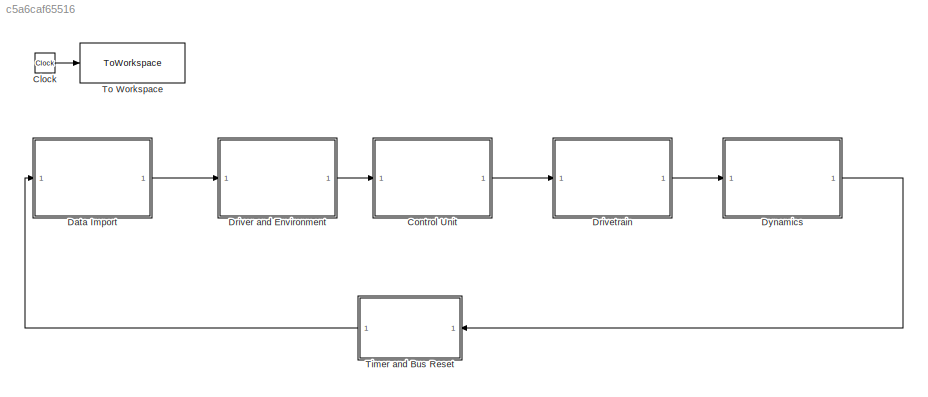
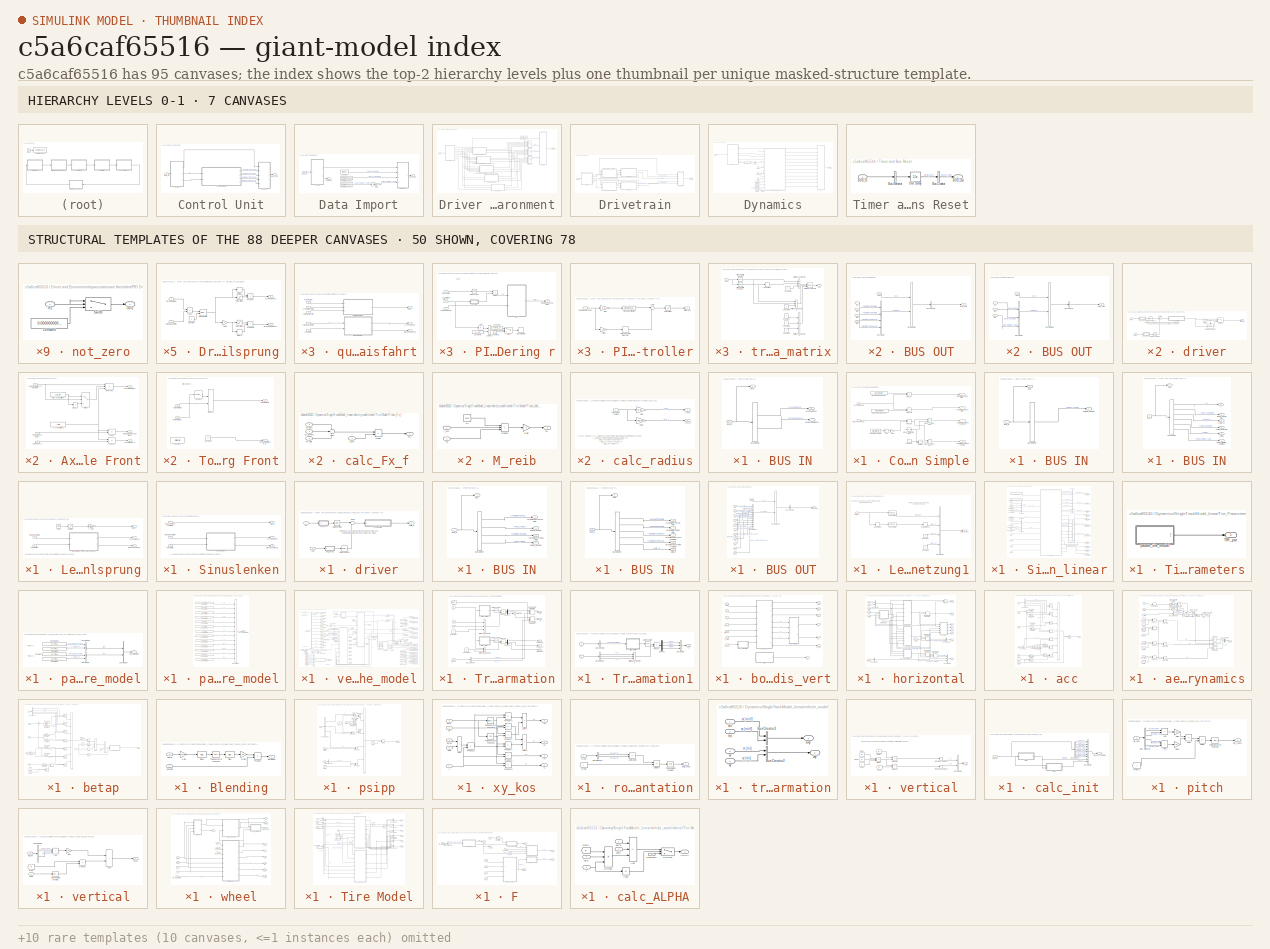
[diagram: thumbnail index - top-2 hierarchy levels (7 canvases) + 50 structural-template representatives of the remaining 88 canvases]
MODEL slx_c5a6caf65516
KIND model
CONFIG AbsTol = auto
CONFIG EnableMultiTasking = off
CONFIG FixedStep = 0.00005
CONFIG MaxStep = auto
CONFIG MinStep = auto
CONFIG RelTol = 1e-3
CONFIG SampleTimeConstraint = Unconstrained
CONFIG SolverName = FixedStepAuto
CONFIG StartTime = 0.0
CONFIG StopTime = simtime
BLOCK [Clock] Clock
BLOCK [SubSystem] Control Unit
  OpenFcn = set_param(gcb(),'LinkStatus','none')\nopen_system(gcb(),'force')
  Ports = [1, 1]
  RequestExecContextInheritance = off
BLOCK [SubSystem] Control Unit/BUS IN
  OpenFcn = set_param(gcb(),'LinkStatus','none')\nopen_system(gcb(),'mask')\nopen_system(strcat(gcb(),'/Bus Selector'),'Parameter')
  Ports = [1, 3]
  RequestExecContextInheritance = off
BLOCK [Outport] Control Unit/BUS IN/AccPedalPos [-]
  Port = 2
  VectorParamsAs1DForOutWhenUnconnected = off
BLOCK [Outport] Control Unit/BUS IN/BUS
  VectorParamsAs1DForOutWhenUnconnected = off
BLOCK [Inport] Control Unit/BUS IN/BUS_In
BLOCK [Outport] Control Unit/BUS IN/BrakePedalPos [-]
  Port = 3
BLOCK [BusSelector] Control Unit/BUS IN/Bus Selector
  OutputSignals = Driver and Environment.AccPedalPos [-],Driver and Environment.BrakePedalPos [-]
  Ports = [1, 2]
BLOCK [SubSystem] Control Unit/BUS OUT
  OpenFcn = set_param(gcb(),'LinkStatus','none')\nopen_system(gcb(),'mask')
  Ports = [5, 1]
  RequestExecContextInheritance = off
BLOCK [Inport] Control Unit/BUS OUT/BUS
BLOCK [Outport] Control Unit/BUS OUT/BUS_OUT
  VectorParamsAs1DForOutWhenUnconnected = off
BLOCK [BusCreator] Control Unit/BUS OUT/Bus Creator
  DisplayOption = bar
  InheritFromInputs = on
  Inputs = 4
  Ports = [4, 1]
BLOCK [BusCreator] Control Unit/BUS OUT/Bus Creator1
  DisplayOption = bar
  InheritFromInputs = on
  Inputs = 2
  Ports = [2, 1]
BLOCK [BusSelector] Control Unit/BUS OUT/Bus Selector
  OutputAsBus = on
  OutputSignals = Control Unit,BUS.Driver and Environment,BUS.Data Import,BUS.Bus_Old
  Ports = [1, 1]
BLOCK [Inport] Control Unit/BUS OUT/In1
  Port = 2
BLOCK [Inport] Control Unit/BUS OUT/In2
  Port = 3
BLOCK [Inport] Control Unit/BUS OUT/In3
  Port = 4
BLOCK [Inport] Control Unit/BUS OUT/In4
  Port = 5
BLOCK [Inport] Control Unit/BUS_In
BLOCK [Outport] Control Unit/BUS_Out
BLOCK [SubSystem] Control Unit/Control Unit Simple
  AncestorBlock = Control_Unit_Simple/Control Unit Simple
  Ports = [2, 4]
  RequestExecContextInheritance = off
BLOCK [Abs] Control Unit/Control Unit Simple/Abs
  SaturateOnIntegerOverflow = off
BLOCK [Inport] Control Unit/Control Unit Simple/AccPedalPos [-]
  SampleTime = LocalSampleTime
BLOCK [Inport] Control Unit/Control Unit Simple/BrakePedalPos [-]
  Port = 2
  SampleTime = LocalSampleTime
BLOCK [Constant] Control Unit/Control Unit Simple/Brake_Distribution_Front
  Value = Brake_Distribution_Front
BLOCK [Product] Control Unit/Control Unit Simple/Brake_Torque_Front
  Ports = [2, 1]
BLOCK [Product] Control Unit/Control Unit Simple/Brake_Torque_Rear
  Ports = [2, 1]
BLOCK [Constant] Control Unit/Control Unit Simple/Constant
BLOCK [Gain] Control Unit/Control Unit Simple/Gain
  Gain = -1
BLOCK [Constant] Control Unit/Control Unit Simple/MaxBrakeTorque
  Value = MaxBrkTrq
BLOCK [Constant] Control Unit/Control Unit Simple/MaxMotorTorque Front
  Value = MaxMotorTrqFront
BLOCK [Constant] Control Unit/Control Unit Simple/MaxMotorTorque Rear
  Value = MaxMotorTrqRear
BLOCK [Product] Control Unit/Control Unit Simple/Product
  Ports = [2, 1]
BLOCK [Product] Control Unit/Control Unit Simple/Product1
  Ports = [2, 1]
BLOCK [Product] Control Unit/Control Unit Simple/Product2
  Ports = [2, 1]
BLOCK [Sum] Control Unit/Control Unit Simple/Subtract
  IconShape = rectangular
  Inputs = +-
  Ports = [2, 1]
BLOCK [Outport] Control Unit/Control Unit Simple/TargetBrakeTrqFrontAxle [Nm]
  Port = 3
  SampleTime = GlobalSampleTime
  VectorParamsAs1DForOutWhenUnconnected = off
BLOCK [Outport] Control Unit/Control Unit Simple/TargetBrakeTrqRearAxle [Nm]
  Port = 4
  SampleTime = GlobalSampleTime
  VectorParamsAs1DForOutWhenUnconnected = off
BLOCK [Outport] Control Unit/Control Unit Simple/TargetDriveTrqFront [Nm] 
  SampleTime = GlobalSampleTime
  VectorParamsAs1DForOutWhenUnconnected = off
BLOCK [Outport] Control Unit/Control Unit Simple/TargetDriveTrqRear [Nm] 
  Port = 2
BLOCK [SubSystem] Data Import
  OpenFcn = set_param(gcb(),'LinkStatus','none')\nopen_system(gcb(),'force')
  Ports = [1, 1]
  RequestExecContextInheritance = off
BLOCK [SubSystem] Data Import/BUS IN
  OpenFcn = set_param(gcb(),'LinkStatus','none')\nopen_system(gcb(),'mask')\nopen_system(strcat(gcb(),'/Bus Selector'),'Parameter')
  Ports = [1, 2]
  RequestExecContextInheritance = off
BLOCK [Outport] Data Import/BUS IN/BUS
  VectorParamsAs1DForOutWhenUnconnected = off
BLOCK [Inport] Data Import/BUS IN/BUS_In
BLOCK [BusSelector] Data Import/BUS IN/Bus Selector
  OutputSignals = Bus_Old.Dynamics.WheelRotation/Velocity [Bus].RotationSpeedWheels.omega_F [rad/s]
  Ports = [1, 1]
BLOCK [Outport] Data Import/BUS IN/omega_F [rad//s]
  Port = 2
  VectorParamsAs1DForOutWhenUnconnected = off
BLOCK [SubSystem] Data Import/BUS OUT
  OpenFcn = set_param(gcb(),'LinkStatus','none')\nopen_system(gcb(),'mask')
  Ports = [4, 1]
  RequestExecContextInheritance = off
BLOCK [Inport] Data Import/BUS OUT/BUS
BLOCK [Outport] Data Import/BUS OUT/BUS_OUT
  VectorParamsAs1DForOutWhenUnconnected = off
BLOCK [BusCreator] Data Import/BUS OUT/Bus Creator
  DisplayOption = bar
  InheritFromInputs = on
  Inputs = 3
  Ports = [3, 1]
BLOCK [BusCreator] Data Import/BUS OUT/Bus Creator1
  DisplayOption = bar
  InheritFromInputs = on
  Inputs = 2
  Ports = [2, 1]
BLOCK [BusSelector] Data Import/BUS OUT/Bus Selector
  OutputAsBus = on
  OutputSignals = Data Import,BUS.Bus_Old
  Ports = [1, 1]
BLOCK [Inport] Data Import/BUS OUT/In1
  Port = 2
BLOCK [Inport] Data Import/BUS OUT/In2
  Port = 3
BLOCK [Inport] Data Import/BUS OUT/In3
  Port = 4
BLOCK [Inport] Data Import/BUS_In
BLOCK [Outport] Data Import/BUS_Out
  VectorParamsAs1DForOutWhenUnconnected = off
BLOCK [Constant] Data Import/Constant
  Value = input_r
BLOCK [FromWorkspace] Data Import/From Workspace1
  VariableName = v_maneuver
BLOCK [FromWorkspace] Data Import/From Workspace2
  VariableName = delta_maneuver
BLOCK [Gain] Data Import/Gain
  Gain = pi/180
BLOCK [Terminator] Data Import/Terminator
BLOCK [SubSystem] Driver and Environment
  OpenFcn = set_param(gcb(),'LinkStatus','none')\nopen_system(gcb(),'force')
  Ports = [1, 1]
  RequestExecContextInheritance = off
BLOCK [SubSystem] Driver and Environment/BUS IN
  OpenFcn = set_param(gcb(),'LinkStatus','none')\nopen_system(gcb(),'mask')\nopen_system(strcat(gcb(),'/Bus Selector'),'Parameter')
  Ports = [1, 7]
  RequestExecContextInheritance = off
BLOCK [Outport] Driver and Environment/BUS IN/BUS
  VectorParamsAs1DForOutWhenUnconnected = off
BLOCK [Inport] Driver and Environment/BUS IN/BUS_In
BLOCK [BusSelector] Driver and Environment/BUS IN/Bus Selector
  OutputSignals = Bus_Old.Dynamics.x;y;zPositionCenterofGravityandDerivates [Bus].v,Data Import.Traget_Velocity [m/s],Bus_Old.Dynamics.x;y;zPositionCenterofGravityandDerivates [Bus].y.ay [m/s^2],Data Import.Target_Radius [m],Bus_Old.Dynamics.x;y;zPositionCenterofGravityandDerivates [Bus].x.vx [m/s],Data Import.Target_Steering_Angle [rad]
  Ports = [1, 6]
BLOCK [Outport] Driver and Environment/BUS IN/Target_Radius [m]
  Port = 5
  VectorParamsAs1DForOutWhenUnconnected = off
BLOCK [Outport] Driver and Environment/BUS IN/Target_Steering_Angle [rad]
  Port = 7
  VectorParamsAs1DForOutWhenUnconnected = off
BLOCK [Outport] Driver and Environment/BUS IN/Traget_Velocity [m//s]
  Port = 3
  VectorParamsAs1DForOutWhenUnconnected = off
BLOCK [Outport] Driver and Environment/BUS IN/ay [m//s^2]
  Port = 4
  VectorParamsAs1DForOutWhenUnconnected = off
BLOCK [Outport] Driver and Environment/BUS IN/v
  Port = 2
  VectorParamsAs1DForOutWhenUnconnected = off
BLOCK [Outport] Driver and Environment/BUS IN/vx [m//s]
  Port = 6
  VectorParamsAs1DForOutWhenUnconnected = off
BLOCK [SubSystem] Driver and Environment/BUS OUT
  OpenFcn = set_param(gcb(),'LinkStatus','none')\nopen_system(gcb(),'mask')
  Ports = [4, 1]
  RequestExecContextInheritance = off
BLOCK [Inport] Driver and Environment/BUS OUT/BUS
BLOCK [Outport] Driver and Environment/BUS OUT/BUS_OUT
  VectorParamsAs1DForOutWhenUnconnected = off
BLOCK [BusCreator] Driver and Environment/BUS OUT/Bus Creator
  DisplayOption = bar
  InheritFromInputs = on
  Inputs = 3
  Ports = [3, 1]
BLOCK [BusCreator] Driver and Environment/BUS OUT/Bus Creator1
  DisplayOption = bar
  InheritFromInputs = on
  Inputs = 2
  Ports = [2, 1]
BLOCK [BusSelector] Driver and Environment/BUS OUT/Bus Selector
  OutputAsBus = on
  OutputSignals = Driver and Environment,BUS.Data Import,BUS.Bus_Old
  Ports = [1, 1]
BLOCK [Inport] Driver and Environment/BUS OUT/In1
  Port = 2
BLOCK [Inport] Driver and Environment/BUS OUT/In2
  Port = 3
BLOCK [Inport] Driver and Environment/BUS OUT/In3
  Port = 4
BLOCK [Inport] Driver and Environment/BUS_In
BLOCK [Outport] Driver and Environment/BUS_Out
  VectorParamsAs1DForOutWhenUnconnected = off
BLOCK [SubSystem] Driver and Environment/Lenkradwinkelsprung
  Ports = [2, 3]
  RequestExecContextInheritance = off
  TreatAsAtomicUnit = on
BLOCK [Outport] Driver and Environment/Lenkradwinkelsprung/AccPedalPos [-]
  Port = 2
  VectorParamsAs1DForOutWhenUnconnected = off
BLOCK [Outport] Driver and Environment/Lenkradwinkelsprung/BrakePedalPos [-]
  Port = 3
  VectorParamsAs1DForOutWhenUnconnected = off
BLOCK [SubSystem] Driver and Environment/Lenkradwinkelsprung/Driver PI Simulink_mitLenkwinkelsprung
  Ports = [2, 2]
  RequestExecContextInheritance = off
BLOCK [Outport] Driver and Environment/Lenkradwinkelsprung/Driver PI Simulink_mitLenkwinkelsprung/AccPedalPos [-]
  VectorParamsAs1DForOutWhenUnconnected = off
BLOCK [Inport] Driver and Environment/Lenkradwinkelsprung/Driver PI Simulink_mitLenkwinkelsprung/ActualSpeed [m//s]
  Port = 2
BLOCK [Sum] Driver and Environment/Lenkradwinkelsprung/Driver PI Simulink_mitLenkwinkelsprung/Add1
  IconShape = rectangular
  Inputs = +-
  Ports = [2, 1]
BLOCK [Outport] Driver and Environment/Lenkradwinkelsprung/Driver PI Simulink_mitLenkwinkelsprung/BrakePedalPos [-]
  Port = 2
  VectorParamsAs1DForOutWhenUnconnected = off
BLOCK [Constant] Driver and Environment/Lenkradwinkelsprung/Driver PI Simulink_mitLenkwinkelsprung/Constant
  Value = 0
BLOCK [Gain] Driver and Environment/Lenkradwinkelsprung/Driver PI Simulink_mitLenkwinkelsprung/Gain5
  Gain = -1
BLOCK [Reference] Driver and Environment/Lenkradwinkelsprung/Driver PI Simulink_mitLenkwinkelsprung/PID Controller  REF=pid_lib/PID Controller
  Ports = [2, 1]
  SourceBlock = pid_lib/PID Controller
  SourceProductBaseCode = SL
  SourceType = PID 1dof
BLOCK [Product] Driver and Environment/Lenkradwinkelsprung/Driver PI Simulink_mitLenkwinkelsprung/Product
  Ports = [2, 1]
BLOCK [Product] Driver and Environment/Lenkradwinkelsprung/Driver PI Simulink_mitLenkwinkelsprung/Product8
  Ports = [2, 1]
BLOCK [Relay] Driver and Environment/Lenkradwinkelsprung/Driver PI Simulink_mitLenkwinkelsprung/Relay
  OffSwitchValue = 0
  OnSwitchValue = 0.02
BLOCK [Relay] Driver and Environment/Lenkradwinkelsprung/Driver PI Simulink_mitLenkwinkelsprung/Relay1
  OffSwitchValue = 0
  OnSwitchValue = 0.01
BLOCK [Saturate] Driver and Environment/Lenkradwinkelsprung/Driver PI Simulink_mitLenkwinkelsprung/Saturation1
  LowerLimit = 0
  UpperLimit = 1
BLOCK [Saturate] Driver and Environment/Lenkradwinkelsprung/Driver PI Simulink_mitLenkwinkelsprung/Saturation2
  LowerLimit = 0
  UpperLimit = 1
BLOCK [Inport] Driver and Environment/Lenkradwinkelsprung/Driver PI Simulink_mitLenkwinkelsprung/TargetSpd [m//s]
BLOCK [Gain] Driver and Environment/Lenkradwinkelsprung/Gain
  Gain = pi/180
BLOCK [Reference] Driver and Environment/Lenkradwinkelsprung/Ramp  REF=simulink/Sources/Ramp
  Ports = [0, 1]
  SourceBlock = simulink/Sources/Ramp
  SourceProductBaseCode = SL
  SourceType = Ramp
BLOCK [Saturate] Driver and Environment/Lenkradwinkelsprung/Saturation
  LowerLimit = -3
  UpperLimit = 3
BLOCK [Inport] Driver and Environment/Lenkradwinkelsprung/TargetVelocity [m//s]
  Port = 2
BLOCK [Inport] Driver and Environment/Lenkradwinkelsprung/Velocity [m//s]
BLOCK [Outport] Driver and Environment/Lenkradwinkelsprung/delta_h
  VectorParamsAs1DForOutWhenUnconnected = off
BLOCK [MultiPortSwitch] Driver and Environment/Multiport Switch
  InputSameDT = off
  Inputs = 5
  Ports = [6, 1]
  SaturateOnIntegerOverflow = off
BLOCK [MultiPortSwitch] Driver and Environment/Multiport Switch1
  InputSameDT = off
  Inputs = 5
  Ports = [6, 1]
  SaturateOnIntegerOverflow = off
BLOCK [MultiPortSwitch] Driver and Environment/Multiport Switch2
  InputSameDT = off
  Inputs = 5
  Ports = [6, 1]
  SaturateOnIntegerOverflow = off
BLOCK [Constant] Driver and Environment/SelectManeuver
  NameLocation = left
  Value = SelectManeuver
BLOCK [SubSystem] Driver and Environment/Sinuslenken
  Ports = [3, 3]
  RequestExecContextInheritance = off
  TreatAsAtomicUnit = on
BLOCK [Outport] Driver and Environment/Sinuslenken/AccPedalPos [-]
  Port = 2
  VectorParamsAs1DForOutWhenUnconnected = off
BLOCK [Outport] Driver and Environment/Sinuslenken/BrakePedalPos [-]
  Port = 3
  VectorParamsAs1DForOutWhenUnconnected = off
BLOCK [SubSystem] Driver and Environment/Sinuslenken/Driver PI Simulink
  Ports = [2, 2]
  RequestExecContextInheritance = off
BLOCK [Outport] Driver and Environment/Sinuslenken/Driver PI Simulink/AccPedalPos [-]
  VectorParamsAs1DForOutWhenUnconnected = off
BLOCK [Inport] Driver and Environment/Sinuslenken/Driver PI Simulink/ActualSpeed [m//s]
  Port = 2
BLOCK [Sum] Driver and Environment/Sinuslenken/Driver PI Simulink/Add1
  IconShape = rectangular
  Inputs = +-
  Ports = [2, 1]
BLOCK [Outport] Driver and Environment/Sinuslenken/Driver PI Simulink/BrakePedalPos [-]
  Port = 2
  VectorParamsAs1DForOutWhenUnconnected = off
BLOCK [Constant] Driver and Environment/Sinuslenken/Driver PI Simulink/Constant
  Value = 0
BLOCK [Gain] Driver and Environment/Sinuslenken/Driver PI Simulink/Gain5
  Gain = -1
BLOCK [Reference] Driver and Environment/Sinuslenken/Driver PI Simulink/PID Controller  REF=pid_lib/PID Controller
  Ports = [2, 1]
  SourceBlock = pid_lib/PID Controller
  SourceProductBaseCode = SL
  SourceType = PID 1dof
BLOCK [Product] Driver and Environment/Sinuslenken/Driver PI Simulink/Product
  Ports = [2, 1]
BLOCK [Product] Driver and Environment/Sinuslenken/Driver PI Simulink/Product8
  Ports = [2, 1]
BLOCK [Relay] Driver and Environment/Sinuslenken/Driver PI Simulink/Relay
  OffSwitchValue = 0
  OnSwitchValue = 0.02
BLOCK [Relay] Driver and Environment/Sinuslenken/Driver PI Simulink/Relay1
  OffSwitchValue = 0
  OnSwitchValue = 0.01
BLOCK [Saturate] Driver and Environment/Sinuslenken/Driver PI Simulink/Saturation1
  LowerLimit = 0
  UpperLimit = 1
BLOCK [Saturate] Driver and Environment/Sinuslenken/Driver PI Simulink/Saturation2
  LowerLimit = 0
  UpperLimit = 1
BLOCK [Inport] Driver and Environment/Sinuslenken/Driver PI Simulink/TargetSpd [m//s]
BLOCK [Inport] Driver and Environment/Sinuslenken/TargetVelocity [m//s]
  Port = 2
BLOCK [Inport] Driver and Environment/Sinuslenken/Target_Steering_Angle [rad]
  Port = 3
BLOCK [Inport] Driver and Environment/Sinuslenken/Velocity [m//s]
BLOCK [Outport] Driver and Environment/Sinuslenken/delta_h
  VectorParamsAs1DForOutWhenUnconnected = off
BLOCK [SubSystem] Driver and Environment/quasistationare Kreisfahrt
  Ports = [5, 3]
  RequestExecContextInheritance = off
  TreatAsAtomicUnit = on
BLOCK [SubSystem] Driver and Environment/quasistationare Kreisfahrt mit Lastwechsel Beschleunigung
  Ports = [5, 3]
  RequestExecContextInheritance = off
  TreatAsAtomicUnit = on
BLOCK [Outport] Driver and Environment/quasistationare Kreisfahrt mit Lastwechsel Beschleunigung/AccPedalPos [-]
  Port = 2
  VectorParamsAs1DForOutWhenUnconnected = off
BLOCK [Inport] Driver and Environment/quasistationare Kreisfahrt mit Lastwechsel Beschleunigung/AccelerationY [m//s]
  Port = 3
BLOCK [Outport] Driver and Environment/quasistationare Kreisfahrt mit Lastwechsel Beschleunigung/BrakePedalPos [-]
  Port = 3
  VectorParamsAs1DForOutWhenUnconnected = off
BLOCK [SubSystem] Driver and Environment/quasistationare Kreisfahrt mit Lastwechsel Beschleunigung/Driver PI Simulink
  Ports = [2, 2]
  RequestExecContextInheritance = off
BLOCK [Outport] Driver and Environment/quasistationare Kreisfahrt mit Lastwechsel Beschleunigung/Driver PI Simulink/AccPedalPos [-]
  VectorParamsAs1DForOutWhenUnconnected = off
BLOCK [Inport] Driver and Environment/quasistationare Kreisfahrt mit Lastwechsel Beschleunigung/Driver PI Simulink/ActualSpeed [m//s]
  Port = 2
BLOCK [Sum] Driver and Environment/quasistationare Kreisfahrt mit Lastwechsel Beschleunigung/Driver PI Simulink/Add1
  IconShape = rectangular
  Inputs = +-
  Ports = [2, 1]
BLOCK [Outport] Driver and Environment/quasistationare Kreisfahrt mit Lastwechsel Beschleunigung/Driver PI Simulink/BrakePedalPos [-]
  Port = 2
  VectorParamsAs1DForOutWhenUnconnected = off
BLOCK [Constant] Driver and Environment/quasistationare Kreisfahrt mit Lastwechsel Beschleunigung/Driver PI Simulink/Constant
  Value = 0
BLOCK [Gain] Driver and Environment/quasistationare Kreisfahrt mit Lastwechsel Beschleunigung/Driver PI Simulink/Gain5
  Gain = -1
BLOCK [Reference] Driver and Environment/quasistationare Kreisfahrt mit Lastwechsel Beschleunigung/Driver PI Simulink/PID Controller  REF=pid_lib/PID Controller
  Ports = [2, 1]
  SourceBlock = pid_lib/PID Controller
  SourceProductBaseCode = SL
  SourceType = PID 1dof
BLOCK [Product] Driver and Environment/quasistationare Kreisfahrt mit Lastwechsel Beschleunigung/Driver PI Simulink/Product
  Ports = [2, 1]
BLOCK [Product] Driver and Environment/quasistationare Kreisfahrt mit Lastwechsel Beschleunigung/Driver PI Simulink/Product8
  Ports = [2, 1]
BLOCK [Relay] Driver and Environment/quasistationare Kreisfahrt mit Lastwechsel Beschleunigung/Driver PI Simulink/Relay
  OffSwitchValue = 0
  OnSwitchValue = 0.02
BLOCK [Relay] Driver and Environment/quasistationare Kreisfahrt mit Lastwechsel Beschleunigung/Driver PI Simulink/Relay1
  OffSwitchValue = 0
  OnSwitchValue = 0.01
BLOCK [Saturate] Driver and Environment/quasistationare Kreisfahrt mit Lastwechsel Beschleunigung/Driver PI Simulink/Saturation1
  LowerLimit = 0
  UpperLimit = 1
BLOCK [Saturate] Driver and Environment/quasistationare Kreisfahrt mit Lastwechsel Beschleunigung/Driver PI Simulink/Saturation2
  LowerLimit = 0
  UpperLimit = 1
BLOCK [Inport] Driver and Environment/quasistationare Kreisfahrt mit Lastwechsel Beschleunigung/Driver PI Simulink/TargetSpd [m//s]
BLOCK [SubSystem] Driver and Environment/quasistationare Kreisfahrt mit Lastwechsel Beschleunigung/PID Driver Steering r_mit Lastwechsel Beschleunigung
  Ports = [3, 1]
  RequestExecContextInheritance = off
BLOCK [Abs] Driver and Environment/quasistationare Kreisfahrt mit Lastwechsel Beschleunigung/PID Driver Steering r_mit Lastwechsel Beschleunigung/Abs
  SaturateOnIntegerOverflow = off
BLOCK [Inport] Driver and Environment/quasistationare Kreisfahrt mit Lastwechsel Beschleunigung/PID Driver Steering r_mit Lastwechsel Beschleunigung/AccelerationY [m//s^2]
  Port = 2
BLOCK [Constant] Driver and Environment/quasistationare Kreisfahrt mit Lastwechsel Beschleunigung/PID Driver Steering r_mit Lastwechsel Beschleunigung/Constant1
  Value = ay_stop
BLOCK [Constant] Driver and Environment/quasistationare Kreisfahrt mit Lastwechsel Beschleunigung/PID Driver Steering r_mit Lastwechsel Beschleunigung/Constant2
  Value = activate_stop
BLOCK [Constant] Driver and Environment/quasistationare Kreisfahrt mit Lastwechsel Beschleunigung/PID Driver Steering r_mit Lastwechsel Beschleunigung/Constant3
  Value = 0
BLOCK [Product] Driver and Environment/quasistationare Kreisfahrt mit Lastwechsel Beschleunigung/PID Driver Steering r_mit Lastwechsel Beschleunigung/Divide
  Inputs = */
  Ports = [2, 1]
BLOCK [Math] Driver and Environment/quasistationare Kreisfahrt mit Lastwechsel Beschleunigung/PID Driver Steering r_mit Lastwechsel Beschleunigung/Math Function
  Operator = square
  Ports = [1, 1]
  SignedPower = on
BLOCK [Outport] Driver and Environment/quasistationare Kreisfahrt mit Lastwechsel Beschleunigung/PID Driver Steering r_mit Lastwechsel Beschleunigung/SteeringWheelAngle [rad]
  VectorParamsAs1DForOutWhenUnconnected = off
BLOCK [Stop] Driver and Environment/quasistationare Kreisfahrt mit Lastwechsel Beschleunigung/PID Driver Steering r_mit Lastwechsel Beschleunigung/Stop Simulation
BLOCK [Sum] Driver and Environment/quasistationare Kreisfahrt mit Lastwechsel Beschleunigung/PID Driver Steering r_mit Lastwechsel Beschleunigung/Subtract
  IconShape = rectangular
  Inputs = +-
  Ports = [2, 1]
BLOCK [Switch] Driver and Environment/quasistationare Kreisfahrt mit Lastwechsel Beschleunigung/PID Driver Steering r_mit Lastwechsel Beschleunigung/Switch
  Criteria = u2 > Threshold
  InputSameDT = off
  SaturateOnIntegerOverflow = off
BLOCK [Inport] Driver and Environment/quasistationare Kreisfahrt mit Lastwechsel Beschleunigung/PID Driver Steering r_mit Lastwechsel Beschleunigung/TargetRadius [m]
  Port = 3
BLOCK [Inport] Driver and Environment/quasistationare Kreisfahrt mit Lastwechsel Beschleunigung/PID Driver Steering r_mit Lastwechsel Beschleunigung/VelocityX [m//s]
BLOCK [SubSystem] Driver and Environment/quasistationare Kreisfahrt mit Lastwechsel Beschleunigung/PID Driver Steering r_mit Lastwechsel Beschleunigung/driver
  Ports = [2, 1]
  RequestExecContextInheritance = off
BLOCK [Math] Driver and Environment/quasistationare Kreisfahrt mit Lastwechsel Beschleunigung/PID Driver Steering r_mit Lastwechsel Beschleunigung/driver/Math Function2
  Operator = reciprocal
  Ports = [1, 1]
  SignedPower = on
BLOCK [Math] Driver and Environment/quasistationare Kreisfahrt mit Lastwechsel Beschleunigung/PID Driver Steering r_mit Lastwechsel Beschleunigung/driver/Math Function3
  Operator = reciprocal
  Ports = [1, 1]
  SignedPower = on
BLOCK [SubSystem] Driver and Environment/quasistationare Kreisfahrt mit Lastwechsel Beschleunigung/PID Driver Steering r_mit Lastwechsel Beschleunigung/driver/PI-Controller
  Ports = [1, 1]
  RequestExecContextInheritance = off
BLOCK [Inport] Driver and Environment/quasistationare Kreisfahrt mit Lastwechsel Beschleunigung/PID Driver Steering r_mit Lastwechsel Beschleunigung/driver/PI-Controller/ Regelabweichung
BLOCK [DiscreteIntegrator] Driver and Environment/quasistationare Kreisfahrt mit Lastwechsel Beschleunigung/PID Driver Steering r_mit Lastwechsel Beschleunigung/driver/PI-Controller/Discrete-Time Integrator
  ICPrevOutput = DiscIntNeverNeededParam
  ICPrevScaledInput = DiscIntNeverNeededParam
  InitialConditionSetting = Auto
  LimitOutput = on
  LowerSaturationLimit = -1
  Ports = [1, 1]
  SampleTime = -1
  UpperSaturationLimit = 1
  gainval = 1
BLOCK [Gain] Driver and Environment/quasistationare Kreisfahrt mit Lastwechsel Beschleunigung/PID Driver Steering r_mit Lastwechsel Beschleunigung/driver/PI-Controller/Gain
  Gain = P_S
  ParamDataTypeStr = double
BLOCK [Gain] Driver and Environment/quasistationare Kreisfahrt mit Lastwechsel Beschleunigung/PID Driver Steering r_mit Lastwechsel Beschleunigung/driver/PI-Controller/I-Glied
  Gain = I_S
  ParamDataTypeStr = double
BLOCK [Saturate] Driver and Environment/quasistationare Kreisfahrt mit Lastwechsel Beschleunigung/PID Driver Steering r_mit Lastwechsel Beschleunigung/driver/PI-Controller/Saturation1
  LowerLimit = -0.6
  UpperLimit = 0.6
BLOCK [SignalSpecification] Driver and Environment/quasistationare Kreisfahrt mit Lastwechsel Beschleunigung/PID Driver Steering r_mit Lastwechsel Beschleunigung/driver/PI-Controller/Signal Specification
  Dimensions = 1
  OutDataTypeStr = double
BLOCK [Outport] Driver and Environment/quasistationare Kreisfahrt mit Lastwechsel Beschleunigung/PID Driver Steering r_mit Lastwechsel Beschleunigung/driver/PI-Controller/Stellgröße
  VectorParamsAs1DForOutWhenUnconnected = off
BLOCK [Sum] Driver and Environment/quasistationare Kreisfahrt mit Lastwechsel Beschleunigung/PID Driver Steering r_mit Lastwechsel Beschleunigung/driver/PI-Controller/Sum2
  Inputs = |++
  Ports = [2, 1]
BLOCK [Reference] Driver and Environment/quasistationare Kreisfahrt mit Lastwechsel Beschleunigung/PID Driver Steering r_mit Lastwechsel Beschleunigung/driver/Sample and Hold  REF=dspsigops/Sample
and Hold
  Ports = [1, 1, 0, 1]
  SourceBlock = dspsigops/Sample\nand Hold
  SourceProductBaseCode = DS
  SourceType = Sample and Hold
BLOCK [Step] Driver and Environment/quasistationare Kreisfahrt mit Lastwechsel Beschleunigung/PID Driver Steering r_mit Lastwechsel Beschleunigung/driver/Step1
  After = 0
  Before = 1
  SampleTime = 0
  Time = 153
BLOCK [Sum] Driver and Environment/quasistationare Kreisfahrt mit Lastwechsel Beschleunigung/PID Driver Steering r_mit Lastwechsel Beschleunigung/driver/Sum2
  Inputs = |-+
  Ports = [2, 1]
BLOCK [Switch] Driver and Environment/quasistationare Kreisfahrt mit Lastwechsel Beschleunigung/PID Driver Steering r_mit Lastwechsel Beschleunigung/driver/Switch1
  Criteria = u2 > Threshold
  InputSameDT = off
  SaturateOnIntegerOverflow = off
BLOCK [Outport] Driver and Environment/quasistationare Kreisfahrt mit Lastwechsel Beschleunigung/PID Driver Steering r_mit Lastwechsel Beschleunigung/driver/delta_h
  VectorParamsAs1DForOutWhenUnconnected = off
BLOCK [SubSystem] Driver and Environment/quasistationare Kreisfahrt mit Lastwechsel Beschleunigung/PID Driver Steering r_mit Lastwechsel Beschleunigung/driver/not_zero2
  Ports = [1, 1]
  RequestExecContextInheritance = off
BLOCK [Constant] Driver and Environment/quasistationare Kreisfahrt mit Lastwechsel Beschleunigung/PID Driver Steering r_mit Lastwechsel Beschleunigung/driver/not_zero2/Constant
  Value = 0.0000000000001
BLOCK [Inport] Driver and Environment/quasistationare Kreisfahrt mit Lastwechsel Beschleunigung/PID Driver Steering r_mit Lastwechsel Beschleunigung/driver/not_zero2/In1
BLOCK [Outport] Driver and Environment/quasistationare Kreisfahrt mit Lastwechsel Beschleunigung/PID Driver Steering r_mit Lastwechsel Beschleunigung/driver/not_zero2/Out1
  VectorParamsAs1DForOutWhenUnconnected = off
BLOCK [Switch] Driver and Environment/quasistationare Kreisfahrt mit Lastwechsel Beschleunigung/PID Driver Steering r_mit Lastwechsel Beschleunigung/driver/not_zero2/Switch
  Criteria = u2 ~= 0
  InputSameDT = off
  SaturateOnIntegerOverflow = off
BLOCK [SubSystem] Driver and Environment/quasistationare Kreisfahrt mit Lastwechsel Beschleunigung/PID Driver Steering r_mit Lastwechsel Beschleunigung/driver/not_zero3
  Ports = [1, 1]
  RequestExecContextInheritance = off
BLOCK [Constant] Driver and Environment/quasistationare Kreisfahrt mit Lastwechsel Beschleunigung/PID Driver Steering r_mit Lastwechsel Beschleunigung/driver/not_zero3/Constant
  Value = 0.0000000000001
BLOCK [Inport] Driver and Environment/quasistationare Kreisfahrt mit Lastwechsel Beschleunigung/PID Driver Steering r_mit Lastwechsel Beschleunigung/driver/not_zero3/In1
BLOCK [Outport] Driver and Environment/quasistationare Kreisfahrt mit Lastwechsel Beschleunigung/PID Driver Steering r_mit Lastwechsel Beschleunigung/driver/not_zero3/Out1
  VectorParamsAs1DForOutWhenUnconnected = off
BLOCK [Switch] Driver and Environment/quasistationare Kreisfahrt mit Lastwechsel Beschleunigung/PID Driver Steering r_mit Lastwechsel Beschleunigung/driver/not_zero3/Switch
  Criteria = u2 ~= 0
  InputSameDT = off
  SaturateOnIntegerOverflow = off
BLOCK [Inport] Driver and Environment/quasistationare Kreisfahrt mit Lastwechsel Beschleunigung/PID Driver Steering r_mit Lastwechsel Beschleunigung/driver/r ist
BLOCK [Inport] Driver and Environment/quasistationare Kreisfahrt mit Lastwechsel Beschleunigung/PID Driver Steering r_mit Lastwechsel Beschleunigung/driver/r soll
  Port = 2
BLOCK [SubSystem] Driver and Environment/quasistationare Kreisfahrt mit Lastwechsel Beschleunigung/PID Driver Steering r_mit Lastwechsel Beschleunigung/not_zero
  Ports = [1, 1]
  RequestExecContextInheritance = off
BLOCK [Constant] Driver and Environment/quasistationare Kreisfahrt mit Lastwechsel Beschleunigung/PID Driver Steering r_mit Lastwechsel Beschleunigung/not_zero/Constant
  Value = 0.0000000000001
BLOCK [Inport] Driver and Environment/quasistationare Kreisfahrt mit Lastwechsel Beschleunigung/PID Driver Steering r_mit Lastwechsel Beschleunigung/not_zero/In1
BLOCK [Outport] Driver and Environment/quasistationare Kreisfahrt mit Lastwechsel Beschleunigung/PID Driver Steering r_mit Lastwechsel Beschleunigung/not_zero/Out1
  VectorParamsAs1DForOutWhenUnconnected = off
BLOCK [Switch] Driver and Environment/quasistationare Kreisfahrt mit Lastwechsel Beschleunigung/PID Driver Steering r_mit Lastwechsel Beschleunigung/not_zero/Switch
  Criteria = u2 ~= 0
  InputSameDT = off
  SaturateOnIntegerOverflow = off
BLOCK [Inport] Driver and Environment/quasistationare Kreisfahrt mit Lastwechsel Beschleunigung/TargetRadius [m]
  Port = 4
BLOCK [Inport] Driver and Environment/quasistationare Kreisfahrt mit Lastwechsel Beschleunigung/TargetVelocity [m//s]
  Port = 2
BLOCK [Inport] Driver and Environment/quasistationare Kreisfahrt mit Lastwechsel Beschleunigung/Velocity [m//s]
BLOCK [Inport] Driver and Environment/quasistationare Kreisfahrt mit Lastwechsel Beschleunigung/VelocityX [m//s]
  Port = 5
BLOCK [Outport] Driver and Environment/quasistationare Kreisfahrt mit Lastwechsel Beschleunigung/delta_h
  VectorParamsAs1DForOutWhenUnconnected = off
BLOCK [SubSystem] Driver and Environment/quasistationare Kreisfahrt mit Lastwechsel Verzogerung
  Ports = [5, 3]
  RequestExecContextInheritance = off
  TreatAsAtomicUnit = on
BLOCK [Outport] Driver and Environment/quasistationare Kreisfahrt mit Lastwechsel Verzogerung/AccPedalPos [-]
  Port = 2
  VectorParamsAs1DForOutWhenUnconnected = off
BLOCK [Inport] Driver and Environment/quasistationare Kreisfahrt mit Lastwechsel Verzogerung/AccelerationY [m//s]
  Port = 3
BLOCK [Outport] Driver and Environment/quasistationare Kreisfahrt mit Lastwechsel Verzogerung/BrakePedalPos [-]
  Port = 3
  VectorParamsAs1DForOutWhenUnconnected = off
BLOCK [SubSystem] Driver and Environment/quasistationare Kreisfahrt mit Lastwechsel Verzogerung/Driver PI Simulink
  Ports = [2, 2]
  RequestExecContextInheritance = off
BLOCK [Outport] Driver and Environment/quasistationare Kreisfahrt mit Lastwechsel Verzogerung/Driver PI Simulink/AccPedalPos [-]
  VectorParamsAs1DForOutWhenUnconnected = off
BLOCK [Inport] Driver and Environment/quasistationare Kreisfahrt mit Lastwechsel Verzogerung/Driver PI Simulink/ActualSpeed [m//s]
  Port = 2
BLOCK [Sum] Driver and Environment/quasistationare Kreisfahrt mit Lastwechsel Verzogerung/Driver PI Simulink/Add1
  IconShape = rectangular
  Inputs = +-
  Ports = [2, 1]
BLOCK [Outport] Driver and Environment/quasistationare Kreisfahrt mit Lastwechsel Verzogerung/Driver PI Simulink/BrakePedalPos [-]
  Port = 2
  VectorParamsAs1DForOutWhenUnconnected = off
BLOCK [Constant] Driver and Environment/quasistationare Kreisfahrt mit Lastwechsel Verzogerung/Driver PI Simulink/Constant
  Value = 0
BLOCK [Gain] Driver and Environment/quasistationare Kreisfahrt mit Lastwechsel Verzogerung/Driver PI Simulink/Gain5
  Gain = -1
BLOCK [Reference] Driver and Environment/quasistationare Kreisfahrt mit Lastwechsel Verzogerung/Driver PI Simulink/PID Controller  REF=pid_lib/PID Controller
  Ports = [2, 1]
  SourceBlock = pid_lib/PID Controller
  SourceProductBaseCode = SL
  SourceType = PID 1dof
BLOCK [Product] Driver and Environment/quasistationare Kreisfahrt mit Lastwechsel Verzogerung/Driver PI Simulink/Product
  Ports = [2, 1]
BLOCK [Product] Driver and Environment/quasistationare Kreisfahrt mit Lastwechsel Verzogerung/Driver PI Simulink/Product8
  Ports = [2, 1]
BLOCK [Relay] Driver and Environment/quasistationare Kreisfahrt mit Lastwechsel Verzogerung/Driver PI Simulink/Relay
  OffSwitchValue = 0
  OnSwitchValue = 0.02
BLOCK [Relay] Driver and Environment/quasistationare Kreisfahrt mit Lastwechsel Verzogerung/Driver PI Simulink/Relay1
  OffSwitchValue = 0
  OnSwitchValue = 0.01
BLOCK [Saturate] Driver and Environment/quasistationare Kreisfahrt mit Lastwechsel Verzogerung/Driver PI Simulink/Saturation1
  LowerLimit = 0
  UpperLimit = 1
BLOCK [Saturate] Driver and Environment/quasistationare Kreisfahrt mit Lastwechsel Verzogerung/Driver PI Simulink/Saturation2
  LowerLimit = 0
  UpperLimit = 1
BLOCK [Inport] Driver and Environment/quasistationare Kreisfahrt mit Lastwechsel Verzogerung/Driver PI Simulink/TargetSpd [m//s]
BLOCK [SubSystem] Driver and Environment/quasistationare Kreisfahrt mit Lastwechsel Verzogerung/PID Driver Steering r_mit Lastwechsel Verzogerung
  Ports = [3, 1]
  RequestExecContextInheritance = off
BLOCK [Abs] Driver and Environment/quasistationare Kreisfahrt mit Lastwechsel Verzogerung/PID Driver Steering r_mit Lastwechsel Verzogerung/Abs
  SaturateOnIntegerOverflow = off
BLOCK [Inport] Driver and Environment/quasistationare Kreisfahrt mit Lastwechsel Verzogerung/PID Driver Steering r_mit Lastwechsel Verzogerung/AccelerationY [m//s^2]
  Port = 2
BLOCK [Constant] Driver and Environment/quasistationare Kreisfahrt mit Lastwechsel Verzogerung/PID Driver Steering r_mit Lastwechsel Verzogerung/Constant1
  Value = ay_stop
BLOCK [Constant] Driver and Environment/quasistationare Kreisfahrt mit Lastwechsel Verzogerung/PID Driver Steering r_mit Lastwechsel Verzogerung/Constant2
  Value = activate_stop
BLOCK [Constant] Driver and Environment/quasistationare Kreisfahrt mit Lastwechsel Verzogerung/PID Driver Steering r_mit Lastwechsel Verzogerung/Constant3
  Value = 0
BLOCK [Product] Driver and Environment/quasistationare Kreisfahrt mit Lastwechsel Verzogerung/PID Driver Steering r_mit Lastwechsel Verzogerung/Divide
  Inputs = */
  Ports = [2, 1]
BLOCK [Math] Driver and Environment/quasistationare Kreisfahrt mit Lastwechsel Verzogerung/PID Driver Steering r_mit Lastwechsel Verzogerung/Math Function
  Operator = square
  Ports = [1, 1]
  SignedPower = on
BLOCK [Outport] Driver and Environment/quasistationare Kreisfahrt mit Lastwechsel Verzogerung/PID Driver Steering r_mit Lastwechsel Verzogerung/SteeringWheelAngle [rad]
  VectorParamsAs1DForOutWhenUnconnected = off
BLOCK [Stop] Driver and Environment/quasistationare Kreisfahrt mit Lastwechsel Verzogerung/PID Driver Steering r_mit Lastwechsel Verzogerung/Stop Simulation
BLOCK [Sum] Driver and Environment/quasistationare Kreisfahrt mit Lastwechsel Verzogerung/PID Driver Steering r_mit Lastwechsel Verzogerung/Subtract
  IconShape = rectangular
  Inputs = +-
  Ports = [2, 1]
BLOCK [Switch] Driver and Environment/quasistationare Kreisfahrt mit Lastwechsel Verzogerung/PID Driver Steering r_mit Lastwechsel Verzogerung/Switch
  Criteria = u2 > Threshold
  InputSameDT = off
  SaturateOnIntegerOverflow = off
BLOCK [Inport] Driver and Environment/quasistationare Kreisfahrt mit Lastwechsel Verzogerung/PID Driver Steering r_mit Lastwechsel Verzogerung/TargetRadius [m]
  Port = 3
BLOCK [Inport] Driver and Environment/quasistationare Kreisfahrt mit Lastwechsel Verzogerung/PID Driver Steering r_mit Lastwechsel Verzogerung/VelocityX [m//s]
BLOCK [SubSystem] Driver and Environment/quasistationare Kreisfahrt mit Lastwechsel Verzogerung/PID Driver Steering r_mit Lastwechsel Verzogerung/driver
  Ports = [2, 1]
  RequestExecContextInheritance = off
BLOCK [Math] Driver and Environment/quasistationare Kreisfahrt mit Lastwechsel Verzogerung/PID Driver Steering r_mit Lastwechsel Verzogerung/driver/Math Function2
  Operator = reciprocal
  Ports = [1, 1]
  SignedPower = on
BLOCK [Math] Driver and Environment/quasistationare Kreisfahrt mit Lastwechsel Verzogerung/PID Driver Steering r_mit Lastwechsel Verzogerung/driver/Math Function3
  Operator = reciprocal
  Ports = [1, 1]
  SignedPower = on
BLOCK [SubSystem] Driver and Environment/quasistationare Kreisfahrt mit Lastwechsel Verzogerung/PID Driver Steering r_mit Lastwechsel Verzogerung/driver/PI-Controller
  Ports = [1, 1]
  RequestExecContextInheritance = off
BLOCK [Inport] Driver and Environment/quasistationare Kreisfahrt mit Lastwechsel Verzogerung/PID Driver Steering r_mit Lastwechsel Verzogerung/driver/PI-Controller/ Regelabweichung
BLOCK [DiscreteIntegrator] Driver and Environment/quasistationare Kreisfahrt mit Lastwechsel Verzogerung/PID Driver Steering r_mit Lastwechsel Verzogerung/driver/PI-Controller/Discrete-Time Integrator
  ICPrevOutput = DiscIntNeverNeededParam
  ICPrevScaledInput = DiscIntNeverNeededParam
  InitialConditionSetting = Auto
  LimitOutput = on
  LowerSaturationLimit = -1
  Ports = [1, 1]
  SampleTime = -1
  UpperSaturationLimit = 1
  gainval = 1
BLOCK [Gain] Driver and Environment/quasistationare Kreisfahrt mit Lastwechsel Verzogerung/PID Driver Steering r_mit Lastwechsel Verzogerung/driver/PI-Controller/Gain
  Gain = P_S
  ParamDataTypeStr = double
BLOCK [Gain] Driver and Environment/quasistationare Kreisfahrt mit Lastwechsel Verzogerung/PID Driver Steering r_mit Lastwechsel Verzogerung/driver/PI-Controller/I-Glied
  Gain = I_S
  ParamDataTypeStr = double
BLOCK [Saturate] Driver and Environment/quasistationare Kreisfahrt mit Lastwechsel Verzogerung/PID Driver Steering r_mit Lastwechsel Verzogerung/driver/PI-Controller/Saturation1
  LowerLimit = -0.6
  UpperLimit = 0.6
BLOCK [SignalSpecification] Driver and Environment/quasistationare Kreisfahrt mit Lastwechsel Verzogerung/PID Driver Steering r_mit Lastwechsel Verzogerung/driver/PI-Controller/Signal Specification
  Dimensions = 1
  OutDataTypeStr = double
BLOCK [Outport] Driver and Environment/quasistationare Kreisfahrt mit Lastwechsel Verzogerung/PID Driver Steering r_mit Lastwechsel Verzogerung/driver/PI-Controller/Stellgröße
  VectorParamsAs1DForOutWhenUnconnected = off
BLOCK [Sum] Driver and Environment/quasistationare Kreisfahrt mit Lastwechsel Verzogerung/PID Driver Steering r_mit Lastwechsel Verzogerung/driver/PI-Controller/Sum2
  Inputs = |++
  Ports = [2, 1]
BLOCK [Reference] Driver and Environment/quasistationare Kreisfahrt mit Lastwechsel Verzogerung/PID Driver Steering r_mit Lastwechsel Verzogerung/driver/Sample and Hold  REF=dspsigops/Sample
and Hold
  Ports = [1, 1, 0, 1]
  SourceBlock = dspsigops/Sample\nand Hold
  SourceProductBaseCode = DS
  SourceType = Sample and Hold
BLOCK [Step] Driver and Environment/quasistationare Kreisfahrt mit Lastwechsel Verzogerung/PID Driver Steering r_mit Lastwechsel Verzogerung/driver/Step1
  After = 0
  Before = 1
  SampleTime = 0
  Time = 0.9799
BLOCK [Sum] Driver and Environment/quasistationare Kreisfahrt mit Lastwechsel Verzogerung/PID Driver Steering r_mit Lastwechsel Verzogerung/driver/Sum2
  Inputs = |-+
  Ports = [2, 1]
BLOCK [Switch] Driver and Environment/quasistationare Kreisfahrt mit Lastwechsel Verzogerung/PID Driver Steering r_mit Lastwechsel Verzogerung/driver/Switch1
  Criteria = u2 > Threshold
  InputSameDT = off
  SaturateOnIntegerOverflow = off
BLOCK [Outport] Driver and Environment/quasistationare Kreisfahrt mit Lastwechsel Verzogerung/PID Driver Steering r_mit Lastwechsel Verzogerung/driver/delta_h
  VectorParamsAs1DForOutWhenUnconnected = off
BLOCK [SubSystem] Driver and Environment/quasistationare Kreisfahrt mit Lastwechsel Verzogerung/PID Driver Steering r_mit Lastwechsel Verzogerung/driver/not_zero2
  Ports = [1, 1]
  RequestExecContextInheritance = off
BLOCK [Constant] Driver and Environment/quasistationare Kreisfahrt mit Lastwechsel Verzogerung/PID Driver Steering r_mit Lastwechsel Verzogerung/driver/not_zero2/Constant
  Value = 0.0000000000001
BLOCK [Inport] Driver and Environment/quasistationare Kreisfahrt mit Lastwechsel Verzogerung/PID Driver Steering r_mit Lastwechsel Verzogerung/driver/not_zero2/In1
BLOCK [Outport] Driver and Environment/quasistationare Kreisfahrt mit Lastwechsel Verzogerung/PID Driver Steering r_mit Lastwechsel Verzogerung/driver/not_zero2/Out1
  VectorParamsAs1DForOutWhenUnconnected = off
BLOCK [Switch] Driver and Environment/quasistationare Kreisfahrt mit Lastwechsel Verzogerung/PID Driver Steering r_mit Lastwechsel Verzogerung/driver/not_zero2/Switch
  Criteria = u2 ~= 0
  InputSameDT = off
  SaturateOnIntegerOverflow = off
BLOCK [SubSystem] Driver and Environment/quasistationare Kreisfahrt mit Lastwechsel Verzogerung/PID Driver Steering r_mit Lastwechsel Verzogerung/driver/not_zero3
  Ports = [1, 1]
  RequestExecContextInheritance = off
BLOCK [Constant] Driver and Environment/quasistationare Kreisfahrt mit Lastwechsel Verzogerung/PID Driver Steering r_mit Lastwechsel Verzogerung/driver/not_zero3/Constant
  Value = 0.0000000000001
BLOCK [Inport] Driver and Environment/quasistationare Kreisfahrt mit Lastwechsel Verzogerung/PID Driver Steering r_mit Lastwechsel Verzogerung/driver/not_zero3/In1
BLOCK [Outport] Driver and Environment/quasistationare Kreisfahrt mit Lastwechsel Verzogerung/PID Driver Steering r_mit Lastwechsel Verzogerung/driver/not_zero3/Out1
  VectorParamsAs1DForOutWhenUnconnected = off
BLOCK [Switch] Driver and Environment/quasistationare Kreisfahrt mit Lastwechsel Verzogerung/PID Driver Steering r_mit Lastwechsel Verzogerung/driver/not_zero3/Switch
  Criteria = u2 ~= 0
  InputSameDT = off
  SaturateOnIntegerOverflow = off
BLOCK [Inport] Driver and Environment/quasistationare Kreisfahrt mit Lastwechsel Verzogerung/PID Driver Steering r_mit Lastwechsel Verzogerung/driver/r ist
BLOCK [Inport] Driver and Environment/quasistationare Kreisfahrt mit Lastwechsel Verzogerung/PID Driver Steering r_mit Lastwechsel Verzogerung/driver/r soll
  Port = 2
BLOCK [SubSystem] Driver and Environment/quasistationare Kreisfahrt mit Lastwechsel Verzogerung/PID Driver Steering r_mit Lastwechsel Verzogerung/not_zero
  Ports = [1, 1]
  RequestExecContextInheritance = off
BLOCK [Constant] Driver and Environment/quasistationare Kreisfahrt mit Lastwechsel Verzogerung/PID Driver Steering r_mit Lastwechsel Verzogerung/not_zero/Constant
  Value = 0.0000000000001
BLOCK [Inport] Driver and Environment/quasistationare Kreisfahrt mit Lastwechsel Verzogerung/PID Driver Steering r_mit Lastwechsel Verzogerung/not_zero/In1
BLOCK [Outport] Driver and Environment/quasistationare Kreisfahrt mit Lastwechsel Verzogerung/PID Driver Steering r_mit Lastwechsel Verzogerung/not_zero/Out1
  VectorParamsAs1DForOutWhenUnconnected = off
BLOCK [Switch] Driver and Environment/quasistationare Kreisfahrt mit Lastwechsel Verzogerung/PID Driver Steering r_mit Lastwechsel Verzogerung/not_zero/Switch
  Criteria = u2 ~= 0
  InputSameDT = off
  SaturateOnIntegerOverflow = off
BLOCK [Inport] Driver and Environment/quasistationare Kreisfahrt mit Lastwechsel Verzogerung/TargetRadius [m]
  Port = 4
BLOCK [Inport] Driver and Environment/quasistationare Kreisfahrt mit Lastwechsel Verzogerung/TargetVelocity [m//s]
  Port = 2
BLOCK [Inport] Driver and Environment/quasistationare Kreisfahrt mit Lastwechsel Verzogerung/Velocity [m//s]
BLOCK [Inport] Driver and Environment/quasistationare Kreisfahrt mit Lastwechsel Verzogerung/VelocityX [m//s]
  Port = 5
BLOCK [Outport] Driver and Environment/quasistationare Kreisfahrt mit Lastwechsel Verzogerung/delta_h
  VectorParamsAs1DForOutWhenUnconnected = off
BLOCK [Outport] Driver and Environment/quasistationare Kreisfahrt/AccPedalPos [-]
  Port = 2
  VectorParamsAs1DForOutWhenUnconnected = off
BLOCK [Inport] Driver and Environment/quasistationare Kreisfahrt/AccelerationY [m//s]
  Port = 3
BLOCK [Outport] Driver and Environment/quasistationare Kreisfahrt/BrakePedalPos [-]
  Port = 3
  VectorParamsAs1DForOutWhenUnconnected = off
BLOCK [SubSystem] Driver and Environment/quasistationare Kreisfahrt/Driver PI Simulink1
  Ports = [2, 2]
  RequestExecContextInheritance = off
BLOCK [Outport] Driver and Environment/quasistationare Kreisfahrt/Driver PI Simulink1/AccPedalPos [-]
  VectorParamsAs1DForOutWhenUnconnected = off
BLOCK [Inport] Driver and Environment/quasistationare Kreisfahrt/Driver PI Simulink1/ActualSpeed [m//s]
  Port = 2
BLOCK [Sum] Driver and Environment/quasistationare Kreisfahrt/Driver PI Simulink1/Add1
  IconShape = rectangular
  Inputs = +-
  Ports = [2, 1]
BLOCK [Outport] Driver and Environment/quasistationare Kreisfahrt/Driver PI Simulink1/BrakePedalPos [-]
  Port = 2
  VectorParamsAs1DForOutWhenUnconnected = off
BLOCK [Constant] Driver and Environment/quasistationare Kreisfahrt/Driver PI Simulink1/Constant
  Value = 0
BLOCK [Gain] Driver and Environment/quasistationare Kreisfahrt/Driver PI Simulink1/Gain5
  Gain = -1
BLOCK [Reference] Driver and Environment/quasistationare Kreisfahrt/Driver PI Simulink1/PID Controller  REF=pid_lib/PID Controller
  Ports = [2, 1]
  SourceBlock = pid_lib/PID Controller
  SourceProductBaseCode = SL
  SourceType = PID 1dof
BLOCK [Product] Driver and Environment/quasistationare Kreisfahrt/Driver PI Simulink1/Product
  Ports = [2, 1]
BLOCK [Product] Driver and Environment/quasistationare Kreisfahrt/Driver PI Simulink1/Product8
  Ports = [2, 1]
BLOCK [Relay] Driver and Environment/quasistationare Kreisfahrt/Driver PI Simulink1/Relay
  OffSwitchValue = 0
  OnSwitchValue = 0.02
BLOCK [Relay] Driver and Environment/quasistationare Kreisfahrt/Driver PI Simulink1/Relay1
  OffSwitchValue = 0
  OnSwitchValue = 0.01
BLOCK [Saturate] Driver and Environment/quasistationare Kreisfahrt/Driver PI Simulink1/Saturation1
  LowerLimit = 0
  UpperLimit = 1
BLOCK [Saturate] Driver and Environment/quasistationare Kreisfahrt/Driver PI Simulink1/Saturation2
  LowerLimit = 0
  UpperLimit = 1
BLOCK [Inport] Driver and Environment/quasistationare Kreisfahrt/Driver PI Simulink1/TargetSpd [m//s]
BLOCK [SubSystem] Driver and Environment/quasistationare Kreisfahrt/PID Driver Steering r
  Ports = [3, 1]
  RequestExecContextInheritance = off
BLOCK [Abs] Driver and Environment/quasistationare Kreisfahrt/PID Driver Steering r/Abs
  SaturateOnIntegerOverflow = off
BLOCK [Inport] Driver and Environment/quasistationare Kreisfahrt/PID Driver Steering r/AccelerationY [m//s^2]
  Port = 2
BLOCK [Constant] Driver and Environment/quasistationare Kreisfahrt/PID Driver Steering r/Constant1
  Value = ay_stop
BLOCK [Constant] Driver and Environment/quasistationare Kreisfahrt/PID Driver Steering r/Constant2
  Value = activate_stop
BLOCK [Constant] Driver and Environment/quasistationare Kreisfahrt/PID Driver Steering r/Constant3
  Value = 0
BLOCK [Product] Driver and Environment/quasistationare Kreisfahrt/PID Driver Steering r/Divide
  Inputs = */
  Ports = [2, 1]
BLOCK [Math] Driver and Environment/quasistationare Kreisfahrt/PID Driver Steering r/Math Function
  Operator = square
  Ports = [1, 1]
  SignedPower = on
BLOCK [Outport] Driver and Environment/quasistationare Kreisfahrt/PID Driver Steering r/SteeringWheelAngle [rad]
  VectorParamsAs1DForOutWhenUnconnected = off
BLOCK [Stop] Driver and Environment/quasistationare Kreisfahrt/PID Driver Steering r/Stop Simulation
BLOCK [Sum] Driver and Environment/quasistationare Kreisfahrt/PID Driver Steering r/Subtract
  IconShape = rectangular
  Inputs = +-
  Ports = [2, 1]
BLOCK [Switch] Driver and Environment/quasistationare Kreisfahrt/PID Driver Steering r/Switch
  Criteria = u2 > Threshold
  InputSameDT = off
  SaturateOnIntegerOverflow = off
BLOCK [Inport] Driver and Environment/quasistationare Kreisfahrt/PID Driver Steering r/TargetRadius [m]
  Port = 3
BLOCK [Inport] Driver and Environment/quasistationare Kreisfahrt/PID Driver Steering r/VelocityX [m//s]
BLOCK [SubSystem] Driver and Environment/quasistationare Kreisfahrt/PID Driver Steering r/driver
  Ports = [2, 1]
  RequestExecContextInheritance = off
BLOCK [Math] Driver and Environment/quasistationare Kreisfahrt/PID Driver Steering r/driver/Math Function
  Operator = reciprocal
  Ports = [1, 1]
  SignedPower = on
BLOCK [Math] Driver and Environment/quasistationare Kreisfahrt/PID Driver Steering r/driver/Math Function1
  Operator = reciprocal
  Ports = [1, 1]
  SignedPower = on
BLOCK [SubSystem] Driver and Environment/quasistationare Kreisfahrt/PID Driver Steering r/driver/PI-Controller
  Ports = [1, 1]
  RequestExecContextInheritance = off
BLOCK [Inport] Driver and Environment/quasistationare Kreisfahrt/PID Driver Steering r/driver/PI-Controller/ Regelabweichung
BLOCK [DiscreteIntegrator] Driver and Environment/quasistationare Kreisfahrt/PID Driver Steering r/driver/PI-Controller/Discrete-Time Integrator
  ICPrevOutput = DiscIntNeverNeededParam
  ICPrevScaledInput = DiscIntNeverNeededParam
  InitialConditionSetting = Auto
  LimitOutput = on
  LowerSaturationLimit = -1
  Ports = [1, 1]
  SampleTime = -1
  UpperSaturationLimit = 1
  gainval = 1
BLOCK [Gain] Driver and Environment/quasistationare Kreisfahrt/PID Driver Steering r/driver/PI-Controller/Gain
  Gain = P_S
  ParamDataTypeStr = double
BLOCK [Gain] Driver and Environment/quasistationare Kreisfahrt/PID Driver Steering r/driver/PI-Controller/I-Glied
  Gain = I_S
  ParamDataTypeStr = double
BLOCK [Saturate] Driver and Environment/quasistationare Kreisfahrt/PID Driver Steering r/driver/PI-Controller/Saturation1
  LowerLimit = -0.6
  UpperLimit = 0.6
BLOCK [SignalSpecification] Driver and Environment/quasistationare Kreisfahrt/PID Driver Steering r/driver/PI-Controller/Signal Specification
  Dimensions = 1
  OutDataTypeStr = double
BLOCK [Outport] Driver and Environment/quasistationare Kreisfahrt/PID Driver Steering r/driver/PI-Controller/Stellgröße
  VectorParamsAs1DForOutWhenUnconnected = off
BLOCK [Sum] Driver and Environment/quasistationare Kreisfahrt/PID Driver Steering r/driver/PI-Controller/Sum2
  Inputs = |++
  Ports = [2, 1]
BLOCK [Sum] Driver and Environment/quasistationare Kreisfahrt/PID Driver Steering r/driver/Sum1
  Inputs = |-+
  Ports = [2, 1]
BLOCK [Outport] Driver and Environment/quasistationare Kreisfahrt/PID Driver Steering r/driver/delta_h
  VectorParamsAs1DForOutWhenUnconnected = off
BLOCK [SubSystem] Driver and Environment/quasistationare Kreisfahrt/PID Driver Steering r/driver/not_zero
  Ports = [1, 1]
  RequestExecContextInheritance = off
BLOCK [Constant] Driver and Environment/quasistationare Kreisfahrt/PID Driver Steering r/driver/not_zero/Constant
  Value = 0.0000000000001
BLOCK [Inport] Driver and Environment/quasistationare Kreisfahrt/PID Driver Steering r/driver/not_zero/In1
BLOCK [Outport] Driver and Environment/quasistationare Kreisfahrt/PID Driver Steering r/driver/not_zero/Out1
  VectorParamsAs1DForOutWhenUnconnected = off
BLOCK [Switch] Driver and Environment/quasistationare Kreisfahrt/PID Driver Steering r/driver/not_zero/Switch
  Criteria = u2 ~= 0
  InputSameDT = off
  SaturateOnIntegerOverflow = off
BLOCK [SubSystem] Driver and Environment/quasistationare Kreisfahrt/PID Driver Steering r/driver/not_zero1
  Ports = [1, 1]
  RequestExecContextInheritance = off
BLOCK [Constant] Driver and Environment/quasistationare Kreisfahrt/PID Driver Steering r/driver/not_zero1/Constant
  Value = 0.0000000000001
BLOCK [Inport] Driver and Environment/quasistationare Kreisfahrt/PID Driver Steering r/driver/not_zero1/In1
BLOCK [Outport] Driver and Environment/quasistationare Kreisfahrt/PID Driver Steering r/driver/not_zero1/Out1
  VectorParamsAs1DForOutWhenUnconnected = off
BLOCK [Switch] Driver and Environment/quasistationare Kreisfahrt/PID Driver Steering r/driver/not_zero1/Switch
  Criteria = u2 ~= 0
  InputSameDT = off
  SaturateOnIntegerOverflow = off
BLOCK [Inport] Driver and Environment/quasistationare Kreisfahrt/PID Driver Steering r/driver/r ist
BLOCK [Inport] Driver and Environment/quasistationare Kreisfahrt/PID Driver Steering r/driver/r soll
  Port = 2
BLOCK [SubSystem] Driver and Environment/quasistationare Kreisfahrt/PID Driver Steering r/not_zero
  Ports = [1, 1]
  RequestExecContextInheritance = off
BLOCK [Constant] Driver and Environment/quasistationare Kreisfahrt/PID Driver Steering r/not_zero/Constant
  Value = 0.0000000000001
BLOCK [Inport] Driver and Environment/quasistationare Kreisfahrt/PID Driver Steering r/not_zero/In1
BLOCK [Outport] Driver and Environment/quasistationare Kreisfahrt/PID Driver Steering r/not_zero/Out1
  VectorParamsAs1DForOutWhenUnconnected = off
BLOCK [Switch] Driver and Environment/quasistationare Kreisfahrt/PID Driver Steering r/not_zero/Switch
  Criteria = u2 ~= 0
  InputSameDT = off
  SaturateOnIntegerOverflow = off
  Threshold = 0.1
BLOCK [Inport] Driver and Environment/quasistationare Kreisfahrt/TargetRadius [m]
  Port = 4
BLOCK [Inport] Driver and Environment/quasistationare Kreisfahrt/TargetVelocity [m//s]
  Port = 2
BLOCK [Inport] Driver and Environment/quasistationare Kreisfahrt/Velocity [m//s]
BLOCK [Inport] Driver and Environment/quasistationare Kreisfahrt/VelocityX [m//s]
  Port = 5
BLOCK [Outport] Driver and Environment/quasistationare Kreisfahrt/delta_h
  VectorParamsAs1DForOutWhenUnconnected = off
BLOCK [SubSystem] Drivetrain
  OpenFcn = set_param(gcb(),'LinkStatus','none')\nopen_system(gcb(),'force')
  Ports = [1, 1]
  RequestExecContextInheritance = off
BLOCK [SubSystem] Drivetrain/Axle Drive Front
  AncestorBlock = Axle_Drive/Axle Drive
  Ports = [3, 3]
  RequestExecContextInheritance = off
BLOCK [Constant] Drivetrain/Axle Drive Front/Eta_Achsgetriebe
  Value = trq_eff
BLOCK [Inport] Drivetrain/Axle Drive Front/GearboxEntranceTorque [Nm]
  SampleTime = LocalSampleTime
BLOCK [Inport] Drivetrain/Axle Drive Front/JredIn [kg//m^2]
  Port = 3
  SampleTime = LocalSampleTime
BLOCK [Outport] Drivetrain/Axle Drive Front/JredOut [kg//m^2]
  Port = 2
  SampleTime = GlobalSampleTime
  VectorParamsAs1DForOutWhenUnconnected = off
BLOCK [Product] Drivetrain/Axle Drive Front/M' = M*i*eta
  Inputs = ***
  Ports = [3, 1]
BLOCK [Product] Drivetrain/Axle Drive Front/Product
  Inputs = /
  Ports = [1, 1]
  RndMeth = Zero
BLOCK [Outport] Drivetrain/Axle Drive Front/RotSpdGearboxOut [rad//s]
  Port = 3
  SampleTime = GlobalSampleTime
  VectorParamsAs1DForOutWhenUnconnected = off
BLOCK [Inport] Drivetrain/Axle Drive Front/RotSpdWheel [rad//s]
  Port = 2
  SampleTime = LocalSampleTime
BLOCK [Switch] Drivetrain/Axle Drive Front/Switch
  InputSameDT = off
  SaturateOnIntegerOverflow = off
  ZeroCross = off
BLOCK [Outport] Drivetrain/Axle Drive Front/WheelMotTrq [Nm]
  SampleTime = GlobalSampleTime
  VectorParamsAs1DForOutWhenUnconnected = off
BLOCK [Constant] Drivetrain/Axle Drive Front/i_Achsgetriebe
  Value = ratio
BLOCK [Product] Drivetrain/Axle Drive Front/n' *i = n
  Ports = [2, 1]
  RndMeth = Zero
BLOCK [Product] Drivetrain/Axle Drive Front/n' *i = n1
  Ports = [2, 1]
  RndMeth = Zero
BLOCK [SubSystem] Drivetrain/Axle Drive Rear
  AncestorBlock = Axle_Drive/Axle Drive
  Ports = [3, 3]
  RequestExecContextInheritance = off
BLOCK [Constant] Drivetrain/Axle Drive Rear/Eta_Achsgetriebe
  Value = trq_eff
BLOCK [Inport] Drivetrain/Axle Drive Rear/GearboxEntranceTorque [Nm]
  SampleTime = LocalSampleTime
BLOCK [Inport] Drivetrain/Axle Drive Rear/JredIn [kg//m^2]
  Port = 3
  SampleTime = LocalSampleTime
BLOCK [Outport] Drivetrain/Axle Drive Rear/JredOut [kg//m^2]
  Port = 2
  SampleTime = GlobalSampleTime
  VectorParamsAs1DForOutWhenUnconnected = off
BLOCK [Product] Drivetrain/Axle Drive Rear/M' = M*i*eta
  Inputs = ***
  Ports = [3, 1]
BLOCK [Product] Drivetrain/Axle Drive Rear/Product
  Inputs = /
  Ports = [1, 1]
  RndMeth = Zero
BLOCK [Outport] Drivetrain/Axle Drive Rear/RotSpdGearboxOut [rad//s]
  Port = 3
  SampleTime = GlobalSampleTime
  VectorParamsAs1DForOutWhenUnconnected = off
BLOCK [Inport] Drivetrain/Axle Drive Rear/RotSpdWheel [rad//s]
  Port = 2
  SampleTime = LocalSampleTime
BLOCK [Switch] Drivetrain/Axle Drive Rear/Switch
  InputSameDT = off
  SaturateOnIntegerOverflow = off
  ZeroCross = off
BLOCK [Outport] Drivetrain/Axle Drive Rear/WheelMotTrq [Nm]
  SampleTime = GlobalSampleTime
  VectorParamsAs1DForOutWhenUnconnected = off
BLOCK [Constant] Drivetrain/Axle Drive Rear/i_Achsgetriebe
  Value = ratio
BLOCK [Product] Drivetrain/Axle Drive Rear/n' *i = n
  Ports = [2, 1]
  RndMeth = Zero
BLOCK [Product] Drivetrain/Axle Drive Rear/n' *i = n1
  Ports = [2, 1]
  RndMeth = Zero
BLOCK [SubSystem] Drivetrain/BUS IN
  OpenFcn = set_param(gcb(),'LinkStatus','none')\nopen_system(gcb(),'mask')\nopen_system(strcat(gcb(),'/Bus Selector'),'Parameter')
  Ports = [1, 5]
  RequestExecContextInheritance = off
BLOCK [Outport] Drivetrain/BUS IN/BUS
  VectorParamsAs1DForOutWhenUnconnected = off
BLOCK [Inport] Drivetrain/BUS IN/BUS_In
BLOCK [BusSelector] Drivetrain/BUS IN/Bus Selector
  OutputSignals = Control Unit.TargetDriveTrqFront [Nm],Bus_Old.Dynamics.WheelRotation/Velocity [Bus].RotationSpeedWheels.omega_F [rad/s],Control Unit.TargetDriveTrqRear [Nm],Bus_Old.Dynamics.WheelRotation/Velocity [Bus].RotationSpeedWheels.omega_R [rad/s]
  Ports = [1, 4]
BLOCK [Outport] Drivetrain/BUS IN/TargetDriveTrqFront [Nm]
  Port = 2
  VectorParamsAs1DForOutWhenUnconnected = off
BLOCK [Outport] Drivetrain/BUS IN/TargetDriveTrqRear [Nm]
  Port = 4
BLOCK [Outport] Drivetrain/BUS IN/omega_F [rad//s]
  Port = 3
BLOCK [Outport] Drivetrain/BUS IN/omega_R [rad//s]
  Port = 5
BLOCK [SubSystem] Drivetrain/BUS OUT
  OpenFcn = set_param(gcb(),'LinkStatus','none')\nopen_system(gcb(),'mask')
  Ports = [5, 1]
  RequestExecContextInheritance = off
BLOCK [Inport] Drivetrain/BUS OUT/BUS
BLOCK [Outport] Drivetrain/BUS OUT/BUS_OUT
  VectorParamsAs1DForOutWhenUnconnected = off
BLOCK [BusCreator] Drivetrain/BUS OUT/Bus Creator
  DisplayOption = bar
  InheritFromInputs = on
  Inputs = 4
  Ports = [4, 1]
BLOCK [BusCreator] Drivetrain/BUS OUT/Bus Creator1
  DisplayOption = bar
  InheritFromInputs = on
  Inputs = 2
  Ports = [2, 1]
BLOCK [BusSelector] Drivetrain/BUS OUT/Bus Selector
  OutputAsBus = on
  OutputSignals = Drivetrain,BUS.Control Unit,BUS.Driver and Environment,BUS.Data Import,BUS.Bus_Old
  Ports = [1, 1]
BLOCK [Inport] Drivetrain/BUS OUT/In1
  Port = 2
BLOCK [Inport] Drivetrain/BUS OUT/In2
  Port = 3
BLOCK [Inport] Drivetrain/BUS OUT/In3
  Port = 4
BLOCK [Inport] Drivetrain/BUS OUT/In4
  Port = 5
BLOCK [Inport] Drivetrain/BUS_In
BLOCK [Outport] Drivetrain/BUS_Out
BLOCK [SubSystem] Drivetrain/Torque_Berechnung Front
  AncestorBlock = ICE_scaling_simple/ICE scaling simple
  Ports = [2, 2]
  Priority = 3
  RequestExecContextInheritance = off
BLOCK [Constant] Drivetrain/Torque_Berechnung Front/Constant
  Commented = on
  Value = init.Inertia
BLOCK [Constant] Drivetrain/Torque_Berechnung Front/Constant1
  Value = 10
BLOCK [Lookup_n-D] Drivetrain/Torque_Berechnung Front/M_Reku
  BreakpointsForDimension1 = par_VEH.dt.em.nmaxCurve_gen_VA
  ExtrapMethod = Clip
  InputPortMap = u0
  InternalRulePriority = Speed
  NumberOfTableDimensions = 1
  Ports = [1, 1]
  RndMeth = Simplest
  Table = par_VEH.dt.em.MmaxCurve_gen_VA
  UseLastTableValue = on
BLOCK [MinMax] Drivetrain/Torque_Berechnung Front/MinMax1
  Inputs = 2
  Ports = [2, 1]
BLOCK [Outport] Drivetrain/Torque_Berechnung Front/MomentofInertia [kg m^2]
  Port = 2
  VectorParamsAs1DForOutWhenUnconnected = off
BLOCK [Outport] Drivetrain/Torque_Berechnung Front/OutputTrq [Nm]
  VectorParamsAs1DForOutWhenUnconnected = off
BLOCK [Inport] Drivetrain/Torque_Berechnung Front/RotSpd [rad//s]
BLOCK [Inport] Drivetrain/Torque_Berechnung Front/TargetTrq [Nm]
  Port = 2
BLOCK [SubSystem] Drivetrain/Torque_Berechnung Rear
  AncestorBlock = ICE_scaling_simple/ICE scaling simple
  Ports = [2, 2]
  Priority = 3
  RequestExecContextInheritance = off
BLOCK [Constant] Drivetrain/Torque_Berechnung Rear/Constant
  Commented = on
  Value = init.Inertia
BLOCK [Constant] Drivetrain/Torque_Berechnung Rear/Constant1
  Value = 10
BLOCK [Lookup_n-D] Drivetrain/Torque_Berechnung Rear/M_Reku
  BreakpointsForDimension1 = par_VEH.dt.em.nmaxCurve_gen_HA
  ExtrapMethod = Clip
  InputPortMap = u0
  InternalRulePriority = Speed
  NumberOfTableDimensions = 1
  Ports = [1, 1]
  RndMeth = Simplest
  Table = par_VEH.dt.em.MmaxCurve_gen_HA
  UseLastTableValue = on
BLOCK [MinMax] Drivetrain/Torque_Berechnung Rear/MinMax1
  Inputs = 2
  Ports = [2, 1]
BLOCK [Outport] Drivetrain/Torque_Berechnung Rear/MomentofInertia [kg m^2]
  Port = 2
  VectorParamsAs1DForOutWhenUnconnected = off
BLOCK [Outport] Drivetrain/Torque_Berechnung Rear/OutputTrq [Nm]
  VectorParamsAs1DForOutWhenUnconnected = off
BLOCK [Inport] Drivetrain/Torque_Berechnung Rear/RotSpd [rad//s]
BLOCK [Inport] Drivetrain/Torque_Berechnung Rear/TargetTrq [Nm]
  Port = 2
BLOCK [SubSystem] Dynamics
  OpenFcn = set_param(gcb(),'LinkStatus','none')\nopen_system(gcb(),'force')
  Ports = [1, 1]
  RequestExecContextInheritance = off
BLOCK [SubSystem] Dynamics/BUS IN
  OpenFcn = set_param(gcb(),'LinkStatus','none')\nopen_system(gcb(),'mask')\nopen_system(strcat(gcb(),'/Bus Selector'),'Parameter')
  Ports = [1, 6]
  RequestExecContextInheritance = off
BLOCK [Outport] Dynamics/BUS IN/BUS
  VectorParamsAs1DForOutWhenUnconnected = off
BLOCK [Inport] Dynamics/BUS IN/BUS_In
BLOCK [BusSelector] Dynamics/BUS IN/Bus Selector
  OutputSignals = Drivetrain.WheelMotTrqFront [Nm],Drivetrain.WheelMotTrqRear [Nm],Control Unit.TargetBrakeTrqFrontAxle [Nm],Control Unit.TargetBrakeTrqRearAxle [Nm],Driver and Environment.delta_h
  Ports = [1, 5]
BLOCK [Outport] Dynamics/BUS IN/TargetBrakeTrqFrontAxle [Nm]
  Port = 4
  VectorParamsAs1DForOutWhenUnconnected = off
BLOCK [Outport] Dynamics/BUS IN/TargetBrakeTrqRearAxle [Nm]
  Port = 5
  VectorParamsAs1DForOutWhenUnconnected = off
BLOCK [Outport] Dynamics/BUS IN/WheelMotTrqFront [Nm]
  Port = 2
  VectorParamsAs1DForOutWhenUnconnected = off
BLOCK [Outport] Dynamics/BUS IN/WheelMotTrqRear [Nm]
  Port = 3
  VectorParamsAs1DForOutWhenUnconnected = off
BLOCK [Outport] Dynamics/BUS IN/delta_h
  Port = 6
BLOCK [SubSystem] Dynamics/BUS OUT
  OpenFcn = set_param(gcb(),'LinkStatus','none')\nopen_system(gcb(),'mask')
  Ports = [12, 1]
  RequestExecContextInheritance = off
BLOCK [Inport] Dynamics/BUS OUT/BUS
BLOCK [Outport] Dynamics/BUS OUT/BUS_OUT
  VectorParamsAs1DForOutWhenUnconnected = off
BLOCK [BusCreator] Dynamics/BUS OUT/Bus Creator
  DisplayOption = bar
  InheritFromInputs = on
  Inputs = 11
  Ports = [11, 1]
BLOCK [BusCreator] Dynamics/BUS OUT/Bus Creator1
  DisplayOption = bar
  InheritFromInputs = on
  Inputs = 2
  Ports = [2, 1]
BLOCK [BusSelector] Dynamics/BUS OUT/Bus Selector
  OutputAsBus = on
  OutputSignals = Dynamics,BUS.Drivetrain,BUS.Control Unit,BUS.Driver and Environment,BUS.Data Import,BUS.Bus_Old
  Ports = [1, 1]
BLOCK [Inport] Dynamics/BUS OUT/In1
  Port = 2
BLOCK [Inport] Dynamics/BUS OUT/In10
  Port = 11
BLOCK [Inport] Dynamics/BUS OUT/In11
  Port = 12
BLOCK [Inport] Dynamics/BUS OUT/In2
  Port = 3
BLOCK [Inport] Dynamics/BUS OUT/In3
  Port = 4
BLOCK [Inport] Dynamics/BUS OUT/In4
  Port = 5
BLOCK [Inport] Dynamics/BUS OUT/In5
  Port = 6
BLOCK [Inport] Dynamics/BUS OUT/In6
  Port = 7
BLOCK [Inport] Dynamics/BUS OUT/In7
  Port = 8
BLOCK [Inport] Dynamics/BUS OUT/In8
  Port = 9
BLOCK [Inport] Dynamics/BUS OUT/In9
  Port = 10
BLOCK [Inport] Dynamics/BUS_In
BLOCK [Outport] Dynamics/BUS_Out
  VectorParamsAs1DForOutWhenUnconnected = off
BLOCK [BusSelector] Dynamics/Bus Selector
  OutputSignals = delta_RF
  Ports = [1, 1]
BLOCK [Constant] Dynamics/Constant
  Value = ayObs
BLOCK [Constant] Dynamics/Constant1
  Value = 0
BLOCK [Constant] Dynamics/Constant2
  Value = 0
BLOCK [Constant] Dynamics/Constant3
  Value = 0
BLOCK [Constant] Dynamics/Constant4
  Value = m_vehicle
BLOCK [Constant] Dynamics/Constant5
  Value = c_alpha_F
BLOCK [Constant] Dynamics/Constant6
  Value = c_alpha_R
BLOCK [SubSystem] Dynamics/Lenkübersetzung1
  Ports = [1, 1]
  RequestExecContextInheritance = off
BLOCK [BusCreator] Dynamics/Lenkübersetzung1/Bus Creator
  DisplayOption = bar
  InheritFromInputs = on
  Inputs = 4
  Ports = [4, 1]
BLOCK [Constant] Dynamics/Lenkübersetzung1/Constant
  Value = 0
BLOCK [Constant] Dynamics/Lenkübersetzung1/Constant1
  Value = 0
BLOCK [Polyval] Dynamics/Lenkübersetzung1/Polynomial
  Coefs = par_VEH.isteer
BLOCK [Polyval] Dynamics/Lenkübersetzung1/Polynomial1
  Coefs = par_VEH.isteer
BLOCK [UnaryMinus] Dynamics/Lenkübersetzung1/Unary Minus
BLOCK [UnaryMinus] Dynamics/Lenkübersetzung1/Unary Minus1
BLOCK [Inport] Dynamics/Lenkübersetzung1/delta_h
BLOCK [Outport] Dynamics/Lenkübersetzung1/delta_wheel
  VectorParamsAs1DForOutWhenUnconnected = off
BLOCK [SubSystem] Dynamics/SingleTrackModel_linear
  AncestorBlock = Single_Track_Model_linear/SingleTrackModel_linear
  Ports = [14, 11]
  RequestExecContextInheritance = off
BLOCK [Outport] Dynamics/SingleTrackModel_linear/AreodynamicPowerLosses [Bus]
  Port = 11
  VectorParamsAs1DForOutWhenUnconnected = off
BLOCK [Inport] Dynamics/SingleTrackModel_linear/BrakingTorqueFront [Nm]
  Port = 3
BLOCK [Inport] Dynamics/SingleTrackModel_linear/BrakingTorqueRear [Nm]
  Port = 4
BLOCK [BusCreator] Dynamics/SingleTrackModel_linear/Bus Creator
  DisplayOption = bar
  InheritFromInputs = on
  Inputs = 3
  Ports = [3, 1]
BLOCK [BusCreator] Dynamics/SingleTrackModel_linear/Bus Creator1
  DisplayOption = bar
  InheritFromInputs = on
  Inputs = 2
  Ports = [2, 1]
BLOCK [BusCreator] Dynamics/SingleTrackModel_linear/Bus Creator10
  DisplayOption = bar
  InheritFromInputs = on
  Inputs = 2
  Ports = [2, 1]
BLOCK [BusCreator] Dynamics/SingleTrackModel_linear/Bus Creator3
  DisplayOption = bar
  InheritFromInputs = on
  Inputs = 3
  Ports = [3, 1]
BLOCK [BusCreator] Dynamics/SingleTrackModel_linear/Bus Creator4
  DisplayOption = bar
  InheritFromInputs = on
  Inputs = 2
  Ports = [2, 1]
BLOCK [BusCreator] Dynamics/SingleTrackModel_linear/Bus Creator5
  DisplayOption = bar
  InheritFromInputs = on
  Inputs = 2
  Ports = [2, 1]
BLOCK [BusCreator] Dynamics/SingleTrackModel_linear/Bus Creator7
  DisplayOption = bar
  InheritFromInputs = on
  Inputs = 2
  Ports = [2, 1]
BLOCK [BusCreator] Dynamics/SingleTrackModel_linear/Bus Creator8
  DisplayOption = bar
  InheritFromInputs = on
  Inputs = 3
  Ports = [3, 1]
BLOCK [BusCreator] Dynamics/SingleTrackModel_linear/Bus Creator9
  DisplayOption = bar
  InheritFromInputs = on
  Inputs = 1
  Ports = [1, 1]
BLOCK [Outport] Dynamics/SingleTrackModel_linear/DynamicWheelRadii [Bus]
  Port = 4
  VectorParamsAs1DForOutWhenUnconnected = off
BLOCK [Inport] Dynamics/SingleTrackModel_linear/Reset
  Port = 11
BLOCK [Outport] Dynamics/SingleTrackModel_linear/RotationalAnglesandDerivates [Bus]
  Port = 6
  VectorParamsAs1DForOutWhenUnconnected = off
BLOCK [Outport] Dynamics/SingleTrackModel_linear/SideSlipAngleandDerivate [Bus]
  Port = 9
  VectorParamsAs1DForOutWhenUnconnected = off
BLOCK [Outport] Dynamics/SingleTrackModel_linear/SlipAnglesWheels [Bus]
  Port = 8
  VectorParamsAs1DForOutWhenUnconnected = off
BLOCK [Outport] Dynamics/SingleTrackModel_linear/StaticWheelRadii [Bus]
  Port = 5
  VectorParamsAs1DForOutWhenUnconnected = off
BLOCK [Inport] Dynamics/SingleTrackModel_linear/SteeringAngleWheelFront [rad]
  Port = 5
BLOCK [SubSystem] Dynamics/SingleTrackModel_linear/Tire_Parameters
  Ports = [0, 1]
  RequestExecContextInheritance = off
BLOCK [Outport] Dynamics/SingleTrackModel_linear/Tire_Parameters/TIR_par
  VectorParamsAs1DForOutWhenUnconnected = off
BLOCK [SubSystem] Dynamics/SingleTrackModel_linear/Tire_Parameters/param_tire_model
  Ports = [0, 1]
  RequestExecContextInheritance = off
BLOCK [BusCreator] Dynamics/SingleTrackModel_linear/Tire_Parameters/param_tire_model/Bus Creator
  DisplayOption = bar
  InheritFromInputs = on
  Inputs = 2
  Ports = [2, 1]
BLOCK [BusCreator] Dynamics/SingleTrackModel_linear/Tire_Parameters/param_tire_model/Bus Creator2
  DisplayOption = bar
  InheritFromInputs = on
  Inputs = 2
  Ports = [2, 1]
BLOCK [BusCreator] Dynamics/SingleTrackModel_linear/Tire_Parameters/param_tire_model/Bus Creator4
  DisplayOption = bar
  InheritFromInputs = on
  Inputs = 2
  Ports = [2, 1]
BLOCK [Constant] Dynamics/SingleTrackModel_linear/Tire_Parameters/param_tire_model/Constant
  Value = par_TIR(2).unloadedRadius
BLOCK [Constant] Dynamics/SingleTrackModel_linear/Tire_Parameters/param_tire_model/Constant1
  Value = par_TIR(1).c_alpha_F
BLOCK [Constant] Dynamics/SingleTrackModel_linear/Tire_Parameters/param_tire_model/Constant137
  Value = par_TIR(1).unloadedRadius
BLOCK [Constant] Dynamics/SingleTrackModel_linear/Tire_Parameters/param_tire_model/Constant2
  Value = par_TIR(2).c_alpha_R
BLOCK [Outport] Dynamics/SingleTrackModel_linear/Tire_Parameters/param_tire_model/TIR_parameter
  VectorParamsAs1DForOutWhenUnconnected = off
BLOCK [Inport] Dynamics/SingleTrackModel_linear/TorqueFront [Nm]
BLOCK [Inport] Dynamics/SingleTrackModel_linear/TorqueRear [Nm]
  Port = 2
BLOCK [Outport] Dynamics/SingleTrackModel_linear/TotalSteeringAngle [Bus]
  Port = 10
  VectorParamsAs1DForOutWhenUnconnected = off
BLOCK [Inport] Dynamics/SingleTrackModel_linear/VelocityWindX [m//s]
  Port = 8
BLOCK [Inport] Dynamics/SingleTrackModel_linear/VelocityWindY [m//s]
  Port = 9
BLOCK [Inport] Dynamics/SingleTrackModel_linear/VelocityWindZ [m//s]
  Port = 10
BLOCK [Outport] Dynamics/SingleTrackModel_linear/WheelForces [Bus]
  Port = 2
  VectorParamsAs1DForOutWhenUnconnected = off
BLOCK [Outport] Dynamics/SingleTrackModel_linear/WheelMoments [Bus]
  Port = 3
  VectorParamsAs1DForOutWhenUnconnected = off
BLOCK [Outport] Dynamics/SingleTrackModel_linear/WheelRotation//Velocity [Bus]
  VectorParamsAs1DForOutWhenUnconnected = off
BLOCK [Inport] Dynamics/SingleTrackModel_linear/c_alpha_F
  Port = 13
BLOCK [Inport] Dynamics/SingleTrackModel_linear/c_alpha_R
  Port = 14
BLOCK [Inport] Dynamics/SingleTrackModel_linear/m_vehicle
  Port = 12
BLOCK [SubSystem] Dynamics/SingleTrackModel_linear/param_vehicle_model
  Ports = [0, 1]
  RequestExecContextInheritance = off
BLOCK [BusCreator] Dynamics/SingleTrackModel_linear/param_vehicle_model/Bus Creator
  DisplayOption = bar
  InheritFromInputs = on
  Inputs = 13
  Ports = [13, 1]
BLOCK [Constant] Dynamics/SingleTrackModel_linear/param_vehicle_model/Constant
  Value = par_VEH.m
BLOCK [Constant] Dynamics/SingleTrackModel_linear/param_vehicle_model/Constant1
  Value = par_VEH.cz
BLOCK [Constant] Dynamics/SingleTrackModel_linear/param_vehicle_model/Constant2
  Value = par_VEH.RohAir
BLOCK [Constant] Dynamics/SingleTrackModel_linear/param_vehicle_model/Constant23
  Value = par_VEH.lDP
BLOCK [Constant] Dynamics/SingleTrackModel_linear/param_vehicle_model/Constant24
  Value = par_VEH.lF
BLOCK [Constant] Dynamics/SingleTrackModel_linear/param_vehicle_model/Constant25
  Value = par_VEH.lR
BLOCK [Constant] Dynamics/SingleTrackModel_linear/param_vehicle_model/Constant28
  Value = par_VEH.g
BLOCK [Constant] Dynamics/SingleTrackModel_linear/param_vehicle_model/Constant31
  Value = par_VEH.cx
BLOCK [Constant] Dynamics/SingleTrackModel_linear/param_vehicle_model/Constant32
  Value = par_VEH.Afront
BLOCK [Constant] Dynamics/SingleTrackModel_linear/param_vehicle_model/Constant34
  Value = par_VEH.cy
BLOCK [Constant] Dynamics/SingleTrackModel_linear/param_vehicle_model/Constant5
  Value = par_VEH.Iz
BLOCK [Constant] Dynamics/SingleTrackModel_linear/param_vehicle_model/Constant6
  Value = par_VEH.xSP
BLOCK [Constant] Dynamics/SingleTrackModel_linear/param_vehicle_model/Constant9
  Value = par_VEH.l
BLOCK [Outport] Dynamics/SingleTrackModel_linear/param_vehicle_model/FZG_parameter
  VectorParamsAs1DForOutWhenUnconnected = off
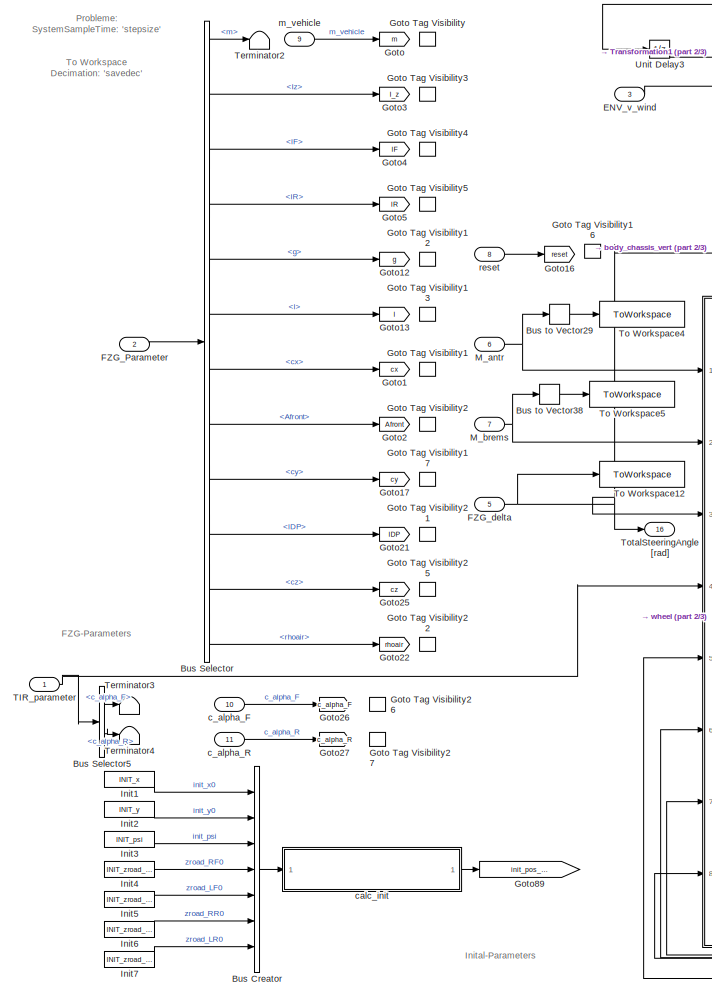
[diagram: Dynamics/SingleTrackModel_linear/vehicle_model - part 1/3, left side, full height]
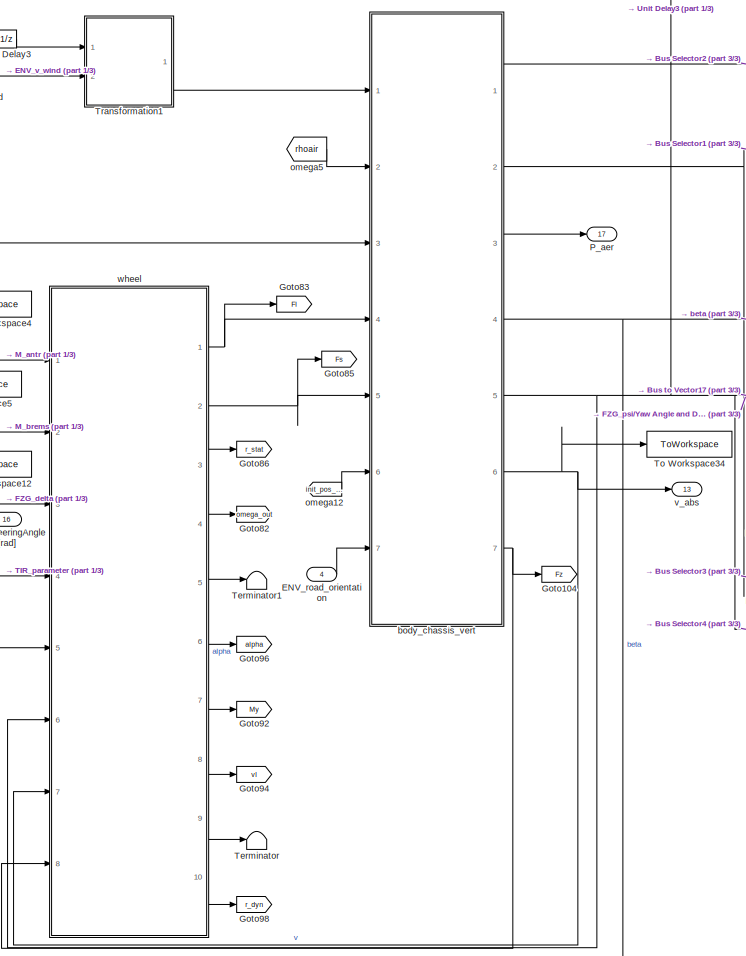
[diagram: Dynamics/SingleTrackModel_linear/vehicle_model - part 2/3, center side, full height]
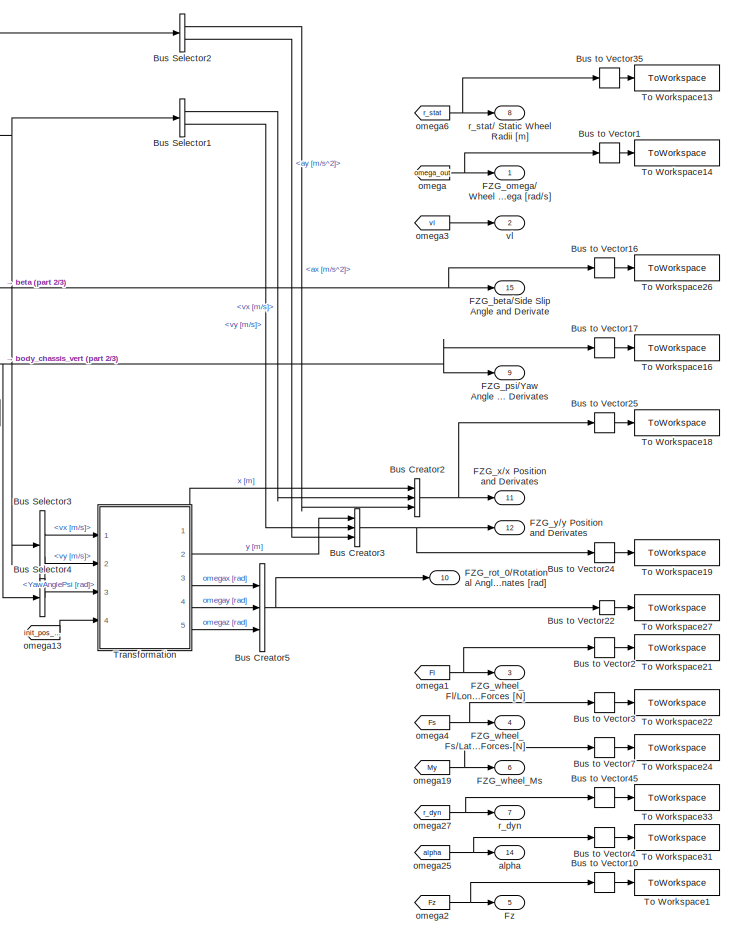
[diagram: Dynamics/SingleTrackModel_linear/vehicle_model - part 3/3, right side, full height]
BLOCK [SubSystem] Dynamics/SingleTrackModel_linear/vehicle_model
  MinAlgLoopOccurrences = on
  Ports = [11, 17]
  RequestExecContextInheritance = off
  TreatAsAtomicUnit = on
BLOCK [BusCreator] Dynamics/SingleTrackModel_linear/vehicle_model/Bus Creator
  DisplayOption = bar
  InheritFromInputs = on
  Inputs = 7
  Ports = [7, 1]
BLOCK [BusCreator] Dynamics/SingleTrackModel_linear/vehicle_model/Bus Creator2
  DisplayOption = bar
  InheritFromInputs = on
  Inputs = 3
  Ports = [3, 1]
BLOCK [BusCreator] Dynamics/SingleTrackModel_linear/vehicle_model/Bus Creator3
  DisplayOption = bar
  InheritFromInputs = on
  Inputs = 3
  Ports = [3, 1]
BLOCK [BusCreator] Dynamics/SingleTrackModel_linear/vehicle_model/Bus Creator5
  DisplayOption = bar
  InheritFromInputs = on
  Inputs = 3
  Ports = [3, 1]
BLOCK [BusSelector] Dynamics/SingleTrackModel_linear/vehicle_model/Bus Selector
  OutputSignals = m,Iz,lF,lR,g,l,cx,Afront,cy,lDP,cz,rhoair
  Ports = [1, 12]
BLOCK [BusSelector] Dynamics/SingleTrackModel_linear/vehicle_model/Bus Selector1
  OutputSignals = vx [m/s],vy [m/s]
  Ports = [1, 2]
BLOCK [BusSelector] Dynamics/SingleTrackModel_linear/vehicle_model/Bus Selector2
  OutputSignals = ax [m/s^2],ay [m/s^2]
  Ports = [1, 2]
BLOCK [BusSelector] Dynamics/SingleTrackModel_linear/vehicle_model/Bus Selector3
  OutputSignals = vx [m/s],vy [m/s]
  Ports = [1, 2]
BLOCK [BusSelector] Dynamics/SingleTrackModel_linear/vehicle_model/Bus Selector4
  OutputSignals = YawAnglePsi [rad]
  Ports = [1, 1]
BLOCK [BusSelector] Dynamics/SingleTrackModel_linear/vehicle_model/Bus Selector5
  OutputSignals = front.c_alpha_F,rear.c_alpha_R
  Ports = [1, 2]
BLOCK [BusToVector] Dynamics/SingleTrackModel_linear/vehicle_model/Bus to Vector1
  Commented = on
BLOCK [BusToVector] Dynamics/SingleTrackModel_linear/vehicle_model/Bus to Vector10
  Commented = on
BLOCK [BusToVector] Dynamics/SingleTrackModel_linear/vehicle_model/Bus to Vector16
BLOCK [BusToVector] Dynamics/SingleTrackModel_linear/vehicle_model/Bus to Vector17
BLOCK [BusToVector] Dynamics/SingleTrackModel_linear/vehicle_model/Bus to Vector2
  Commented = on
BLOCK [BusToVector] Dynamics/SingleTrackModel_linear/vehicle_model/Bus to Vector22
  Commented = on
BLOCK [BusToVector] Dynamics/SingleTrackModel_linear/vehicle_model/Bus to Vector24
BLOCK [BusToVector] Dynamics/SingleTrackModel_linear/vehicle_model/Bus to Vector25
BLOCK [BusToVector] Dynamics/SingleTrackModel_linear/vehicle_model/Bus to Vector29
  Commented = on
BLOCK [BusToVector] Dynamics/SingleTrackModel_linear/vehicle_model/Bus to Vector3
  Commented = on
BLOCK [BusToVector] Dynamics/SingleTrackModel_linear/vehicle_model/Bus to Vector35
  Commented = on
BLOCK [BusToVector] Dynamics/SingleTrackModel_linear/vehicle_model/Bus to Vector38
  Commented = on
BLOCK [BusToVector] Dynamics/SingleTrackModel_linear/vehicle_model/Bus to Vector4
  Commented = on
BLOCK [BusToVector] Dynamics/SingleTrackModel_linear/vehicle_model/Bus to Vector45
  Commented = on
BLOCK [BusToVector] Dynamics/SingleTrackModel_linear/vehicle_model/Bus to Vector7
  Commented = on
BLOCK [Inport] Dynamics/SingleTrackModel_linear/vehicle_model/ENV_road_orientation
  Port = 4
BLOCK [Inport] Dynamics/SingleTrackModel_linear/vehicle_model/ENV_v_wind
  Port = 3
BLOCK [Inport] Dynamics/SingleTrackModel_linear/vehicle_model/FZG_Parameter
  Port = 2
BLOCK [Outport] Dynamics/SingleTrackModel_linear/vehicle_model/FZG_beta//Side Slip Angle and Derivate
  Port = 15
  VectorParamsAs1DForOutWhenUnconnected = off
BLOCK [Inport] Dynamics/SingleTrackModel_linear/vehicle_model/FZG_delta
  Port = 5
BLOCK [Outport] Dynamics/SingleTrackModel_linear/vehicle_model/FZG_omega// Wheel Angle Omega [rad//s]
  VectorParamsAs1DForOutWhenUnconnected = off
BLOCK [Outport] Dynamics/SingleTrackModel_linear/vehicle_model/FZG_psi//Yaw Angle and Derivates
  Port = 9
  VectorParamsAs1DForOutWhenUnconnected = off
BLOCK [Outport] Dynamics/SingleTrackModel_linear/vehicle_model/FZG_rot_0//Rotational Angles around Initial Coordinates [rad]
  Port = 10
  VectorParamsAs1DForOutWhenUnconnected = off
BLOCK [Outport] Dynamics/SingleTrackModel_linear/vehicle_model/FZG_wheel_Fl//Longitudinal Wheel Forces [N]
  Port = 3
  VectorParamsAs1DForOutWhenUnconnected = off
BLOCK [Outport] Dynamics/SingleTrackModel_linear/vehicle_model/FZG_wheel_Fs//Lateral Wheel Forces [N]
  Port = 4
  VectorParamsAs1DForOutWhenUnconnected = off
BLOCK [Outport] Dynamics/SingleTrackModel_linear/vehicle_model/FZG_wheel_Ms
  Port = 6
  VectorParamsAs1DForOutWhenUnconnected = off
BLOCK [Outport] Dynamics/SingleTrackModel_linear/vehicle_model/FZG_x//x Position and Derivates
  Port = 11
  PortDimensions = 3
  VectorParamsAs1DForOutWhenUnconnected = off
BLOCK [Outport] Dynamics/SingleTrackModel_linear/vehicle_model/FZG_y//y Position and Derivates
  Port = 12
  VectorParamsAs1DForOutWhenUnconnected = off
BLOCK [Outport] Dynamics/SingleTrackModel_linear/vehicle_model/Fz
  Port = 5
  VectorParamsAs1DForOutWhenUnconnected = off
BLOCK [Goto] Dynamics/SingleTrackModel_linear/vehicle_model/Goto
  GotoTag = m
  TagVisibility = scoped
BLOCK [GotoTagVisibility] Dynamics/SingleTrackModel_linear/vehicle_model/Goto Tag Visibility
  GotoTag = m
BLOCK [GotoTagVisibility] Dynamics/SingleTrackModel_linear/vehicle_model/Goto Tag Visibility1
  GotoTag = cx
BLOCK [GotoTagVisibility] Dynamics/SingleTrackModel_linear/vehicle_model/Goto Tag Visibility12
  GotoTag = g
BLOCK [GotoTagVisibility] Dynamics/SingleTrackModel_linear/vehicle_model/Goto Tag Visibility13
  GotoTag = l
BLOCK [GotoTagVisibility] Dynamics/SingleTrackModel_linear/vehicle_model/Goto Tag Visibility16
  GotoTag = reset
BLOCK [GotoTagVisibility] Dynamics/SingleTrackModel_linear/vehicle_model/Goto Tag Visibility17
  GotoTag = cy
BLOCK [GotoTagVisibility] Dynamics/SingleTrackModel_linear/vehicle_model/Goto Tag Visibility2
  GotoTag = Afront
BLOCK [GotoTagVisibility] Dynamics/SingleTrackModel_linear/vehicle_model/Goto Tag Visibility21
  GotoTag = lDP
BLOCK [GotoTagVisibility] Dynamics/SingleTrackModel_linear/vehicle_model/Goto Tag Visibility22
  GotoTag = rhoair
BLOCK [GotoTagVisibility] Dynamics/SingleTrackModel_linear/vehicle_model/Goto Tag Visibility25
  GotoTag = cz
BLOCK [GotoTagVisibility] Dynamics/SingleTrackModel_linear/vehicle_model/Goto Tag Visibility26
  GotoTag = c_alpha_F
BLOCK [GotoTagVisibility] Dynamics/SingleTrackModel_linear/vehicle_model/Goto Tag Visibility27
  GotoTag = c_alpha_R
BLOCK [GotoTagVisibility] Dynamics/SingleTrackModel_linear/vehicle_model/Goto Tag Visibility3
  GotoTag = I_z
BLOCK [GotoTagVisibility] Dynamics/SingleTrackModel_linear/vehicle_model/Goto Tag Visibility4
  GotoTag = lF
BLOCK [GotoTagVisibility] Dynamics/SingleTrackModel_linear/vehicle_model/Goto Tag Visibility5
  GotoTag = lR
BLOCK [Goto] Dynamics/SingleTrackModel_linear/vehicle_model/Goto1
  GotoTag = cx
  TagVisibility = scoped
BLOCK [Goto] Dynamics/SingleTrackModel_linear/vehicle_model/Goto104
  GotoTag = Fz
BLOCK [Goto] Dynamics/SingleTrackModel_linear/vehicle_model/Goto12
  GotoTag = g
  TagVisibility = scoped
BLOCK [Goto] Dynamics/SingleTrackModel_linear/vehicle_model/Goto13
  GotoTag = l
  TagVisibility = scoped
BLOCK [Goto] Dynamics/SingleTrackModel_linear/vehicle_model/Goto16
  GotoTag = reset
  TagVisibility = scoped
BLOCK [Goto] Dynamics/SingleTrackModel_linear/vehicle_model/Goto17
  GotoTag = cy
  TagVisibility = scoped
BLOCK [Goto] Dynamics/SingleTrackModel_linear/vehicle_model/Goto2
  GotoTag = Afront
  TagVisibility = scoped
BLOCK [Goto] Dynamics/SingleTrackModel_linear/vehicle_model/Goto21
  GotoTag = lDP
  TagVisibility = scoped
BLOCK [Goto] Dynamics/SingleTrackModel_linear/vehicle_model/Goto22
  GotoTag = rhoair
  TagVisibility = scoped
BLOCK [Goto] Dynamics/SingleTrackModel_linear/vehicle_model/Goto25
  GotoTag = cz
  TagVisibility = scoped
BLOCK [Goto] Dynamics/SingleTrackModel_linear/vehicle_model/Goto26
  GotoTag = c_alpha_F
  TagVisibility = scoped
BLOCK [Goto] Dynamics/SingleTrackModel_linear/vehicle_model/Goto27
  GotoTag = c_alpha_R
  TagVisibility = scoped
BLOCK [Goto] Dynamics/SingleTrackModel_linear/vehicle_model/Goto3
  GotoTag = I_z
  TagVisibility = scoped
BLOCK [Goto] Dynamics/SingleTrackModel_linear/vehicle_model/Goto4
  GotoTag = lF
  TagVisibility = scoped
BLOCK [Goto] Dynamics/SingleTrackModel_linear/vehicle_model/Goto5
  GotoTag = lR
  TagVisibility = scoped
BLOCK [Goto] Dynamics/SingleTrackModel_linear/vehicle_model/Goto82
  GotoTag = omega_out
BLOCK [Goto] Dynamics/SingleTrackModel_linear/vehicle_model/Goto83
  GotoTag = Fl
BLOCK [Goto] Dynamics/SingleTrackModel_linear/vehicle_model/Goto85
  GotoTag = Fs
BLOCK [Goto] Dynamics/SingleTrackModel_linear/vehicle_model/Goto86
  GotoTag = r_stat
BLOCK [Goto] Dynamics/SingleTrackModel_linear/vehicle_model/Goto89
  GotoTag = init_pos_complete
BLOCK [Goto] Dynamics/SingleTrackModel_linear/vehicle_model/Goto92
  GotoTag = My
BLOCK [Goto] Dynamics/SingleTrackModel_linear/vehicle_model/Goto94
  GotoTag = vl
BLOCK [Goto] Dynamics/SingleTrackModel_linear/vehicle_model/Goto96
  GotoTag = alpha
BLOCK [Goto] Dynamics/SingleTrackModel_linear/vehicle_model/Goto98
  GotoTag = r_dyn
BLOCK [Constant] Dynamics/SingleTrackModel_linear/vehicle_model/Init1
  Value = INIT_x
BLOCK [Constant] Dynamics/SingleTrackModel_linear/vehicle_model/Init2
  Value = INIT_y
BLOCK [Constant] Dynamics/SingleTrackModel_linear/vehicle_model/Init3
  Value = INIT_psi
BLOCK [Constant] Dynamics/SingleTrackModel_linear/vehicle_model/Init4
  Value = INIT_zroad_RF0
BLOCK [Constant] Dynamics/SingleTrackModel_linear/vehicle_model/Init5
  Value = INIT_zroad_LF0
BLOCK [Constant] Dynamics/SingleTrackModel_linear/vehicle_model/Init6
  Value = INIT_zroad_RR0
BLOCK [Constant] Dynamics/SingleTrackModel_linear/vehicle_model/Init7
  Value = INIT_zroad_LR0
BLOCK [Inport] Dynamics/SingleTrackModel_linear/vehicle_model/M_antr
  Port = 6
  PortDimensions = 2
BLOCK [Inport] Dynamics/SingleTrackModel_linear/vehicle_model/M_brems
  Port = 7
  PortDimensions = 2
BLOCK [Outport] Dynamics/SingleTrackModel_linear/vehicle_model/P_aer
  Port = 17
  VectorParamsAs1DForOutWhenUnconnected = off
BLOCK [Inport] Dynamics/SingleTrackModel_linear/vehicle_model/TIR_parameter
BLOCK [Terminator] Dynamics/SingleTrackModel_linear/vehicle_model/Terminator
BLOCK [Terminator] Dynamics/SingleTrackModel_linear/vehicle_model/Terminator1
BLOCK [Terminator] Dynamics/SingleTrackModel_linear/vehicle_model/Terminator2
BLOCK [Terminator] Dynamics/SingleTrackModel_linear/vehicle_model/Terminator3
BLOCK [Terminator] Dynamics/SingleTrackModel_linear/vehicle_model/Terminator4
BLOCK [ToWorkspace] Dynamics/SingleTrackModel_linear/vehicle_model/To Workspace1
  Commented = on
  Decimation = savedec
  FixptAsFi = on
  MaxDataPoints = inf
  Ports = [1]
  SampleTime = -1
  Save2DSignal = 2-D array (concatenate along first dimension)
  VariableName = sv_FZG_Fz_ESM_lin
BLOCK [ToWorkspace] Dynamics/SingleTrackModel_linear/vehicle_model/To Workspace12
  Commented = on
  Decimation = savedec
  FixptAsFi = on
  MaxDataPoints = inf
  Ports = [1]
  SampleTime = -1
  Save2DSignal = 2-D array (concatenate along first dimension)
  VariableName = sv_FAH_delta_ESM_lin
BLOCK [ToWorkspace] Dynamics/SingleTrackModel_linear/vehicle_model/To Workspace13
  Commented = on
  Decimation = savedec
  FixptAsFi = on
  MaxDataPoints = inf
  Ports = [1]
  SampleTime = -1
  Save2DSignal = 2-D array (concatenate along first dimension)
  VariableName = sv_r_stat_ESM_lin
BLOCK [ToWorkspace] Dynamics/SingleTrackModel_linear/vehicle_model/To Workspace14
  Commented = on
  Decimation = savedec
  FixptAsFi = on
  MaxDataPoints = inf
  Ports = [1]
  SampleTime = -1
  Save2DSignal = 2-D array (concatenate along first dimension)
  VariableName = sv_FZG_omega_ESM_lin
BLOCK [ToWorkspace] Dynamics/SingleTrackModel_linear/vehicle_model/To Workspace16
  Commented = on
  Decimation = savedec
  FixptAsFi = on
  MaxDataPoints = inf
  Ports = [1]
  SampleTime = -1
  Save2DSignal = 2-D array (concatenate along first dimension)
  VariableName = sv_FZG_psi_ESM_lin
BLOCK [ToWorkspace] Dynamics/SingleTrackModel_linear/vehicle_model/To Workspace18
  Commented = on
  Decimation = savedec
  FixptAsFi = on
  MaxDataPoints = inf
  Ports = [1]
  SampleTime = -1
  Save2DSignal = 2-D array (concatenate along first dimension)
  VariableName = sv_FZG_x_ESM_lin
BLOCK [ToWorkspace] Dynamics/SingleTrackModel_linear/vehicle_model/To Workspace19
  Commented = on
  Decimation = savedec
  FixptAsFi = on
  MaxDataPoints = inf
  Ports = [1]
  SampleTime = -1
  Save2DSignal = 2-D array (concatenate along first dimension)
  VariableName = sv_FZG_y_ESM_lin
BLOCK [ToWorkspace] Dynamics/SingleTrackModel_linear/vehicle_model/To Workspace21
  Commented = on
  Decimation = savedec
  FixptAsFi = on
  MaxDataPoints = inf
  Ports = [1]
  SampleTime = -1
  Save2DSignal = 2-D array (concatenate along first dimension)
  VariableName = sv_FZG_Fl_ESM_lin
BLOCK [ToWorkspace] Dynamics/SingleTrackModel_linear/vehicle_model/To Workspace22
  Commented = on
  Decimation = savedec
  FixptAsFi = on
  MaxDataPoints = inf
  Ports = [1]
  SampleTime = -1
  Save2DSignal = 2-D array (concatenate along first dimension)
  VariableName = sv_FZG_Fs_ESM_lin
BLOCK [ToWorkspace] Dynamics/SingleTrackModel_linear/vehicle_model/To Workspace24
  Commented = on
  Decimation = savedec
  FixptAsFi = on
  MaxDataPoints = inf
  Ports = [1]
  SampleTime = -1
  Save2DSignal = 2-D array (concatenate along first dimension)
  VariableName = sv_FZG_wheel_Ms_ESM_lin
BLOCK [ToWorkspace] Dynamics/SingleTrackModel_linear/vehicle_model/To Workspace26
  Commented = on
  Decimation = savedec
  FixptAsFi = on
  MaxDataPoints = inf
  Ports = [1]
  SampleTime = -1
  Save2DSignal = 2-D array (concatenate along first dimension)
  VariableName = sv_FZG_beta_ESM_lin
BLOCK [ToWorkspace] Dynamics/SingleTrackModel_linear/vehicle_model/To Workspace27
  Commented = on
  Decimation = savedec
  FixptAsFi = on
  MaxDataPoints = inf
  Ports = [1]
  SampleTime = -1
  Save2DSignal = 2-D array (concatenate along first dimension)
  VariableName = sv_FZG_rot_ESM_lin
BLOCK [ToWorkspace] Dynamics/SingleTrackModel_linear/vehicle_model/To Workspace31
  Commented = on
  Decimation = savedec
  FixptAsFi = on
  MaxDataPoints = inf
  Ports = [1]
  SampleTime = -1
  Save2DSignal = 2-D array (concatenate along first dimension)
  VariableName = sv_alpha_ESM_lin
BLOCK [ToWorkspace] Dynamics/SingleTrackModel_linear/vehicle_model/To Workspace33
  Commented = on
  Decimation = savedec
  FixptAsFi = on
  MaxDataPoints = inf
  Ports = [1]
  SampleTime = -1
  Save2DSignal = 2-D array (concatenate along first dimension)
  VariableName = sv_r_dyn_ESM_lin
BLOCK [ToWorkspace] Dynamics/SingleTrackModel_linear/vehicle_model/To Workspace34
  Commented = on
  Decimation = savedec
  FixptAsFi = on
  MaxDataPoints = inf
  Ports = [1]
  SampleTime = -1
  Save2DSignal = 2-D array (concatenate along first dimension)
  VariableName = sv_FZG_v_abs_ESM_lin
BLOCK [ToWorkspace] Dynamics/SingleTrackModel_linear/vehicle_model/To Workspace4
  Commented = on
  Decimation = savedec
  FixptAsFi = on
  MaxDataPoints = inf
  Ports = [1]
  SampleTime = -1
  Save2DSignal = 2-D array (concatenate along first dimension)
  VariableName = sv_FAH_M_antr_ESM_lin
BLOCK [ToWorkspace] Dynamics/SingleTrackModel_linear/vehicle_model/To Workspace5
  Commented = on
  Decimation = savedec
  FixptAsFi = on
  MaxDataPoints = inf
  Ports = [1]
  SampleTime = -1
  Save2DSignal = 2-D array (concatenate along first dimension)
  VariableName = sv_FAH_M_brems_ESM_lin
BLOCK [Outport] Dynamics/SingleTrackModel_linear/vehicle_model/TotalSteeringAngle [rad]
  NameLocation = top
  Port = 16
  VectorParamsAs1DForOutWhenUnconnected = off
BLOCK [SubSystem] Dynamics/SingleTrackModel_linear/vehicle_model/Transformation
  Ports = [4, 5]
  RequestExecContextInheritance = off
BLOCK [BusSelector] Dynamics/SingleTrackModel_linear/vehicle_model/Transformation/Bus Selector
  OutputSignals = init_x0,init_y0
  Ports = [1, 2]
BLOCK [Constant] Dynamics/SingleTrackModel_linear/vehicle_model/Transformation/Constant
  Value = 0
BLOCK [Constant] Dynamics/SingleTrackModel_linear/vehicle_model/Transformation/Constant1
  Value = 0
BLOCK [Demux] Dynamics/SingleTrackModel_linear/vehicle_model/Transformation/Demux1
  Outputs = 3
  Ports = [1, 3]
BLOCK [Demux] Dynamics/SingleTrackModel_linear/vehicle_model/Transformation/Demux2
  Outputs = 3
  Ports = [1, 3]
BLOCK [DiscreteIntegrator] Dynamics/SingleTrackModel_linear/vehicle_model/Transformation/Discrete-Time Integrator
  ExternalReset = sampled level
  ICPrevOutput = DiscIntNeverNeededParam
  ICPrevScaledInput = DiscIntNeverNeededParam
  InitialConditionSource = external
  Ports = [3, 1]
  SampleTime = -1
BLOCK [DiscreteIntegrator] Dynamics/SingleTrackModel_linear/vehicle_model/Transformation/Discrete-Time Integrator1
  ExternalReset = sampled level
  ICPrevOutput = DiscIntNeverNeededParam
  ICPrevScaledInput = DiscIntNeverNeededParam
  InitialConditionSource = external
  Ports = [3, 1]
  SampleTime = -1
BLOCK [From] Dynamics/SingleTrackModel_linear/vehicle_model/Transformation/From
  GotoTag = reset
  TagVisibility = scoped
BLOCK [Math] Dynamics/SingleTrackModel_linear/vehicle_model/Transformation/Math Function
  Operator = transpose
  Ports = [1, 1]
  SignedPower = on
BLOCK [Math] Dynamics/SingleTrackModel_linear/vehicle_model/Transformation/Math Function1
  Operator = transpose
  Ports = [1, 1]
  SignedPower = on
BLOCK [Concatenate] Dynamics/SingleTrackModel_linear/vehicle_model/Transformation/Matrix Concatenate1
  NumInputs = 3
  Ports = [3, 1]
BLOCK [Concatenate] Dynamics/SingleTrackModel_linear/vehicle_model/Transformation/Matrix Concatenate2
  NumInputs = 3
  Ports = [3, 1]
BLOCK [Product] Dynamics/SingleTrackModel_linear/vehicle_model/Transformation/Product
  Multiplication = Matrix(*)
  Ports = [2, 1]
BLOCK [Product] Dynamics/SingleTrackModel_linear/vehicle_model/Transformation/Product1
  Multiplication = Matrix(*)
  Ports = [2, 1]
BLOCK [Terminator] Dynamics/SingleTrackModel_linear/vehicle_model/Transformation/Terminator
BLOCK [Inport] Dynamics/SingleTrackModel_linear/vehicle_model/Transformation/init_pos
  Port = 4
BLOCK [Outport] Dynamics/SingleTrackModel_linear/vehicle_model/Transformation/omegax0
  Port = 3
  VectorParamsAs1DForOutWhenUnconnected = off
BLOCK [Outport] Dynamics/SingleTrackModel_linear/vehicle_model/Transformation/omegay0
  Port = 4
  VectorParamsAs1DForOutWhenUnconnected = off
BLOCK [Outport] Dynamics/SingleTrackModel_linear/vehicle_model/Transformation/omegaz0
  Port = 5
  VectorParamsAs1DForOutWhenUnconnected = off
BLOCK [Inport] Dynamics/SingleTrackModel_linear/vehicle_model/Transformation/psi
  Port = 3
BLOCK [SubSystem] Dynamics/SingleTrackModel_linear/vehicle_model/Transformation/trafo_matrix
  Ports = [1, 1]
  RequestExecContextInheritance = off
BLOCK [Constant] Dynamics/SingleTrackModel_linear/vehicle_model/Transformation/trafo_matrix/Constant
  Value = 0
BLOCK [Constant] Dynamics/SingleTrackModel_linear/vehicle_model/Transformation/trafo_matrix/Constant1
BLOCK [Constant] Dynamics/SingleTrackModel_linear/vehicle_model/Transformation/trafo_matrix/Constant2
  Value = 0
BLOCK [Constant] Dynamics/SingleTrackModel_linear/vehicle_model/Transformation/trafo_matrix/Constant3
  Value = 0
BLOCK [Constant] Dynamics/SingleTrackModel_linear/vehicle_model/Transformation/trafo_matrix/Constant4
  Value = 0
BLOCK [Concatenate] Dynamics/SingleTrackModel_linear/vehicle_model/Transformation/trafo_matrix/Matrix Concatenate
  ConcatenateDimension = 2
  Mode = Multidimensional array
  NumInputs = 3
  Ports = [3, 1]
BLOCK [Concatenate] Dynamics/SingleTrackModel_linear/vehicle_model/Transformation/trafo_matrix/Matrix Concatenate1
  NumInputs = 3
  Ports = [3, 1]
BLOCK [Concatenate] Dynamics/SingleTrackModel_linear/vehicle_model/Transformation/trafo_matrix/Matrix Concatenate2
  NumInputs = 3
  Ports = [3, 1]
BLOCK [Concatenate] Dynamics/SingleTrackModel_linear/vehicle_model/Transformation/trafo_matrix/Matrix Concatenate3
  NumInputs = 3
  Ports = [3, 1]
BLOCK [Outport] Dynamics/SingleTrackModel_linear/vehicle_model/Transformation/trafo_matrix/OT3
  VectorParamsAs1DForOutWhenUnconnected = off
BLOCK [Trigonometry] Dynamics/SingleTrackModel_linear/vehicle_model/Transformation/trafo_matrix/Trigonometric Function
  Operator = cos
  Ports = [1, 1]
BLOCK [Trigonometry] Dynamics/SingleTrackModel_linear/vehicle_model/Transformation/trafo_matrix/Trigonometric Function7
  Ports = [1, 1]
BLOCK [UnaryMinus] Dynamics/SingleTrackModel_linear/vehicle_model/Transformation/trafo_matrix/Unary Minus
BLOCK [Inport] Dynamics/SingleTrackModel_linear/vehicle_model/Transformation/trafo_matrix/psi
  NameLocation = top
BLOCK [SubSystem] Dynamics/SingleTrackModel_linear/vehicle_model/Transformation/trafo_matrix1
  Ports = [1, 1]
  RequestExecContextInheritance = off
BLOCK [Constant] Dynamics/SingleTrackModel_linear/vehicle_model/Transformation/trafo_matrix1/Constant
  Value = 0
BLOCK [Constant] Dynamics/SingleTrackModel_linear/vehicle_model/Transformation/trafo_matrix1/Constant1
  Value = 0
BLOCK [Constant] Dynamics/SingleTrackModel_linear/vehicle_model/Transformation/trafo_matrix1/Constant2
BLOCK [Constant] Dynamics/SingleTrackModel_linear/vehicle_model/Transformation/trafo_matrix1/Constant3
  Value = 0
BLOCK [Constant] Dynamics/SingleTrackModel_linear/vehicle_model/Transformation/trafo_matrix1/Constant4
  Value = 0
BLOCK [Concatenate] Dynamics/SingleTrackModel_linear/vehicle_model/Transformation/trafo_matrix1/Matrix Concatenate
  ConcatenateDimension = 2
  Mode = Multidimensional array
  NumInputs = 3
  Ports = [3, 1]
BLOCK [Concatenate] Dynamics/SingleTrackModel_linear/vehicle_model/Transformation/trafo_matrix1/Matrix Concatenate1
  NumInputs = 3
  Ports = [3, 1]
BLOCK [Concatenate] Dynamics/SingleTrackModel_linear/vehicle_model/Transformation/trafo_matrix1/Matrix Concatenate2
  NumInputs = 3
  Ports = [3, 1]
BLOCK [Concatenate] Dynamics/SingleTrackModel_linear/vehicle_model/Transformation/trafo_matrix1/Matrix Concatenate3
  NumInputs = 3
  Ports = [3, 1]
BLOCK [Outport] Dynamics/SingleTrackModel_linear/vehicle_model/Transformation/trafo_matrix1/OTo
  VectorParamsAs1DForOutWhenUnconnected = off
BLOCK [Trigonometry] Dynamics/SingleTrackModel_linear/vehicle_model/Transformation/trafo_matrix1/Trigonometric Function
  Operator = cos
  Ports = [1, 1]
BLOCK [Trigonometry] Dynamics/SingleTrackModel_linear/vehicle_model/Transformation/trafo_matrix1/Trigonometric Function7
  Ports = [1, 1]
BLOCK [UnaryMinus] Dynamics/SingleTrackModel_linear/vehicle_model/Transformation/trafo_matrix1/Unary Minus
BLOCK [Inport] Dynamics/SingleTrackModel_linear/vehicle_model/Transformation/trafo_matrix1/psi
  NameLocation = top
BLOCK [Inport] Dynamics/SingleTrackModel_linear/vehicle_model/Transformation/vx
BLOCK [Inport] Dynamics/SingleTrackModel_linear/vehicle_model/Transformation/vy
  Port = 2
BLOCK [Outport] Dynamics/SingleTrackModel_linear/vehicle_model/Transformation/x0
  VectorParamsAs1DForOutWhenUnconnected = off
BLOCK [Outport] Dynamics/SingleTrackModel_linear/vehicle_model/Transformation/y0
  Port = 2
  VectorParamsAs1DForOutWhenUnconnected = off
BLOCK [SubSystem] Dynamics/SingleTrackModel_linear/vehicle_model/Transformation1
  Ports = [2, 1]
  RequestExecContextInheritance = off
BLOCK [BusCreator] Dynamics/SingleTrackModel_linear/vehicle_model/Transformation1/Bus Creator
  DisplayOption = bar
  InheritFromInputs = on
  Inputs = 3
  Ports = [3, 1]
BLOCK [BusSelector] Dynamics/SingleTrackModel_linear/vehicle_model/Transformation1/Bus Selector
  OutputSignals = vx,vy,vz
  Ports = [1, 3]
BLOCK [BusSelector] Dynamics/SingleTrackModel_linear/vehicle_model/Transformation1/Bus Selector1
  OutputSignals = YawAnglePsi [rad]
  Ports = [1, 1]
BLOCK [Demux] Dynamics/SingleTrackModel_linear/vehicle_model/Transformation1/Demux1
  Outputs = 3
  Ports = [1, 3]
BLOCK [Math] Dynamics/SingleTrackModel_linear/vehicle_model/Transformation1/Math Function
  Operator = transpose
  Ports = [1, 1]
  SignedPower = on
BLOCK [Concatenate] Dynamics/SingleTrackModel_linear/vehicle_model/Transformation1/Matrix Concatenate2
  NumInputs = 3
  Ports = [3, 1]
BLOCK [Product] Dynamics/SingleTrackModel_linear/vehicle_model/Transformation1/Product
  Multiplication = Matrix(*)
  Ports = [2, 1]
BLOCK [Inport] Dynamics/SingleTrackModel_linear/vehicle_model/Transformation1/psi
BLOCK [SubSystem] Dynamics/SingleTrackModel_linear/vehicle_model/Transformation1/trafo_matrix
  Ports = [1, 1]
  RequestExecContextInheritance = off
BLOCK [Constant] Dynamics/SingleTrackModel_linear/vehicle_model/Transformation1/trafo_matrix/Constant
  Value = 0
BLOCK [Constant] Dynamics/SingleTrackModel_linear/vehicle_model/Transformation1/trafo_matrix/Constant1
BLOCK [Constant] Dynamics/SingleTrackModel_linear/vehicle_model/Transformation1/trafo_matrix/Constant2
  Value = 0
BLOCK [Constant] Dynamics/SingleTrackModel_linear/vehicle_model/Transformation1/trafo_matrix/Constant3
  Value = 0
BLOCK [Constant] Dynamics/SingleTrackModel_linear/vehicle_model/Transformation1/trafo_matrix/Constant4
  Value = 0
BLOCK [Concatenate] Dynamics/SingleTrackModel_linear/vehicle_model/Transformation1/trafo_matrix/Matrix Concatenate
  ConcatenateDimension = 2
  Mode = Multidimensional array
  NumInputs = 3
  Ports = [3, 1]
BLOCK [Concatenate] Dynamics/SingleTrackModel_linear/vehicle_model/Transformation1/trafo_matrix/Matrix Concatenate1
  NumInputs = 3
  Ports = [3, 1]
BLOCK [Concatenate] Dynamics/SingleTrackModel_linear/vehicle_model/Transformation1/trafo_matrix/Matrix Concatenate2
  NumInputs = 3
  Ports = [3, 1]
BLOCK [Concatenate] Dynamics/SingleTrackModel_linear/vehicle_model/Transformation1/trafo_matrix/Matrix Concatenate3
  NumInputs = 3
  Ports = [3, 1]
BLOCK [Outport] Dynamics/SingleTrackModel_linear/vehicle_model/Transformation1/trafo_matrix/OT3
  VectorParamsAs1DForOutWhenUnconnected = off
BLOCK [Trigonometry] Dynamics/SingleTrackModel_linear/vehicle_model/Transformation1/trafo_matrix/Trigonometric Function
  Operator = cos
  Ports = [1, 1]
BLOCK [Trigonometry] Dynamics/SingleTrackModel_linear/vehicle_model/Transformation1/trafo_matrix/Trigonometric Function7
  Ports = [1, 1]
BLOCK [UnaryMinus] Dynamics/SingleTrackModel_linear/vehicle_model/Transformation1/trafo_matrix/Unary Minus4
BLOCK [Inport] Dynamics/SingleTrackModel_linear/vehicle_model/Transformation1/trafo_matrix/psi
  NameLocation = top
BLOCK [Inport] Dynamics/SingleTrackModel_linear/vehicle_model/Transformation1/vx
  Port = 2
BLOCK [Outport] Dynamics/SingleTrackModel_linear/vehicle_model/Transformation1/x3
  VectorParamsAs1DForOutWhenUnconnected = off
BLOCK [UnitDelay] Dynamics/SingleTrackModel_linear/vehicle_model/Unit Delay3
  HasFrameUpgradeWarning = on
  SampleTime = -1
BLOCK [Outport] Dynamics/SingleTrackModel_linear/vehicle_model/alpha
  Port = 14
  VectorParamsAs1DForOutWhenUnconnected = off
BLOCK [SubSystem] Dynamics/SingleTrackModel_linear/vehicle_model/body_chassis_vert
  Ports = [7, 7]
  RequestExecContextInheritance = off
BLOCK [Inport] Dynamics/SingleTrackModel_linear/vehicle_model/body_chassis_vert/Fl
  Port = 4
BLOCK [Inport] Dynamics/SingleTrackModel_linear/vehicle_model/body_chassis_vert/Fs
  Port = 5
BLOCK [Outport] Dynamics/SingleTrackModel_linear/vehicle_model/body_chassis_vert/Fzt
  Port = 7
  VectorParamsAs1DForOutWhenUnconnected = off
BLOCK [Outport] Dynamics/SingleTrackModel_linear/vehicle_model/body_chassis_vert/P_aer
  Port = 3
  VectorParamsAs1DForOutWhenUnconnected = off
BLOCK [Outport] Dynamics/SingleTrackModel_linear/vehicle_model/body_chassis_vert/axy
  VectorParamsAs1DForOutWhenUnconnected = off
BLOCK [Outport] Dynamics/SingleTrackModel_linear/vehicle_model/body_chassis_vert/beta
  Port = 4
  VectorParamsAs1DForOutWhenUnconnected = off
BLOCK [Inport] Dynamics/SingleTrackModel_linear/vehicle_model/body_chassis_vert/delta
  Port = 3
BLOCK [SubSystem] Dynamics/SingleTrackModel_linear/vehicle_model/body_chassis_vert/horizontal
  Ports = [7, 8]
  RequestExecContextInheritance = off
BLOCK [BusCreator] Dynamics/SingleTrackModel_linear/vehicle_model/body_chassis_vert/horizontal/Bus Creator
  DisplayOption = bar
  InheritFromInputs = on
  Inputs = 2
  Ports = [2, 1]
BLOCK [BusCreator] Dynamics/SingleTrackModel_linear/vehicle_model/body_chassis_vert/horizontal/Bus Creator1
  DisplayOption = bar
  InheritFromInputs = on
  Inputs = 3
  Ports = [3, 1]
BLOCK [BusCreator] Dynamics/SingleTrackModel_linear/vehicle_model/body_chassis_vert/horizontal/Bus Creator2
  DisplayOption = bar
  InheritFromInputs = on
  Inputs = 2
  Ports = [2, 1]
BLOCK [BusSelector] Dynamics/SingleTrackModel_linear/vehicle_model/body_chassis_vert/horizontal/Bus Selector
  OutputSignals = init_psi
  Ports = [1, 1]
BLOCK [DiscreteIntegrator] Dynamics/SingleTrackModel_linear/vehicle_model/body_chassis_vert/horizontal/Discrete-Time Integrator1
  ExternalReset = sampled level
  ICPrevOutput = DiscIntNeverNeededParam
  ICPrevScaledInput = DiscIntNeverNeededParam
  Ports = [2, 1]
  SampleTime = -1
BLOCK [DiscreteIntegrator] Dynamics/SingleTrackModel_linear/vehicle_model/body_chassis_vert/horizontal/Discrete-Time Integrator2
  ExternalReset = sampled level
  ICPrevOutput = DiscIntNeverNeededParam
  ICPrevScaledInput = DiscIntNeverNeededParam
  InitialCondition = v0
  LimitOutput = on
  Ports = [2, 1]
  SampleTime = -1
BLOCK [DiscreteIntegrator] Dynamics/SingleTrackModel_linear/vehicle_model/body_chassis_vert/horizontal/Discrete-Time Integrator3
  ExternalReset = sampled level
  ICPrevOutput = DiscIntNeverNeededParam
  ICPrevScaledInput = DiscIntNeverNeededParam
  InitialCondition = psip0
  Ports = [2, 1]
  SampleTime = -1
BLOCK [DiscreteIntegrator] Dynamics/SingleTrackModel_linear/vehicle_model/body_chassis_vert/horizontal/Discrete-Time Integrator4
  ExternalReset = sampled level
  ICPrevOutput = DiscIntNeverNeededParam
  ICPrevScaledInput = DiscIntNeverNeededParam
  InitialConditionSource = external
  Ports = [3, 1]
  SampleTime = -1
BLOCK [Inport] Dynamics/SingleTrackModel_linear/vehicle_model/body_chassis_vert/horizontal/Fl
  Port = 2
BLOCK [From] Dynamics/SingleTrackModel_linear/vehicle_model/body_chassis_vert/horizontal/From
  GotoTag = reset
  TagVisibility = scoped
BLOCK [Inport] Dynamics/SingleTrackModel_linear/vehicle_model/body_chassis_vert/horizontal/Fs
  Port = 3
BLOCK [Outport] Dynamics/SingleTrackModel_linear/vehicle_model/body_chassis_vert/horizontal/P_aer
  Port = 8
  VectorParamsAs1DForOutWhenUnconnected = off
BLOCK [Product] Dynamics/SingleTrackModel_linear/vehicle_model/body_chassis_vert/horizontal/Product
  Ports = [2, 1]
BLOCK [SubSystem] Dynamics/SingleTrackModel_linear/vehicle_model/body_chassis_vert/horizontal/acc
  Ports = [5, 1]
  RequestExecContextInheritance = off
BLOCK [BusSelector] Dynamics/SingleTrackModel_linear/vehicle_model/body_chassis_vert/horizontal/acc/Bus Selector
  OutputSignals = Fl.FlF,Fs.FsF,Fl.FlR,Fs.FsR
  Ports = [1, 4]
BLOCK [BusSelector] Dynamics/SingleTrackModel_linear/vehicle_model/body_chassis_vert/horizontal/acc/Bus Selector2
  OutputSignals = F_aer_x,F_aer_y
  Ports = [1, 2]
BLOCK [Product] Dynamics/SingleTrackModel_linear/vehicle_model/body_chassis_vert/horizontal/acc/Divide
  Inputs = */
  Ports = [2, 1]
BLOCK [Inport] Dynamics/SingleTrackModel_linear/vehicle_model/body_chassis_vert/horizontal/acc/F_aer
  Port = 4
BLOCK [Inport] Dynamics/SingleTrackModel_linear/vehicle_model/body_chassis_vert/horizontal/acc/Fls
BLOCK [From] Dynamics/SingleTrackModel_linear/vehicle_model/body_chassis_vert/horizontal/acc/From
  GotoTag = m
  TagVisibility = scoped
BLOCK [From] Dynamics/SingleTrackModel_linear/vehicle_model/body_chassis_vert/horizontal/acc/From1
  GotoTag = g
  TagVisibility = scoped
BLOCK [Product] Dynamics/SingleTrackModel_linear/vehicle_model/body_chassis_vert/horizontal/acc/Product
  Ports = [2, 1]
  RndMeth = Zero
BLOCK [Product] Dynamics/SingleTrackModel_linear/vehicle_model/body_chassis_vert/horizontal/acc/Product10
  Ports = [2, 1]
  RndMeth = Zero
BLOCK [Product] Dynamics/SingleTrackModel_linear/vehicle_model/body_chassis_vert/horizontal/acc/Product11
  Ports = [2, 1]
  RndMeth = Zero
BLOCK [Product] Dynamics/SingleTrackModel_linear/vehicle_model/body_chassis_vert/horizontal/acc/Product12
  Ports = [2, 1]
  RndMeth = Zero
BLOCK [Product] Dynamics/SingleTrackModel_linear/vehicle_model/body_chassis_vert/horizontal/acc/Product14
  Ports = [2, 1]
  RndMeth = Zero
BLOCK [Product] Dynamics/SingleTrackModel_linear/vehicle_model/body_chassis_vert/horizontal/acc/Product2
  Ports = [2, 1]
  RndMeth = Zero
BLOCK [Product] Dynamics/SingleTrackModel_linear/vehicle_model/body_chassis_vert/horizontal/acc/Product4
  Ports = [2, 1]
  RndMeth = Zero
BLOCK [Product] Dynamics/SingleTrackModel_linear/vehicle_model/body_chassis_vert/horizontal/acc/Product5
  Ports = [2, 1]
  RndMeth = Zero
BLOCK [Product] Dynamics/SingleTrackModel_linear/vehicle_model/body_chassis_vert/horizontal/acc/Product7
  Ports = [2, 1]
  RndMeth = Zero
BLOCK [Sum] Dynamics/SingleTrackModel_linear/vehicle_model/body_chassis_vert/horizontal/acc/Sum
  Inputs = |+-
  Ports = [2, 1]
BLOCK [Sum] Dynamics/SingleTrackModel_linear/vehicle_model/body_chassis_vert/horizontal/acc/Sum1
  IconShape = rectangular
  Inputs = +-+----
  Ports = [7, 1]
BLOCK [Trigonometry] Dynamics/SingleTrackModel_linear/vehicle_model/body_chassis_vert/horizontal/acc/Trigonometric Function11
  Operator = cos
  Ports = [1, 1]
BLOCK [Trigonometry] Dynamics/SingleTrackModel_linear/vehicle_model/body_chassis_vert/horizontal/acc/Trigonometric Function12
  Ports = [1, 1]
BLOCK [Trigonometry] Dynamics/SingleTrackModel_linear/vehicle_model/body_chassis_vert/horizontal/acc/Trigonometric Function3
  Ports = [1, 1]
BLOCK [Trigonometry] Dynamics/SingleTrackModel_linear/vehicle_model/body_chassis_vert/horizontal/acc/Trigonometric Function5
  Ports = [1, 1]
BLOCK [Trigonometry] Dynamics/SingleTrackModel_linear/vehicle_model/body_chassis_vert/horizontal/acc/Trigonometric Function6
  Operator = cos
  Ports = [1, 1]
BLOCK [Trigonometry] Dynamics/SingleTrackModel_linear/vehicle_model/body_chassis_vert/horizontal/acc/Trigonometric Function7
  Ports = [1, 1]
BLOCK [Trigonometry] Dynamics/SingleTrackModel_linear/vehicle_model/body_chassis_vert/horizontal/acc/Trigonometric Function9
  Operator = cos
  Ports = [1, 1]
BLOCK [UnaryMinus] Dynamics/SingleTrackModel_linear/vehicle_model/body_chassis_vert/horizontal/acc/Unary Minus
BLOCK [Outport] Dynamics/SingleTrackModel_linear/vehicle_model/body_chassis_vert/horizontal/acc/a
  VectorParamsAs1DForOutWhenUnconnected = off
BLOCK [Inport] Dynamics/SingleTrackModel_linear/vehicle_model/body_chassis_vert/horizontal/acc/beta
  Port = 3
BLOCK [Inport] Dynamics/SingleTrackModel_linear/vehicle_model/body_chassis_vert/horizontal/acc/delta
  Port = 2
BLOCK [Inport] Dynamics/SingleTrackModel_linear/vehicle_model/body_chassis_vert/horizontal/acc/pitch
  Port = 5
BLOCK [SubSystem] Dynamics/SingleTrackModel_linear/vehicle_model/body_chassis_vert/horizontal/aerodynamics
  Ports = [4, 1]
  RequestExecContextInheritance = off
BLOCK [BusCreator] Dynamics/SingleTrackModel_linear/vehicle_model/body_chassis_vert/horizontal/aerodynamics/Bus Creator1
  DisplayOption = bar
  InheritFromInputs = on
  Inputs = 3
  Ports = [3, 1]
BLOCK [BusSelector] Dynamics/SingleTrackModel_linear/vehicle_model/body_chassis_vert/horizontal/aerodynamics/Bus Selector2
  OutputSignals = vwindx,vwindy
  Ports = [1, 2]
BLOCK [Constant] Dynamics/SingleTrackModel_linear/vehicle_model/body_chassis_vert/horizontal/aerodynamics/Constant
  Value = 0.5
BLOCK [Constant] Dynamics/SingleTrackModel_linear/vehicle_model/body_chassis_vert/horizontal/aerodynamics/Constant1
  Value = 0.5
BLOCK [Constant] Dynamics/SingleTrackModel_linear/vehicle_model/body_chassis_vert/horizontal/aerodynamics/Constant2
  Value = 0.5
BLOCK [Outport] Dynamics/SingleTrackModel_linear/vehicle_model/body_chassis_vert/horizontal/aerodynamics/F_aer
  VectorParamsAs1DForOutWhenUnconnected = off
BLOCK [From] Dynamics/SingleTrackModel_linear/vehicle_model/body_chassis_vert/horizontal/aerodynamics/From
  GotoTag = cx
  TagVisibility = scoped
BLOCK [From] Dynamics/SingleTrackModel_linear/vehicle_model/body_chassis_vert/horizontal/aerodynamics/From1
  GotoTag = Afront
  TagVisibility = scoped
BLOCK [From] Dynamics/SingleTrackModel_linear/vehicle_model/body_chassis_vert/horizontal/aerodynamics/From2
  GotoTag = cy
  TagVisibility = scoped
BLOCK [From] Dynamics/SingleTrackModel_linear/vehicle_model/body_chassis_vert/horizontal/aerodynamics/From4
  GotoTag = cz
  TagVisibility = scoped
BLOCK [Math] Dynamics/SingleTrackModel_linear/vehicle_model/body_chassis_vert/horizontal/aerodynamics/Math Function
  Operator = square
  Ports = [1, 1]
  SignedPower = on
BLOCK [Math] Dynamics/SingleTrackModel_linear/vehicle_model/body_chassis_vert/horizontal/aerodynamics/Math Function1
  Operator = square
  Ports = [1, 1]
  SignedPower = on
BLOCK [Math] Dynamics/SingleTrackModel_linear/vehicle_model/body_chassis_vert/horizontal/aerodynamics/Math Function2
  Operator = square
  Ports = [1, 1]
  SignedPower = on
BLOCK [Product] Dynamics/SingleTrackModel_linear/vehicle_model/body_chassis_vert/horizontal/aerodynamics/Product
  Ports = [2, 1]
  RndMeth = Zero
BLOCK [Product] Dynamics/SingleTrackModel_linear/vehicle_model/body_chassis_vert/horizontal/aerodynamics/Product1
  Ports = [2, 1]
  RndMeth = Zero
BLOCK [Product] Dynamics/SingleTrackModel_linear/vehicle_model/body_chassis_vert/horizontal/aerodynamics/Product10
  Ports = [2, 1]
  RndMeth = Zero
BLOCK [Product] Dynamics/SingleTrackModel_linear/vehicle_model/body_chassis_vert/horizontal/aerodynamics/Product11
  Ports = [2, 1]
  RndMeth = Zero
BLOCK [Product] Dynamics/SingleTrackModel_linear/vehicle_model/body_chassis_vert/horizontal/aerodynamics/Product2
  Ports = [2, 1]
  RndMeth = Zero
BLOCK [Product] Dynamics/SingleTrackModel_linear/vehicle_model/body_chassis_vert/horizontal/aerodynamics/Product3
  Ports = [2, 1]
  RndMeth = Zero
BLOCK [Product] Dynamics/SingleTrackModel_linear/vehicle_model/body_chassis_vert/horizontal/aerodynamics/Product4
  Ports = [2, 1]
  RndMeth = Zero
BLOCK [Product] Dynamics/SingleTrackModel_linear/vehicle_model/body_chassis_vert/horizontal/aerodynamics/Product5
  Ports = [2, 1]
  RndMeth = Zero
BLOCK [Product] Dynamics/SingleTrackModel_linear/vehicle_model/body_chassis_vert/horizontal/aerodynamics/Product6
  Ports = [2, 1]
  RndMeth = Zero
BLOCK [Product] Dynamics/SingleTrackModel_linear/vehicle_model/body_chassis_vert/horizontal/aerodynamics/Product7
  Ports = [2, 1]
  RndMeth = Zero
BLOCK [Product] Dynamics/SingleTrackModel_linear/vehicle_model/body_chassis_vert/horizontal/aerodynamics/Product8
  Ports = [2, 1]
  RndMeth = Zero
BLOCK [Product] Dynamics/SingleTrackModel_linear/vehicle_model/body_chassis_vert/horizontal/aerodynamics/Product9
  Ports = [2, 1]
  RndMeth = Zero
BLOCK [Sqrt] Dynamics/SingleTrackModel_linear/vehicle_model/body_chassis_vert/horizontal/aerodynamics/Sqrt
BLOCK [Sum] Dynamics/SingleTrackModel_linear/vehicle_model/body_chassis_vert/horizontal/aerodynamics/Sum1
  Inputs = ++|
  Ports = [2, 1]
BLOCK [Sum] Dynamics/SingleTrackModel_linear/vehicle_model/body_chassis_vert/horizontal/aerodynamics/Sum5
  Inputs = ++|
  Ports = [2, 1]
BLOCK [Sum] Dynamics/SingleTrackModel_linear/vehicle_model/body_chassis_vert/horizontal/aerodynamics/Sum6
  Inputs = ++|
  Ports = [2, 1]
BLOCK [Trigonometry] Dynamics/SingleTrackModel_linear/vehicle_model/body_chassis_vert/horizontal/aerodynamics/Trigonometric Function1
  Operator = cos
  Ports = [1, 1]
BLOCK [Trigonometry] Dynamics/SingleTrackModel_linear/vehicle_model/body_chassis_vert/horizontal/aerodynamics/Trigonometric Function5
  Ports = [1, 1]
BLOCK [UnaryMinus] Dynamics/SingleTrackModel_linear/vehicle_model/body_chassis_vert/horizontal/aerodynamics/Unary Minus
BLOCK [Inport] Dynamics/SingleTrackModel_linear/vehicle_model/body_chassis_vert/horizontal/aerodynamics/beta
  NameLocation = top
  Port = 4
BLOCK [Inport] Dynamics/SingleTrackModel_linear/vehicle_model/body_chassis_vert/horizontal/aerodynamics/rho_air
BLOCK [Inport] Dynamics/SingleTrackModel_linear/vehicle_model/body_chassis_vert/horizontal/aerodynamics/v
  NameLocation = top
  Port = 2
BLOCK [Inport] Dynamics/SingleTrackModel_linear/vehicle_model/body_chassis_vert/horizontal/aerodynamics/v_wind
  NameLocation = top
  Port = 3
BLOCK [Outport] Dynamics/SingleTrackModel_linear/vehicle_model/body_chassis_vert/horizontal/ax
  Port = 4
  VectorParamsAs1DForOutWhenUnconnected = off
BLOCK [Outport] Dynamics/SingleTrackModel_linear/vehicle_model/body_chassis_vert/horizontal/ay
  Port = 5
  VectorParamsAs1DForOutWhenUnconnected = off
BLOCK [Outport] Dynamics/SingleTrackModel_linear/vehicle_model/body_chassis_vert/horizontal/beta
  VectorParamsAs1DForOutWhenUnconnected = off
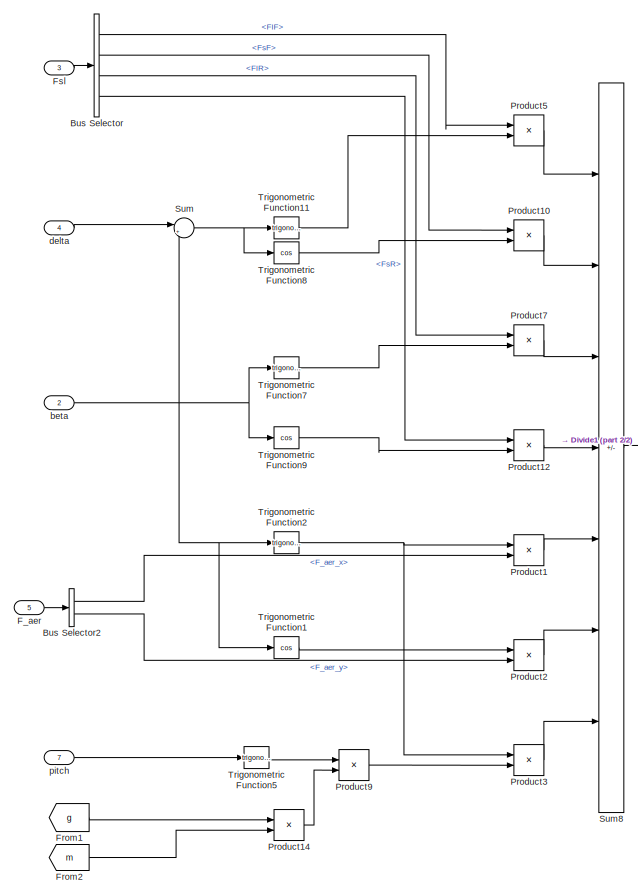
[diagram: Dynamics/SingleTrackModel_linear/vehicle_model/body_chassis_vert/horizontal/betap - part 1/2, left side, full height]
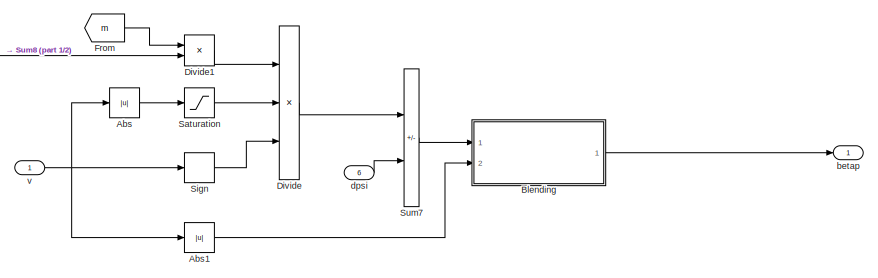
[diagram: Dynamics/SingleTrackModel_linear/vehicle_model/body_chassis_vert/horizontal/betap - part 2/2, middle right region]
BLOCK [SubSystem] Dynamics/SingleTrackModel_linear/vehicle_model/body_chassis_vert/horizontal/betap
  Ports = [7, 1]
  RequestExecContextInheritance = off
BLOCK [Abs] Dynamics/SingleTrackModel_linear/vehicle_model/body_chassis_vert/horizontal/betap/Abs
  SaturateOnIntegerOverflow = off
BLOCK [Abs] Dynamics/SingleTrackModel_linear/vehicle_model/body_chassis_vert/horizontal/betap/Abs1
  SaturateOnIntegerOverflow = off
BLOCK [SubSystem] Dynamics/SingleTrackModel_linear/vehicle_model/body_chassis_vert/horizontal/betap/Blending
  Ports = [2, 1]
  RequestExecContextInheritance = off
BLOCK [Bias] Dynamics/SingleTrackModel_linear/vehicle_model/body_chassis_vert/horizontal/betap/Blending/Bias
  Bias = 1
  SaturateOnIntegerOverflow = off
BLOCK [Bias] Dynamics/SingleTrackModel_linear/vehicle_model/body_chassis_vert/horizontal/betap/Blending/Bias1
  Bias = -2*pi
  SaturateOnIntegerOverflow = off
BLOCK [Gain] Dynamics/SingleTrackModel_linear/vehicle_model/body_chassis_vert/horizontal/betap/Blending/Gain
  Gain = 2*pi*0.5
BLOCK [Gain] Dynamics/SingleTrackModel_linear/vehicle_model/body_chassis_vert/horizontal/betap/Blending/Gain1
  Gain = 0.5
BLOCK [Product] Dynamics/SingleTrackModel_linear/vehicle_model/body_chassis_vert/horizontal/betap/Blending/Product
  Ports = [2, 1]
  RndMeth = Zero
BLOCK [Trigonometry] Dynamics/SingleTrackModel_linear/vehicle_model/body_chassis_vert/horizontal/betap/Blending/Trigonometric Function
  Operator = tanh
  Ports = [1, 1]
BLOCK [Inport] Dynamics/SingleTrackModel_linear/vehicle_model/body_chassis_vert/horizontal/betap/Blending/absVx
  Port = 2
BLOCK [Inport] Dynamics/SingleTrackModel_linear/vehicle_model/body_chassis_vert/horizontal/betap/Blending/betapin
BLOCK [Outport] Dynamics/SingleTrackModel_linear/vehicle_model/body_chassis_vert/horizontal/betap/Blending/betapout
  VectorParamsAs1DForOutWhenUnconnected = off
BLOCK [BusSelector] Dynamics/SingleTrackModel_linear/vehicle_model/body_chassis_vert/horizontal/betap/Bus Selector
  OutputSignals = Fl.FlF,Fs.FsF,Fl.FlR,Fs.FsR
  Ports = [1, 4]
BLOCK [BusSelector] Dynamics/SingleTrackModel_linear/vehicle_model/body_chassis_vert/horizontal/betap/Bus Selector2
  OutputSignals = F_aer_x,F_aer_y
  Ports = [1, 2]
BLOCK [Product] Dynamics/SingleTrackModel_linear/vehicle_model/body_chassis_vert/horizontal/betap/Divide
  Inputs = */*
  Ports = [3, 1]
BLOCK [Product] Dynamics/SingleTrackModel_linear/vehicle_model/body_chassis_vert/horizontal/betap/Divide1
  Inputs = /*
  Ports = [2, 1]
BLOCK [Inport] Dynamics/SingleTrackModel_linear/vehicle_model/body_chassis_vert/horizontal/betap/F_aer
  Port = 5
BLOCK [From] Dynamics/SingleTrackModel_linear/vehicle_model/body_chassis_vert/horizontal/betap/From
  GotoTag = m
  TagVisibility = scoped
BLOCK [From] Dynamics/SingleTrackModel_linear/vehicle_model/body_chassis_vert/horizontal/betap/From1
  GotoTag = g
  TagVisibility = scoped
BLOCK [From] Dynamics/SingleTrackModel_linear/vehicle_model/body_chassis_vert/horizontal/betap/From2
  GotoTag = m
  TagVisibility = scoped
BLOCK [Inport] Dynamics/SingleTrackModel_linear/vehicle_model/body_chassis_vert/horizontal/betap/Fsl
  Port = 3
BLOCK [Product] Dynamics/SingleTrackModel_linear/vehicle_model/body_chassis_vert/horizontal/betap/Product1
  Ports = [2, 1]
  RndMeth = Zero
BLOCK [Product] Dynamics/SingleTrackModel_linear/vehicle_model/body_chassis_vert/horizontal/betap/Product10
  Ports = [2, 1]
  RndMeth = Zero
BLOCK [Product] Dynamics/SingleTrackModel_linear/vehicle_model/body_chassis_vert/horizontal/betap/Product12
  Ports = [2, 1]
  RndMeth = Zero
BLOCK [Product] Dynamics/SingleTrackModel_linear/vehicle_model/body_chassis_vert/horizontal/betap/Product14
  Ports = [2, 1]
  RndMeth = Zero
BLOCK [Product] Dynamics/SingleTrackModel_linear/vehicle_model/body_chassis_vert/horizontal/betap/Product2
  Ports = [2, 1]
  RndMeth = Zero
BLOCK [Product] Dynamics/SingleTrackModel_linear/vehicle_model/body_chassis_vert/horizontal/betap/Product3
  Ports = [2, 1]
  RndMeth = Zero
BLOCK [Product] Dynamics/SingleTrackModel_linear/vehicle_model/body_chassis_vert/horizontal/betap/Product5
  Ports = [2, 1]
  RndMeth = Zero
BLOCK [Product] Dynamics/SingleTrackModel_linear/vehicle_model/body_chassis_vert/horizontal/betap/Product7
  Ports = [2, 1]
  RndMeth = Zero
BLOCK [Product] Dynamics/SingleTrackModel_linear/vehicle_model/body_chassis_vert/horizontal/betap/Product9
  Ports = [2, 1]
  RndMeth = Zero
BLOCK [Saturate] Dynamics/SingleTrackModel_linear/vehicle_model/body_chassis_vert/horizontal/betap/Saturation
  LowerLimit = 0.5e-5
  UpperLimit = 1e10
BLOCK [Signum] Dynamics/SingleTrackModel_linear/vehicle_model/body_chassis_vert/horizontal/betap/Sign
BLOCK [Sum] Dynamics/SingleTrackModel_linear/vehicle_model/body_chassis_vert/horizontal/betap/Sum
  Inputs = |+-
  Ports = [2, 1]
BLOCK [Sum] Dynamics/SingleTrackModel_linear/vehicle_model/body_chassis_vert/horizontal/betap/Sum7
  IconShape = rectangular
  Inputs = +-
  Ports = [2, 1]
BLOCK [Sum] Dynamics/SingleTrackModel_linear/vehicle_model/body_chassis_vert/horizontal/betap/Sum8
  IconShape = rectangular
  Inputs = ++-++++
  Ports = [7, 1]
BLOCK [Trigonometry] Dynamics/SingleTrackModel_linear/vehicle_model/body_chassis_vert/horizontal/betap/Trigonometric Function1
  Operator = cos
  Ports = [1, 1]
BLOCK [Trigonometry] Dynamics/SingleTrackModel_linear/vehicle_model/body_chassis_vert/horizontal/betap/Trigonometric Function11
  Ports = [1, 1]
BLOCK [Trigonometry] Dynamics/SingleTrackModel_linear/vehicle_model/body_chassis_vert/horizontal/betap/Trigonometric Function2
  Ports = [1, 1]
BLOCK [Trigonometry] Dynamics/SingleTrackModel_linear/vehicle_model/body_chassis_vert/horizontal/betap/Trigonometric Function5
  Ports = [1, 1]
BLOCK [Trigonometry] Dynamics/SingleTrackModel_linear/vehicle_model/body_chassis_vert/horizontal/betap/Trigonometric Function7
  Ports = [1, 1]
BLOCK [Trigonometry] Dynamics/SingleTrackModel_linear/vehicle_model/body_chassis_vert/horizontal/betap/Trigonometric Function8
  Operator = cos
  Ports = [1, 1]
BLOCK [Trigonometry] Dynamics/SingleTrackModel_linear/vehicle_model/body_chassis_vert/horizontal/betap/Trigonometric Function9
  Operator = cos
  Ports = [1, 1]
BLOCK [Inport] Dynamics/SingleTrackModel_linear/vehicle_model/body_chassis_vert/horizontal/betap/beta
  Port = 2
BLOCK [Outport] Dynamics/SingleTrackModel_linear/vehicle_model/body_chassis_vert/horizontal/betap/betap
  VectorParamsAs1DForOutWhenUnconnected = off
BLOCK [Inport] Dynamics/SingleTrackModel_linear/vehicle_model/body_chassis_vert/horizontal/betap/delta
  NameLocation = top
  Port = 4
BLOCK [Inport] Dynamics/SingleTrackModel_linear/vehicle_model/body_chassis_vert/horizontal/betap/dpsi
  Port = 6
BLOCK [Inport] Dynamics/SingleTrackModel_linear/vehicle_model/body_chassis_vert/horizontal/betap/pitch
  Port = 7
BLOCK [Inport] Dynamics/SingleTrackModel_linear/vehicle_model/body_chassis_vert/horizontal/betap/v
  NameLocation = top
BLOCK [Inport] Dynamics/SingleTrackModel_linear/vehicle_model/body_chassis_vert/horizontal/delta
BLOCK [Inport] Dynamics/SingleTrackModel_linear/vehicle_model/body_chassis_vert/horizontal/init_pos
  Port = 5
BLOCK [Inport] Dynamics/SingleTrackModel_linear/vehicle_model/body_chassis_vert/horizontal/pitch_road
  Port = 7
BLOCK [Outport] Dynamics/SingleTrackModel_linear/vehicle_model/body_chassis_vert/horizontal/psi
  Port = 2
  VectorParamsAs1DForOutWhenUnconnected = off
BLOCK [SubSystem] Dynamics/SingleTrackModel_linear/vehicle_model/body_chassis_vert/horizontal/psipp
  Ports = [3, 1]
  RequestExecContextInheritance = off
BLOCK [BusSelector] Dynamics/SingleTrackModel_linear/vehicle_model/body_chassis_vert/horizontal/psipp/Bus Selector1
  OutputSignals = Fl.FlF,Fs.FsF,Fs.FsR
  Ports = [1, 3]
BLOCK [BusSelector] Dynamics/SingleTrackModel_linear/vehicle_model/body_chassis_vert/horizontal/psipp/Bus Selector2
  OutputSignals = F_aer_y
  Ports = [1, 1]
BLOCK [Product] Dynamics/SingleTrackModel_linear/vehicle_model/body_chassis_vert/horizontal/psipp/Divide
  Inputs = */
  Ports = [2, 1]
BLOCK [Inport] Dynamics/SingleTrackModel_linear/vehicle_model/body_chassis_vert/horizontal/psipp/F_aer
  Port = 3
BLOCK [Inport] Dynamics/SingleTrackModel_linear/vehicle_model/body_chassis_vert/horizontal/psipp/Fls
BLOCK [From] Dynamics/SingleTrackModel_linear/vehicle_model/body_chassis_vert/horizontal/psipp/From
  GotoTag = I_z
  TagVisibility = scoped
BLOCK [From] Dynamics/SingleTrackModel_linear/vehicle_model/body_chassis_vert/horizontal/psipp/From1
  GotoTag = lF
  TagVisibility = scoped
BLOCK [From] Dynamics/SingleTrackModel_linear/vehicle_model/body_chassis_vert/horizontal/psipp/From2
  GotoTag = lDP
  TagVisibility = scoped
BLOCK [From] Dynamics/SingleTrackModel_linear/vehicle_model/body_chassis_vert/horizontal/psipp/From6
  GotoTag = lR
  TagVisibility = scoped
BLOCK [Product] Dynamics/SingleTrackModel_linear/vehicle_model/body_chassis_vert/horizontal/psipp/Product17
  Ports = [2, 1]
  RndMeth = Zero
BLOCK [Product] Dynamics/SingleTrackModel_linear/vehicle_model/body_chassis_vert/horizontal/psipp/Product19
  Ports = [2, 1]
  RndMeth = Zero
BLOCK [Product] Dynamics/SingleTrackModel_linear/vehicle_model/body_chassis_vert/horizontal/psipp/Product23
  Ports = [2, 1]
  RndMeth = Zero
BLOCK [Product] Dynamics/SingleTrackModel_linear/vehicle_model/body_chassis_vert/horizontal/psipp/Product34
  Ports = [2, 1]
  RndMeth = Zero
BLOCK [Product] Dynamics/SingleTrackModel_linear/vehicle_model/body_chassis_vert/horizontal/psipp/Product5
  Ports = [2, 1]
  RndMeth = Zero
BLOCK [Product] Dynamics/SingleTrackModel_linear/vehicle_model/body_chassis_vert/horizontal/psipp/Product7
  Ports = [2, 1]
  RndMeth = Zero
BLOCK [Sum] Dynamics/SingleTrackModel_linear/vehicle_model/body_chassis_vert/horizontal/psipp/Sum
  IconShape = rectangular
  Inputs = ++--
  Ports = [4, 1]
BLOCK [Trigonometry] Dynamics/SingleTrackModel_linear/vehicle_model/body_chassis_vert/horizontal/psipp/Trigonometric Function5
  Ports = [1, 1]
BLOCK [Trigonometry] Dynamics/SingleTrackModel_linear/vehicle_model/body_chassis_vert/horizontal/psipp/Trigonometric Function6
  Operator = cos
  Ports = [1, 1]
BLOCK [Inport] Dynamics/SingleTrackModel_linear/vehicle_model/body_chassis_vert/horizontal/psipp/delta
  Port = 2
BLOCK [Outport] Dynamics/SingleTrackModel_linear/vehicle_model/body_chassis_vert/horizontal/psipp/psipp
  VectorParamsAs1DForOutWhenUnconnected = off
BLOCK [Inport] Dynamics/SingleTrackModel_linear/vehicle_model/body_chassis_vert/horizontal/rho_air
  Port = 4
BLOCK [Outport] Dynamics/SingleTrackModel_linear/vehicle_model/body_chassis_vert/horizontal/v_abs
  Port = 3
  VectorParamsAs1DForOutWhenUnconnected = off
BLOCK [Inport] Dynamics/SingleTrackModel_linear/vehicle_model/body_chassis_vert/horizontal/v_wind
  Port = 6
BLOCK [Outport] Dynamics/SingleTrackModel_linear/vehicle_model/body_chassis_vert/horizontal/vx
  Port = 6
  VectorParamsAs1DForOutWhenUnconnected = off
BLOCK [Outport] Dynamics/SingleTrackModel_linear/vehicle_model/body_chassis_vert/horizontal/vy
  Port = 7
  VectorParamsAs1DForOutWhenUnconnected = off
BLOCK [SubSystem] Dynamics/SingleTrackModel_linear/vehicle_model/body_chassis_vert/horizontal/xy_kos
  Ports = [5, 4]
  RequestExecContextInheritance = off
BLOCK [Product] Dynamics/SingleTrackModel_linear/vehicle_model/body_chassis_vert/horizontal/xy_kos/Product
  Ports = [2, 1]
  RndMeth = Zero
BLOCK [Product] Dynamics/SingleTrackModel_linear/vehicle_model/body_chassis_vert/horizontal/xy_kos/Product1
  Ports = [2, 1]
  RndMeth = Zero
BLOCK [Product] Dynamics/SingleTrackModel_linear/vehicle_model/body_chassis_vert/horizontal/xy_kos/Product2
  Ports = [2, 1]
  RndMeth = Zero
BLOCK [Product] Dynamics/SingleTrackModel_linear/vehicle_model/body_chassis_vert/horizontal/xy_kos/Product3
  Ports = [2, 1]
  RndMeth = Zero
BLOCK [Product] Dynamics/SingleTrackModel_linear/vehicle_model/body_chassis_vert/horizontal/xy_kos/Product4
  Ports = [2, 1]
  RndMeth = Zero
BLOCK [Product] Dynamics/SingleTrackModel_linear/vehicle_model/body_chassis_vert/horizontal/xy_kos/Product5
  Ports = [2, 1]
  RndMeth = Zero
BLOCK [Product] Dynamics/SingleTrackModel_linear/vehicle_model/body_chassis_vert/horizontal/xy_kos/Product6
  Ports = [2, 1]
  RndMeth = Zero
BLOCK [Sum] Dynamics/SingleTrackModel_linear/vehicle_model/body_chassis_vert/horizontal/xy_kos/Sum
  IconShape = rectangular
  Ports = [2, 1]
BLOCK [Sum] Dynamics/SingleTrackModel_linear/vehicle_model/body_chassis_vert/horizontal/xy_kos/Sum1
  IconShape = rectangular
  Inputs = -+
  Ports = [2, 1]
BLOCK [Sum] Dynamics/SingleTrackModel_linear/vehicle_model/body_chassis_vert/horizontal/xy_kos/Sum2
  IconShape = rectangular
  Ports = [2, 1]
BLOCK [Trigonometry] Dynamics/SingleTrackModel_linear/vehicle_model/body_chassis_vert/horizontal/xy_kos/Trigonometric Function
  Operator = cos
  Ports = [1, 1]
BLOCK [Trigonometry] Dynamics/SingleTrackModel_linear/vehicle_model/body_chassis_vert/horizontal/xy_kos/Trigonometric Function1
  Ports = [1, 1]
BLOCK [Outport] Dynamics/SingleTrackModel_linear/vehicle_model/body_chassis_vert/horizontal/xy_kos/ax
  VectorParamsAs1DForOutWhenUnconnected = off
BLOCK [Outport] Dynamics/SingleTrackModel_linear/vehicle_model/body_chassis_vert/horizontal/xy_kos/ay
  Port = 2
  VectorParamsAs1DForOutWhenUnconnected = off
BLOCK [Inport] Dynamics/SingleTrackModel_linear/vehicle_model/body_chassis_vert/horizontal/xy_kos/beta
  Port = 3
BLOCK [Inport] Dynamics/SingleTrackModel_linear/vehicle_model/body_chassis_vert/horizontal/xy_kos/betap
  Port = 4
BLOCK [Inport] Dynamics/SingleTrackModel_linear/vehicle_model/body_chassis_vert/horizontal/xy_kos/dv
BLOCK [Inport] Dynamics/SingleTrackModel_linear/vehicle_model/body_chassis_vert/horizontal/xy_kos/psip
  Port = 5
BLOCK [Inport] Dynamics/SingleTrackModel_linear/vehicle_model/body_chassis_vert/horizontal/xy_kos/v
  Port = 2
BLOCK [Outport] Dynamics/SingleTrackModel_linear/vehicle_model/body_chassis_vert/horizontal/xy_kos/vx
  Port = 3
  VectorParamsAs1DForOutWhenUnconnected = off
BLOCK [Outport] Dynamics/SingleTrackModel_linear/vehicle_model/body_chassis_vert/horizontal/xy_kos/vy
  Port = 4
  VectorParamsAs1DForOutWhenUnconnected = off
BLOCK [Inport] Dynamics/SingleTrackModel_linear/vehicle_model/body_chassis_vert/init_pos
  Port = 6
BLOCK [Outport] Dynamics/SingleTrackModel_linear/vehicle_model/body_chassis_vert/psi
  Port = 5
  VectorParamsAs1DForOutWhenUnconnected = off
BLOCK [Inport] Dynamics/SingleTrackModel_linear/vehicle_model/body_chassis_vert/rho_air
  Port = 2
BLOCK [SubSystem] Dynamics/SingleTrackModel_linear/vehicle_model/body_chassis_vert/road_orientation
  Ports = [1, 1]
  RequestExecContextInheritance = off
BLOCK [BusSelector] Dynamics/SingleTrackModel_linear/vehicle_model/body_chassis_vert/road_orientation/Bus Selector1
  OutputSignals = zroad_F,zroad_R
  Ports = [1, 2]
BLOCK [Product] Dynamics/SingleTrackModel_linear/vehicle_model/body_chassis_vert/road_orientation/Divide8
  Inputs = */
  Ports = [2, 1]
BLOCK [From] Dynamics/SingleTrackModel_linear/vehicle_model/body_chassis_vert/road_orientation/From5
  GotoTag = l
  TagVisibility = scoped
BLOCK [Sum] Dynamics/SingleTrackModel_linear/vehicle_model/body_chassis_vert/road_orientation/Subtract20
  IconShape = rectangular
  Inputs = +-
  Ports = [2, 1]
BLOCK [Trigonometry] Dynamics/SingleTrackModel_linear/vehicle_model/body_chassis_vert/road_orientation/Trigonometric Function
  Operator = asin
  Ports = [1, 1]
BLOCK [Outport] Dynamics/SingleTrackModel_linear/vehicle_model/body_chassis_vert/road_orientation/theta_road
  VectorParamsAs1DForOutWhenUnconnected = off
BLOCK [Inport] Dynamics/SingleTrackModel_linear/vehicle_model/body_chassis_vert/road_orientation/zroad
BLOCK [SubSystem] Dynamics/SingleTrackModel_linear/vehicle_model/body_chassis_vert/transformation
  Ports = [4, 2]
  RequestExecContextInheritance = off
BLOCK [BusCreator] Dynamics/SingleTrackModel_linear/vehicle_model/body_chassis_vert/transformation/Bus Creator1
  DisplayOption = bar
  InheritFromInputs = on
  Inputs = 2
  Ports = [2, 1]
BLOCK [BusCreator] Dynamics/SingleTrackModel_linear/vehicle_model/body_chassis_vert/transformation/Bus Creator2
  DisplayOption = bar
  InheritFromInputs = on
  Inputs = 2
  Ports = [2, 1]
BLOCK [Inport] Dynamics/SingleTrackModel_linear/vehicle_model/body_chassis_vert/transformation/ax
BLOCK [Outport] Dynamics/SingleTrackModel_linear/vehicle_model/body_chassis_vert/transformation/axy
  VectorParamsAs1DForOutWhenUnconnected = off
BLOCK [Inport] Dynamics/SingleTrackModel_linear/vehicle_model/body_chassis_vert/transformation/ay
  Port = 2
BLOCK [Inport] Dynamics/SingleTrackModel_linear/vehicle_model/body_chassis_vert/transformation/vx
  Port = 3
BLOCK [Outport] Dynamics/SingleTrackModel_linear/vehicle_model/body_chassis_vert/transformation/vxy
  Port = 2
  VectorParamsAs1DForOutWhenUnconnected = off
BLOCK [Inport] Dynamics/SingleTrackModel_linear/vehicle_model/body_chassis_vert/transformation/vy
  Port = 4
BLOCK [Inport] Dynamics/SingleTrackModel_linear/vehicle_model/body_chassis_vert/v_wind
BLOCK [Outport] Dynamics/SingleTrackModel_linear/vehicle_model/body_chassis_vert/vabs
  Port = 6
  VectorParamsAs1DForOutWhenUnconnected = off
BLOCK [SubSystem] Dynamics/SingleTrackModel_linear/vehicle_model/body_chassis_vert/vertical
  Ports = [0, 1]
  RequestExecContextInheritance = off
BLOCK [BusCreator] Dynamics/SingleTrackModel_linear/vehicle_model/body_chassis_vert/vertical/Bus Creator1
  DisplayOption = bar
  InheritFromInputs = on
  Inputs = 2
  Ports = [2, 1]
BLOCK [Product] Dynamics/SingleTrackModel_linear/vehicle_model/body_chassis_vert/vertical/Divide
  Inputs = **/
  Ports = [3, 1]
BLOCK [Outport] Dynamics/SingleTrackModel_linear/vehicle_model/body_chassis_vert/vertical/F_vert
  VectorParamsAs1DForOutWhenUnconnected = off
BLOCK [From] Dynamics/SingleTrackModel_linear/vehicle_model/body_chassis_vert/vertical/From1
  GotoTag = l
  TagVisibility = scoped
BLOCK [From] Dynamics/SingleTrackModel_linear/vehicle_model/body_chassis_vert/vertical/From2
  GotoTag = lR
  TagVisibility = scoped
BLOCK [From] Dynamics/SingleTrackModel_linear/vehicle_model/body_chassis_vert/vertical/From3
  GotoTag = lF
  TagVisibility = scoped
BLOCK [From] Dynamics/SingleTrackModel_linear/vehicle_model/body_chassis_vert/vertical/From5
  GotoTag = g
  TagVisibility = scoped
BLOCK [From] Dynamics/SingleTrackModel_linear/vehicle_model/body_chassis_vert/vertical/From6
  GotoTag = m
  TagVisibility = scoped
BLOCK [Product] Dynamics/SingleTrackModel_linear/vehicle_model/body_chassis_vert/vertical/Product1
  Ports = [2, 1]
  RndMeth = Zero
BLOCK [Product] Dynamics/SingleTrackModel_linear/vehicle_model/body_chassis_vert/vertical/Product3
  Ports = [2, 1]
  RndMeth = Zero
BLOCK [SignalConversion] Dynamics/SingleTrackModel_linear/vehicle_model/body_chassis_vert/vertical/Signal Conversion2
  OverrideOpt = off
BLOCK [SignalConversion] Dynamics/SingleTrackModel_linear/vehicle_model/body_chassis_vert/vertical/Signal Conversion3
  OverrideOpt = off
BLOCK [Outport] Dynamics/SingleTrackModel_linear/vehicle_model/body_chassis_vert/vxy
  Port = 2
  VectorParamsAs1DForOutWhenUnconnected = off
BLOCK [Inport] Dynamics/SingleTrackModel_linear/vehicle_model/body_chassis_vert/z_road
  Port = 7
BLOCK [Inport] Dynamics/SingleTrackModel_linear/vehicle_model/c_alpha_F
  Port = 10
BLOCK [Inport] Dynamics/SingleTrackModel_linear/vehicle_model/c_alpha_R
  Port = 11
BLOCK [SubSystem] Dynamics/SingleTrackModel_linear/vehicle_model/calc_init
  Ports = [1, 1]
  RequestExecContextInheritance = off
BLOCK [BusCreator] Dynamics/SingleTrackModel_linear/vehicle_model/calc_init/Bus Creator
  DisplayOption = bar
  InheritFromInputs = on
  Inputs = 9
  Ports = [9, 1]
BLOCK [BusSelector] Dynamics/SingleTrackModel_linear/vehicle_model/calc_init/Bus Selector
  OutputSignals = init_x0,init_y0,init_psi,zroad_RF0,zroad_LF0,zroad_RR0,zroad_LR0
  Ports = [1, 7]
BLOCK [Inport] Dynamics/SingleTrackModel_linear/vehicle_model/calc_init/init_pos
BLOCK [Outport] Dynamics/SingleTrackModel_linear/vehicle_model/calc_init/init_pos_complete
  VectorParamsAs1DForOutWhenUnconnected = off
BLOCK [SubSystem] Dynamics/SingleTrackModel_linear/vehicle_model/calc_init/pitch
  Ports = [1, 1]
  RequestExecContextInheritance = off
BLOCK [Sum] Dynamics/SingleTrackModel_linear/vehicle_model/calc_init/pitch/Add
  IconShape = rectangular
  Ports = [2, 1]
BLOCK [Sum] Dynamics/SingleTrackModel_linear/vehicle_model/calc_init/pitch/Add1
  IconShape = rectangular
  Ports = [2, 1]
BLOCK [Sum] Dynamics/SingleTrackModel_linear/vehicle_model/calc_init/pitch/Add2
  IconShape = rectangular
  Inputs = +-
  Ports = [2, 1]
BLOCK [BusSelector] Dynamics/SingleTrackModel_linear/vehicle_model/calc_init/pitch/Bus Selector
  OutputSignals = zroad_RF0,zroad_LF0,zroad_RR0,zroad_LR0
  Ports = [1, 4]
BLOCK [Product] Dynamics/SingleTrackModel_linear/vehicle_model/calc_init/pitch/Divide
  Inputs = */
  Ports = [2, 1]
BLOCK [From] Dynamics/SingleTrackModel_linear/vehicle_model/calc_init/pitch/From1
  GotoTag = l
  TagVisibility = scoped
BLOCK [Gain] Dynamics/SingleTrackModel_linear/vehicle_model/calc_init/pitch/Gain
  Gain = 0.5
BLOCK [Gain] Dynamics/SingleTrackModel_linear/vehicle_model/calc_init/pitch/Gain1
  Gain = 0.5
BLOCK [Trigonometry] Dynamics/SingleTrackModel_linear/vehicle_model/calc_init/pitch/Trigonometric Function
  Operator = atan
  Ports = [1, 1]
BLOCK [Inport] Dynamics/SingleTrackModel_linear/vehicle_model/calc_init/pitch/init_pos
BLOCK [Outport] Dynamics/SingleTrackModel_linear/vehicle_model/calc_init/pitch/init_theta
  VectorParamsAs1DForOutWhenUnconnected = off
BLOCK [SubSystem] Dynamics/SingleTrackModel_linear/vehicle_model/calc_init/vertical
  Ports = [2, 1]
  RequestExecContextInheritance = off
BLOCK [Sum] Dynamics/SingleTrackModel_linear/vehicle_model/calc_init/vertical/Add
  IconShape = rectangular
  Ports = [2, 1]
BLOCK [Sum] Dynamics/SingleTrackModel_linear/vehicle_model/calc_init/vertical/Add1
  IconShape = rectangular
  Ports = [2, 1]
BLOCK [BusSelector] Dynamics/SingleTrackModel_linear/vehicle_model/calc_init/vertical/Bus Selector
  OutputSignals = zroad_RF0,zroad_LF0
  Ports = [1, 2]
BLOCK [From] Dynamics/SingleTrackModel_linear/vehicle_model/calc_init/vertical/From
  GotoTag = lF
  TagVisibility = scoped
BLOCK [Gain] Dynamics/SingleTrackModel_linear/vehicle_model/calc_init/vertical/Gain
  Gain = 0.5
BLOCK [Product] Dynamics/SingleTrackModel_linear/vehicle_model/calc_init/vertical/Product
  Ports = [2, 1]
  RndMeth = Zero
BLOCK [Trigonometry] Dynamics/SingleTrackModel_linear/vehicle_model/calc_init/vertical/Trigonometric Function
  Ports = [1, 1]
BLOCK [Inport] Dynamics/SingleTrackModel_linear/vehicle_model/calc_init/vertical/init_pos
BLOCK [Outport] Dynamics/SingleTrackModel_linear/vehicle_model/calc_init/vertical/init_z0
  VectorParamsAs1DForOutWhenUnconnected = off
BLOCK [Inport] Dynamics/SingleTrackModel_linear/vehicle_model/calc_init/vertical/theta
  Port = 2
BLOCK [Inport] Dynamics/SingleTrackModel_linear/vehicle_model/m_vehicle
  Port = 9
BLOCK [From] Dynamics/SingleTrackModel_linear/vehicle_model/omega
  GotoTag = omega_out
BLOCK [From] Dynamics/SingleTrackModel_linear/vehicle_model/omega1
  GotoTag = Fl
BLOCK [From] Dynamics/SingleTrackModel_linear/vehicle_model/omega12
  GotoTag = init_pos_complete
BLOCK [From] Dynamics/SingleTrackModel_linear/vehicle_model/omega13
  GotoTag = init_pos_complete
BLOCK [From] Dynamics/SingleTrackModel_linear/vehicle_model/omega19
  GotoTag = My
BLOCK [From] Dynamics/SingleTrackModel_linear/vehicle_model/omega2
  GotoTag = Fz
BLOCK [From] Dynamics/SingleTrackModel_linear/vehicle_model/omega25
  GotoTag = alpha
BLOCK [From] Dynamics/SingleTrackModel_linear/vehicle_model/omega27
  GotoTag = r_dyn
BLOCK [From] Dynamics/SingleTrackModel_linear/vehicle_model/omega3
  GotoTag = vl
BLOCK [From] Dynamics/SingleTrackModel_linear/vehicle_model/omega4
  GotoTag = Fs
BLOCK [From] Dynamics/SingleTrackModel_linear/vehicle_model/omega5
  GotoTag = rhoair
  TagVisibility = scoped
BLOCK [From] Dynamics/SingleTrackModel_linear/vehicle_model/omega6
  GotoTag = r_stat
BLOCK [Outport] Dynamics/SingleTrackModel_linear/vehicle_model/r_dyn
  Port = 7
  VectorParamsAs1DForOutWhenUnconnected = off
BLOCK [Outport] Dynamics/SingleTrackModel_linear/vehicle_model/r_stat// Static Wheel Radii [m]
  Port = 8
  VectorParamsAs1DForOutWhenUnconnected = off
BLOCK [Inport] Dynamics/SingleTrackModel_linear/vehicle_model/reset
  Port = 8
BLOCK [Outport] Dynamics/SingleTrackModel_linear/vehicle_model/v_abs
  Port = 13
  VectorParamsAs1DForOutWhenUnconnected = off
BLOCK [Outport] Dynamics/SingleTrackModel_linear/vehicle_model/vl
  Port = 2
  VectorParamsAs1DForOutWhenUnconnected = off
BLOCK [SubSystem] Dynamics/SingleTrackModel_linear/vehicle_model/wheel
  Ports = [8, 10]
  RequestExecContextInheritance = off
BLOCK [Outport] Dynamics/SingleTrackModel_linear/vehicle_model/wheel/Fl
  VectorParamsAs1DForOutWhenUnconnected = off
BLOCK [Outport] Dynamics/SingleTrackModel_linear/vehicle_model/wheel/Fs
  Port = 2
  VectorParamsAs1DForOutWhenUnconnected = off
BLOCK [Inport] Dynamics/SingleTrackModel_linear/vehicle_model/wheel/Fzt
  Port = 8
BLOCK [Inport] Dynamics/SingleTrackModel_linear/vehicle_model/wheel/M_antr
BLOCK [Inport] Dynamics/SingleTrackModel_linear/vehicle_model/wheel/M_brems
  Port = 2
BLOCK [Outport] Dynamics/SingleTrackModel_linear/vehicle_model/wheel/My
  Port = 7
  VectorParamsAs1DForOutWhenUnconnected = off
BLOCK [Inport] Dynamics/SingleTrackModel_linear/vehicle_model/wheel/TIR_parameter
  Port = 4
BLOCK [SubSystem] Dynamics/SingleTrackModel_linear/vehicle_model/wheel/Tire Model
  Ports = [8, 6]
  RequestExecContextInheritance = off
BLOCK [BusCreator] Dynamics/SingleTrackModel_linear/vehicle_model/wheel/Tire Model/Bus Creator13
  DisplayOption = bar
  InheritFromInputs = on
  Inputs = 2
  Ports = [2, 1]
BLOCK [BusCreator] Dynamics/SingleTrackModel_linear/vehicle_model/wheel/Tire Model/Bus Creator14
  DisplayOption = bar
  InheritFromInputs = on
  Inputs = 2
  Ports = [2, 1]
BLOCK [BusCreator] Dynamics/SingleTrackModel_linear/vehicle_model/wheel/Tire Model/Bus Creator15
  DisplayOption = bar
  InheritFromInputs = on
  Inputs = 2
  Ports = [2, 1]
BLOCK [BusCreator] Dynamics/SingleTrackModel_linear/vehicle_model/wheel/Tire Model/Bus Creator16
  DisplayOption = bar
  InheritFromInputs = on
  Inputs = 2
  Ports = [2, 1]
BLOCK [BusCreator] Dynamics/SingleTrackModel_linear/vehicle_model/wheel/Tire Model/Bus Creator17
  DisplayOption = bar
  InheritFromInputs = on
  Inputs = 2
  Ports = [2, 1]
BLOCK [BusCreator] Dynamics/SingleTrackModel_linear/vehicle_model/wheel/Tire Model/Bus Creator19
  DisplayOption = bar
  InheritFromInputs = on
  Inputs = 2
  Ports = [2, 1]
BLOCK [BusSelector] Dynamics/SingleTrackModel_linear/vehicle_model/wheel/Tire Model/Bus Selector
  OutputSignals = YawAngleVelocityPsip [rad/s]
  Ports = [1, 1]
BLOCK [BusSelector] Dynamics/SingleTrackModel_linear/vehicle_model/wheel/Tire Model/Bus Selector1
  OutputSignals = front,rear
  Ports = [1, 2]
BLOCK [BusSelector] Dynamics/SingleTrackModel_linear/vehicle_model/wheel/Tire Model/Bus Selector11
  OutputSignals = M_brems_F,M_brems_R
  Ports = [1, 2]
BLOCK [BusSelector] Dynamics/SingleTrackModel_linear/vehicle_model/wheel/Tire Model/Bus Selector12
  OutputSignals = M_antr_F,M_antr_R
  Ports = [1, 2]
BLOCK [BusSelector] Dynamics/SingleTrackModel_linear/vehicle_model/wheel/Tire Model/Bus Selector2
  OutputSignals = SideSlipAngleBeta [rad]
  Ports = [1, 1]
BLOCK [BusSelector] Dynamics/SingleTrackModel_linear/vehicle_model/wheel/Tire Model/Bus Selector5
  OutputSignals = F_F,F_R
  Ports = [1, 2]
BLOCK [SubSystem] Dynamics/SingleTrackModel_linear/vehicle_model/wheel/Tire Model/F
  Ports = [8, 6]
  RequestExecContextInheritance = off
BLOCK [BusSelector] Dynamics/SingleTrackModel_linear/vehicle_model/wheel/Tire Model/F/Bus Selector1
  OutputSignals = UNLOADED_RADIUS
  Ports = [1, 1]
BLOCK [Outport] Dynamics/SingleTrackModel_linear/vehicle_model/wheel/Tire Model/F/Fx
  VectorParamsAs1DForOutWhenUnconnected = off
BLOCK [Outport] Dynamics/SingleTrackModel_linear/vehicle_model/wheel/Tire Model/F/Fy
  Port = 2
  VectorParamsAs1DForOutWhenUnconnected = off
BLOCK [Inport] Dynamics/SingleTrackModel_linear/vehicle_model/wheel/Tire Model/F/Fz
BLOCK [Inport] Dynamics/SingleTrackModel_linear/vehicle_model/wheel/Tire Model/F/M_antr
  Port = 3
BLOCK [Inport] Dynamics/SingleTrackModel_linear/vehicle_model/wheel/Tire Model/F/M_brems
  Port = 2
BLOCK [Outport] Dynamics/SingleTrackModel_linear/vehicle_model/wheel/Tire Model/F/My
  Port = 3
  VectorParamsAs1DForOutWhenUnconnected = off
BLOCK [Saturate] Dynamics/SingleTrackModel_linear/vehicle_model/wheel/Tire Model/F/Saturation
  LowerLimit = 0.001
  UpperLimit = 99999999
BLOCK [Inport] Dynamics/SingleTrackModel_linear/vehicle_model/wheel/Tire Model/F/TIR_parameter
  Port = 8
BLOCK [Outport] Dynamics/SingleTrackModel_linear/vehicle_model/wheel/Tire Model/F/alpha
  Port = 4
  VectorParamsAs1DForOutWhenUnconnected = off
BLOCK [Inport] Dynamics/SingleTrackModel_linear/vehicle_model/wheel/Tire Model/F/beta
  Port = 5
BLOCK [SubSystem] Dynamics/SingleTrackModel_linear/vehicle_model/wheel/Tire Model/F/calc_ALPHA
  Ports = [4, 1]
  RequestExecContextInheritance = off
BLOCK [Outport] Dynamics/SingleTrackModel_linear/vehicle_model/wheel/Tire Model/F/calc_ALPHA/ALPHA
  VectorParamsAs1DForOutWhenUnconnected = off
BLOCK [Abs] Dynamics/SingleTrackModel_linear/vehicle_model/wheel/Tire Model/F/calc_ALPHA/Abs2
  SaturateOnIntegerOverflow = off
BLOCK [Sum] Dynamics/SingleTrackModel_linear/vehicle_model/wheel/Tire Model/F/calc_ALPHA/Add
  IconShape = rectangular
  Inputs = +--
  Ports = [3, 1]
BLOCK [Constant] Dynamics/SingleTrackModel_linear/vehicle_model/wheel/Tire Model/F/calc_ALPHA/Constant1
  Value = 0
BLOCK [Product] Dynamics/SingleTrackModel_linear/vehicle_model/wheel/Tire Model/F/calc_ALPHA/Divide1
  Inputs = **/
  Ports = [3, 1]
BLOCK [From] Dynamics/SingleTrackModel_linear/vehicle_model/wheel/Tire Model/F/calc_ALPHA/From1
  GotoTag = lF
  TagVisibility = scoped
BLOCK [Switch] Dynamics/SingleTrackModel_linear/vehicle_model/wheel/Tire Model/F/calc_ALPHA/Switch2
  InputSameDT = off
  SaturateOnIntegerOverflow = off
  Threshold = 1
BLOCK [Inport] Dynamics/SingleTrackModel_linear/vehicle_model/wheel/Tire Model/F/calc_ALPHA/beta
  Port = 3
BLOCK [Inport] Dynamics/SingleTrackModel_linear/vehicle_model/wheel/Tire Model/F/calc_ALPHA/delta
  Port = 2
BLOCK [Inport] Dynamics/SingleTrackModel_linear/vehicle_model/wheel/Tire Model/F/calc_ALPHA/psip
  Port = 4
BLOCK [Inport] Dynamics/SingleTrackModel_linear/vehicle_model/wheel/Tire Model/F/calc_ALPHA/v
BLOCK [SubSystem] Dynamics/SingleTrackModel_linear/vehicle_model/wheel/Tire Model/F/calc_Fx_f
  Ports = [4, 1]
  RequestExecContextInheritance = off
BLOCK [Product] Dynamics/SingleTrackModel_linear/vehicle_model/wheel/Tire Model/F/calc_Fx_f/Divide
  Inputs = */
  Ports = [2, 1]
BLOCK [Outport] Dynamics/SingleTrackModel_linear/vehicle_model/wheel/Tire Model/F/calc_Fx_f/Fx_f
  VectorParamsAs1DForOutWhenUnconnected = off
BLOCK [Inport] Dynamics/SingleTrackModel_linear/vehicle_model/wheel/Tire Model/F/calc_Fx_f/M_antr
  Port = 3
BLOCK [Inport] Dynamics/SingleTrackModel_linear/vehicle_model/wheel/Tire Model/F/calc_Fx_f/M_brems
  Port = 2
BLOCK [Inport] Dynamics/SingleTrackModel_linear/vehicle_model/wheel/Tire Model/F/calc_Fx_f/M_reib
BLOCK [Sum] Dynamics/SingleTrackModel_linear/vehicle_model/wheel/Tire Model/F/calc_Fx_f/Sum
  Inputs = +++
  Ports = [3, 1]
BLOCK [Inport] Dynamics/SingleTrackModel_linear/vehicle_model/wheel/Tire Model/F/calc_Fx_f/r_dyn
  Port = 4
BLOCK [SubSystem] Dynamics/SingleTrackModel_linear/vehicle_model/wheel/Tire Model/F/calc_Fy_f
  Ports = [1, 1]
  RequestExecContextInheritance = off
BLOCK [From] Dynamics/SingleTrackModel_linear/vehicle_model/wheel/Tire Model/F/calc_Fy_f/From
  GotoTag = c_alpha_F
  TagVisibility = scoped
BLOCK [Outport] Dynamics/SingleTrackModel_linear/vehicle_model/wheel/Tire Model/F/calc_Fy_f/Fy_f
  VectorParamsAs1DForOutWhenUnconnected = off
BLOCK [Product] Dynamics/SingleTrackModel_linear/vehicle_model/wheel/Tire Model/F/calc_Fy_f/Product
  Ports = [2, 1]
BLOCK [Inport] Dynamics/SingleTrackModel_linear/vehicle_model/wheel/Tire Model/F/calc_Fy_f/alpha
BLOCK [SubSystem] Dynamics/SingleTrackModel_linear/vehicle_model/wheel/Tire Model/F/calc_My//M_reib
  Ports = [2, 1]
  RequestExecContextInheritance = off
BLOCK [Inport] Dynamics/SingleTrackModel_linear/vehicle_model/wheel/Tire Model/F/calc_My//M_reib/Fz
BLOCK [Gain] Dynamics/SingleTrackModel_linear/vehicle_model/wheel/Tire Model/F/calc_My//M_reib/Gain
  Gain = -1
BLOCK [Outport] Dynamics/SingleTrackModel_linear/vehicle_model/wheel/Tire Model/F/calc_My//M_reib/My
  VectorParamsAs1DForOutWhenUnconnected = off
BLOCK [Product] Dynamics/SingleTrackModel_linear/vehicle_model/wheel/Tire Model/F/calc_My//M_reib/Product
  Inputs = 3
  Ports = [3, 1]
BLOCK [Constant] Dynamics/SingleTrackModel_linear/vehicle_model/wheel/Tire Model/F/calc_My//M_reib/crr
  Value = 0.012
BLOCK [Inport] Dynamics/SingleTrackModel_linear/vehicle_model/wheel/Tire Model/F/calc_My//M_reib/r_dyn
  Port = 2
BLOCK [SubSystem] Dynamics/SingleTrackModel_linear/vehicle_model/wheel/Tire Model/F/calc_radius
  Ports = [1, 2]
  RequestExecContextInheritance = off
BLOCK [Gain] Dynamics/SingleTrackModel_linear/vehicle_model/wheel/Tire Model/F/calc_radius/Gain
  Gain = 0.95
BLOCK [Gain] Dynamics/SingleTrackModel_linear/vehicle_model/wheel/Tire Model/F/calc_radius/Gain1
  Gain = (59/60)
BLOCK [Inport] Dynamics/SingleTrackModel_linear/vehicle_model/wheel/Tire Model/F/calc_radius/UNLOADED_RADIUS
BLOCK [Outport] Dynamics/SingleTrackModel_linear/vehicle_model/wheel/Tire Model/F/calc_radius/r_dyn_F
  Port = 2
  VectorParamsAs1DForOutWhenUnconnected = off
BLOCK [Outport] Dynamics/SingleTrackModel_linear/vehicle_model/wheel/Tire Model/F/calc_radius/r_stat_F
  VectorParamsAs1DForOutWhenUnconnected = off
BLOCK [Inport] Dynamics/SingleTrackModel_linear/vehicle_model/wheel/Tire Model/F/delta
  Port = 4
BLOCK [Inport] Dynamics/SingleTrackModel_linear/vehicle_model/wheel/Tire Model/F/psip
  Port = 6
BLOCK [Outport] Dynamics/SingleTrackModel_linear/vehicle_model/wheel/Tire Model/F/r_dyn
  Port = 5
  VectorParamsAs1DForOutWhenUnconnected = off
BLOCK [Outport] Dynamics/SingleTrackModel_linear/vehicle_model/wheel/Tire Model/F/r_stat
  Port = 6
  VectorParamsAs1DForOutWhenUnconnected = off
BLOCK [Inport] Dynamics/SingleTrackModel_linear/vehicle_model/wheel/Tire Model/F/vabs
  Port = 7
BLOCK [Outport] Dynamics/SingleTrackModel_linear/vehicle_model/wheel/Tire Model/Fl
  Port = 2
  VectorParamsAs1DForOutWhenUnconnected = off
BLOCK [Outport] Dynamics/SingleTrackModel_linear/vehicle_model/wheel/Tire Model/Fs
  Port = 3
  VectorParamsAs1DForOutWhenUnconnected = off
BLOCK [Inport] Dynamics/SingleTrackModel_linear/vehicle_model/wheel/Tire Model/Fz
BLOCK [Gain] Dynamics/SingleTrackModel_linear/vehicle_model/wheel/Tire Model/Gain
  Gain = 2
BLOCK [Gain] Dynamics/SingleTrackModel_linear/vehicle_model/wheel/Tire Model/Gain1
  Gain = 2
BLOCK [Inport] Dynamics/SingleTrackModel_linear/vehicle_model/wheel/Tire Model/M_antr
  Port = 3
BLOCK [Inport] Dynamics/SingleTrackModel_linear/vehicle_model/wheel/Tire Model/M_brems
  Port = 2
BLOCK [Outport] Dynamics/SingleTrackModel_linear/vehicle_model/wheel/Tire Model/My
  Port = 4
  VectorParamsAs1DForOutWhenUnconnected = off
BLOCK [SubSystem] Dynamics/SingleTrackModel_linear/vehicle_model/wheel/Tire Model/R
  Ports = [7, 6]
  RequestExecContextInheritance = off
BLOCK [BusSelector] Dynamics/SingleTrackModel_linear/vehicle_model/wheel/Tire Model/R/Bus Selector1
  OutputSignals = UNLOADED_RADIUS
  Ports = [1, 1]
BLOCK [Outport] Dynamics/SingleTrackModel_linear/vehicle_model/wheel/Tire Model/R/Fx
  VectorParamsAs1DForOutWhenUnconnected = off
BLOCK [Outport] Dynamics/SingleTrackModel_linear/vehicle_model/wheel/Tire Model/R/Fy
  Port = 2
  VectorParamsAs1DForOutWhenUnconnected = off
BLOCK [Inport] Dynamics/SingleTrackModel_linear/vehicle_model/wheel/Tire Model/R/Fz
  Port = 4
BLOCK [Inport] Dynamics/SingleTrackModel_linear/vehicle_model/wheel/Tire Model/R/M_antr
  Port = 6
BLOCK [Inport] Dynamics/SingleTrackModel_linear/vehicle_model/wheel/Tire Model/R/M_brems
  Port = 5
BLOCK [Outport] Dynamics/SingleTrackModel_linear/vehicle_model/wheel/Tire Model/R/My
  Port = 3
  VectorParamsAs1DForOutWhenUnconnected = off
BLOCK [Saturate] Dynamics/SingleTrackModel_linear/vehicle_model/wheel/Tire Model/R/Saturation
  LowerLimit = 0.001
  UpperLimit = 99999999
BLOCK [Inport] Dynamics/SingleTrackModel_linear/vehicle_model/wheel/Tire Model/R/TIR_parameter
  Port = 7
BLOCK [Outport] Dynamics/SingleTrackModel_linear/vehicle_model/wheel/Tire Model/R/alpha
  Port = 4
  VectorParamsAs1DForOutWhenUnconnected = off
BLOCK [Inport] Dynamics/SingleTrackModel_linear/vehicle_model/wheel/Tire Model/R/beta
  Port = 3
BLOCK [SubSystem] Dynamics/SingleTrackModel_linear/vehicle_model/wheel/Tire Model/R/calc_ALPHA
  Ports = [3, 1]
  RequestExecContextInheritance = off
BLOCK [Outport] Dynamics/SingleTrackModel_linear/vehicle_model/wheel/Tire Model/R/calc_ALPHA/ALPHA
  VectorParamsAs1DForOutWhenUnconnected = off
BLOCK [Abs] Dynamics/SingleTrackModel_linear/vehicle_model/wheel/Tire Model/R/calc_ALPHA/Abs2
  SaturateOnIntegerOverflow = off
BLOCK [Sum] Dynamics/SingleTrackModel_linear/vehicle_model/wheel/Tire Model/R/calc_ALPHA/Add
  IconShape = rectangular
  Inputs = +-
  Ports = [2, 1]
BLOCK [Constant] Dynamics/SingleTrackModel_linear/vehicle_model/wheel/Tire Model/R/calc_ALPHA/Constant1
  Value = 0
BLOCK [Product] Dynamics/SingleTrackModel_linear/vehicle_model/wheel/Tire Model/R/calc_ALPHA/Divide1
  Inputs = **/
  Ports = [3, 1]
BLOCK [From] Dynamics/SingleTrackModel_linear/vehicle_model/wheel/Tire Model/R/calc_ALPHA/From1
  GotoTag = lR
  TagVisibility = scoped
BLOCK [Switch] Dynamics/SingleTrackModel_linear/vehicle_model/wheel/Tire Model/R/calc_ALPHA/Switch2
  InputSameDT = off
  SaturateOnIntegerOverflow = off
  Threshold = 1
BLOCK [Inport] Dynamics/SingleTrackModel_linear/vehicle_model/wheel/Tire Model/R/calc_ALPHA/beta
  Port = 2
BLOCK [Inport] Dynamics/SingleTrackModel_linear/vehicle_model/wheel/Tire Model/R/calc_ALPHA/psip
  Port = 3
BLOCK [Inport] Dynamics/SingleTrackModel_linear/vehicle_model/wheel/Tire Model/R/calc_ALPHA/v
BLOCK [SubSystem] Dynamics/SingleTrackModel_linear/vehicle_model/wheel/Tire Model/R/calc_Fx_r
  Ports = [4, 1]
  RequestExecContextInheritance = off
BLOCK [Product] Dynamics/SingleTrackModel_linear/vehicle_model/wheel/Tire Model/R/calc_Fx_r/Divide
  Inputs = */
  Ports = [2, 1]
BLOCK [Outport] Dynamics/SingleTrackModel_linear/vehicle_model/wheel/Tire Model/R/calc_Fx_r/Fx_r
  VectorParamsAs1DForOutWhenUnconnected = off
BLOCK [Inport] Dynamics/SingleTrackModel_linear/vehicle_model/wheel/Tire Model/R/calc_Fx_r/M_antr
  Port = 3
BLOCK [Inport] Dynamics/SingleTrackModel_linear/vehicle_model/wheel/Tire Model/R/calc_Fx_r/M_brems
  Port = 2
BLOCK [Inport] Dynamics/SingleTrackModel_linear/vehicle_model/wheel/Tire Model/R/calc_Fx_r/M_reib
BLOCK [Sum] Dynamics/SingleTrackModel_linear/vehicle_model/wheel/Tire Model/R/calc_Fx_r/Sum
  Inputs = +++
  Ports = [3, 1]
BLOCK [Inport] Dynamics/SingleTrackModel_linear/vehicle_model/wheel/Tire Model/R/calc_Fx_r/r_dyn
  Port = 4
BLOCK [SubSystem] Dynamics/SingleTrackModel_linear/vehicle_model/wheel/Tire Model/R/calc_Fy_r
  Ports = [1, 1]
  RequestExecContextInheritance = off
BLOCK [Constant] Dynamics/SingleTrackModel_linear/vehicle_model/wheel/Tire Model/R/calc_Fy_r/Constant
  Commented = on
  Value = c_alpha_rear_mean
BLOCK [From] Dynamics/SingleTrackModel_linear/vehicle_model/wheel/Tire Model/R/calc_Fy_r/From
  GotoTag = c_alpha_R
  TagVisibility = scoped
BLOCK [FromWorkspace] Dynamics/SingleTrackModel_linear/vehicle_model/wheel/Tire Model/R/calc_Fy_r/From Workspace
  Commented = on
  VariableName = c_alpha_rear
BLOCK [Outport] Dynamics/SingleTrackModel_linear/vehicle_model/wheel/Tire Model/R/calc_Fy_r/Fy_r
  VectorParamsAs1DForOutWhenUnconnected = off
BLOCK [Product] Dynamics/SingleTrackModel_linear/vehicle_model/wheel/Tire Model/R/calc_Fy_r/Product
  Ports = [2, 1]
BLOCK [Inport] Dynamics/SingleTrackModel_linear/vehicle_model/wheel/Tire Model/R/calc_Fy_r/alpha
BLOCK [SubSystem] Dynamics/SingleTrackModel_linear/vehicle_model/wheel/Tire Model/R/calc_My//M_reib
  Ports = [2, 1]
  RequestExecContextInheritance = off
BLOCK [Inport] Dynamics/SingleTrackModel_linear/vehicle_model/wheel/Tire Model/R/calc_My//M_reib/Fz
BLOCK [Gain] Dynamics/SingleTrackModel_linear/vehicle_model/wheel/Tire Model/R/calc_My//M_reib/Gain
  Gain = -1
BLOCK [Outport] Dynamics/SingleTrackModel_linear/vehicle_model/wheel/Tire Model/R/calc_My//M_reib/My
  VectorParamsAs1DForOutWhenUnconnected = off
BLOCK [Product] Dynamics/SingleTrackModel_linear/vehicle_model/wheel/Tire Model/R/calc_My//M_reib/Product
  Inputs = 3
  Ports = [3, 1]
BLOCK [Constant] Dynamics/SingleTrackModel_linear/vehicle_model/wheel/Tire Model/R/calc_My//M_reib/crr
  Value = 0.012
BLOCK [Inport] Dynamics/SingleTrackModel_linear/vehicle_model/wheel/Tire Model/R/calc_My//M_reib/r_dyn
  Port = 2
BLOCK [SubSystem] Dynamics/SingleTrackModel_linear/vehicle_model/wheel/Tire Model/R/calc_radius
  Ports = [1, 2]
  RequestExecContextInheritance = off
BLOCK [Gain] Dynamics/SingleTrackModel_linear/vehicle_model/wheel/Tire Model/R/calc_radius/Gain
  Gain = 0.95
BLOCK [Gain] Dynamics/SingleTrackModel_linear/vehicle_model/wheel/Tire Model/R/calc_radius/Gain1
  Gain = (59/60)
BLOCK [Inport] Dynamics/SingleTrackModel_linear/vehicle_model/wheel/Tire Model/R/calc_radius/UNLOADED_RADIUS
BLOCK [Outport] Dynamics/SingleTrackModel_linear/vehicle_model/wheel/Tire Model/R/calc_radius/r_dyn_R
  Port = 2
  VectorParamsAs1DForOutWhenUnconnected = off
BLOCK [Outport] Dynamics/SingleTrackModel_linear/vehicle_model/wheel/Tire Model/R/calc_radius/r_stat_R
  VectorParamsAs1DForOutWhenUnconnected = off
BLOCK [Inport] Dynamics/SingleTrackModel_linear/vehicle_model/wheel/Tire Model/R/psip
  Port = 2
BLOCK [Outport] Dynamics/SingleTrackModel_linear/vehicle_model/wheel/Tire Model/R/r_dyn
  Port = 5
  VectorParamsAs1DForOutWhenUnconnected = off
BLOCK [Outport] Dynamics/SingleTrackModel_linear/vehicle_model/wheel/Tire Model/R/r_stat
  Port = 6
  VectorParamsAs1DForOutWhenUnconnected = off
BLOCK [Inport] Dynamics/SingleTrackModel_linear/vehicle_model/wheel/Tire Model/R/vabs
BLOCK [Inport] Dynamics/SingleTrackModel_linear/vehicle_model/wheel/Tire Model/TIR_parameter
  Port = 8
BLOCK [Outport] Dynamics/SingleTrackModel_linear/vehicle_model/wheel/Tire Model/alpha
  Port = 5
  VectorParamsAs1DForOutWhenUnconnected = off
BLOCK [Inport] Dynamics/SingleTrackModel_linear/vehicle_model/wheel/Tire Model/beta
  Port = 5
BLOCK [Inport] Dynamics/SingleTrackModel_linear/vehicle_model/wheel/Tire Model/delta
  Port = 4
BLOCK [Inport] Dynamics/SingleTrackModel_linear/vehicle_model/wheel/Tire Model/psip
  Port = 6
BLOCK [Outport] Dynamics/SingleTrackModel_linear/vehicle_model/wheel/Tire Model/r_dyn
  VectorParamsAs1DForOutWhenUnconnected = off
BLOCK [Outport] Dynamics/SingleTrackModel_linear/vehicle_model/wheel/Tire Model/r_stat
  Port = 6
  VectorParamsAs1DForOutWhenUnconnected = off
BLOCK [Inport] Dynamics/SingleTrackModel_linear/vehicle_model/wheel/Tire Model/vabs
  Port = 7
BLOCK [Outport] Dynamics/SingleTrackModel_linear/vehicle_model/wheel/alpha
  Port = 6
  VectorParamsAs1DForOutWhenUnconnected = off
BLOCK [Inport] Dynamics/SingleTrackModel_linear/vehicle_model/wheel/beta
  Port = 5
BLOCK [SubSystem] Dynamics/SingleTrackModel_linear/vehicle_model/wheel/calc_omega
  Ports = [2, 1]
  RequestExecContextInheritance = off
BLOCK [BusCreator] Dynamics/SingleTrackModel_linear/vehicle_model/wheel/calc_omega/Bus Creator
  DisplayOption = bar
  InheritFromInputs = on
  Inputs = 2
  Ports = [2, 1]
BLOCK [BusSelector] Dynamics/SingleTrackModel_linear/vehicle_model/wheel/calc_omega/Bus Selector
  OutputSignals = vl_F,vl_R
  Ports = [1, 2]
BLOCK [BusSelector] Dynamics/SingleTrackModel_linear/vehicle_model/wheel/calc_omega/Bus Selector6
  OutputSignals = r_dyn_F,r_dyn_R
  Ports = [1, 2]
BLOCK [Product] Dynamics/SingleTrackModel_linear/vehicle_model/wheel/calc_omega/Divide1
  Inputs = */
  Ports = [2, 1]
BLOCK [Product] Dynamics/SingleTrackModel_linear/vehicle_model/wheel/calc_omega/Divide3
  Inputs = */
  Ports = [2, 1]
BLOCK [UnitDelay] Dynamics/SingleTrackModel_linear/vehicle_model/wheel/calc_omega/Unit Delay1
  HasFrameUpgradeWarning = on
  InitialCondition = 0.3
  SampleTime = -1
BLOCK [UnitDelay] Dynamics/SingleTrackModel_linear/vehicle_model/wheel/calc_omega/Unit Delay3
  HasFrameUpgradeWarning = on
  InitialCondition = 0.3
  SampleTime = -1
BLOCK [Outport] Dynamics/SingleTrackModel_linear/vehicle_model/wheel/calc_omega/omega
  VectorParamsAs1DForOutWhenUnconnected = off
BLOCK [Inport] Dynamics/SingleTrackModel_linear/vehicle_model/wheel/calc_omega/r_dyn
  Port = 2
BLOCK [Inport] Dynamics/SingleTrackModel_linear/vehicle_model/wheel/calc_omega/vl
BLOCK [SubSystem] Dynamics/SingleTrackModel_linear/vehicle_model/wheel/calc_v
  Ports = [4, 2]
  RequestExecContextInheritance = off
BLOCK [From] Dynamics/SingleTrackModel_linear/vehicle_model/wheel/calc_v/From
  GotoTag = lF
  TagVisibility = scoped
BLOCK [From] Dynamics/SingleTrackModel_linear/vehicle_model/wheel/calc_v/From1
  GotoTag = lR
  TagVisibility = scoped
BLOCK [Inport] Dynamics/SingleTrackModel_linear/vehicle_model/wheel/calc_v/beta
  Port = 2
BLOCK [SubSystem] Dynamics/SingleTrackModel_linear/vehicle_model/wheel/calc_v/calc_vl
  Ports = [5, 1]
  RequestExecContextInheritance = off
BLOCK [BusCreator] Dynamics/SingleTrackModel_linear/vehicle_model/wheel/calc_v/calc_vl/Bus Creator
  DisplayOption = bar
  InheritFromInputs = on
  Inputs = 2
  Ports = [2, 1]
BLOCK [BusSelector] Dynamics/SingleTrackModel_linear/vehicle_model/wheel/calc_v/calc_vl/Bus Selector
  OutputSignals = YawAngleVelocityPsip [rad/s]
  Ports = [1, 1]
BLOCK [BusSelector] Dynamics/SingleTrackModel_linear/vehicle_model/wheel/calc_v/calc_vl/Bus Selector2
  OutputSignals = SideSlipAngleBeta [rad]
  Ports = [1, 1]
BLOCK [Product] Dynamics/SingleTrackModel_linear/vehicle_model/wheel/calc_v/calc_vl/Product
  Ports = [2, 1]
  RndMeth = Zero
BLOCK [Product] Dynamics/SingleTrackModel_linear/vehicle_model/wheel/calc_v/calc_vl/Product1
  Ports = [2, 1]
  RndMeth = Zero
BLOCK [Product] Dynamics/SingleTrackModel_linear/vehicle_model/wheel/calc_v/calc_vl/Product5
  Ports = [2, 1]
  RndMeth = Zero
BLOCK [Product] Dynamics/SingleTrackModel_linear/vehicle_model/wheel/calc_v/calc_vl/Product6
  Ports = [2, 1]
  RndMeth = Zero
BLOCK [Product] Dynamics/SingleTrackModel_linear/vehicle_model/wheel/calc_v/calc_vl/Product7
  Ports = [2, 1]
  RndMeth = Zero
BLOCK [Sum] Dynamics/SingleTrackModel_linear/vehicle_model/wheel/calc_v/calc_vl/Subtract1
  IconShape = rectangular
  Ports = [2, 1]
BLOCK [Sum] Dynamics/SingleTrackModel_linear/vehicle_model/wheel/calc_v/calc_vl/Subtract2
  IconShape = rectangular
  Ports = [2, 1]
BLOCK [Trigonometry] Dynamics/SingleTrackModel_linear/vehicle_model/wheel/calc_v/calc_vl/Trigonometric Function
  Ports = [1, 1]
BLOCK [Trigonometry] Dynamics/SingleTrackModel_linear/vehicle_model/wheel/calc_v/calc_vl/Trigonometric Function1
  Operator = cos
  Ports = [1, 1]
BLOCK [Trigonometry] Dynamics/SingleTrackModel_linear/vehicle_model/wheel/calc_v/calc_vl/Trigonometric Function2
  Ports = [1, 1]
BLOCK [Trigonometry] Dynamics/SingleTrackModel_linear/vehicle_model/wheel/calc_v/calc_vl/Trigonometric Function3
  Operator = cos
  Ports = [1, 1]
BLOCK [Inport] Dynamics/SingleTrackModel_linear/vehicle_model/wheel/calc_v/calc_vl/beta
  Port = 4
BLOCK [Inport] Dynamics/SingleTrackModel_linear/vehicle_model/wheel/calc_v/calc_vl/delta
  Port = 5
BLOCK [Inport] Dynamics/SingleTrackModel_linear/vehicle_model/wheel/calc_v/calc_vl/lF
BLOCK [Inport] Dynamics/SingleTrackModel_linear/vehicle_model/wheel/calc_v/calc_vl/psi
  Port = 3
BLOCK [Inport] Dynamics/SingleTrackModel_linear/vehicle_model/wheel/calc_v/calc_vl/v
  Port = 2
BLOCK [Outport] Dynamics/SingleTrackModel_linear/vehicle_model/wheel/calc_v/calc_vl/vl
  VectorParamsAs1DForOutWhenUnconnected = off
BLOCK [SubSystem] Dynamics/SingleTrackModel_linear/vehicle_model/wheel/calc_v/calc_vs
  Ports = [6, 1]
  RequestExecContextInheritance = off
BLOCK [BusCreator] Dynamics/SingleTrackModel_linear/vehicle_model/wheel/calc_v/calc_vs/Bus Creator
  DisplayOption = bar
  InheritFromInputs = on
  Inputs = 2
  Ports = [2, 1]
BLOCK [BusSelector] Dynamics/SingleTrackModel_linear/vehicle_model/wheel/calc_v/calc_vs/Bus Selector
  OutputSignals = YawAngleVelocityPsip [rad/s]
  Ports = [1, 1]
BLOCK [BusSelector] Dynamics/SingleTrackModel_linear/vehicle_model/wheel/calc_v/calc_vs/Bus Selector2
  OutputSignals = SideSlipAngleBeta [rad]
  Ports = [1, 1]
BLOCK [Product] Dynamics/SingleTrackModel_linear/vehicle_model/wheel/calc_v/calc_vs/Product
  Ports = [2, 1]
  RndMeth = Zero
BLOCK [Product] Dynamics/SingleTrackModel_linear/vehicle_model/wheel/calc_v/calc_vs/Product1
  Ports = [2, 1]
  RndMeth = Zero
BLOCK [Product] Dynamics/SingleTrackModel_linear/vehicle_model/wheel/calc_v/calc_vs/Product4
  Ports = [2, 1]
  RndMeth = Zero
BLOCK [Product] Dynamics/SingleTrackModel_linear/vehicle_model/wheel/calc_v/calc_vs/Product5
  Ports = [2, 1]
  RndMeth = Zero
BLOCK [Product] Dynamics/SingleTrackModel_linear/vehicle_model/wheel/calc_v/calc_vs/Product6
  Ports = [2, 1]
  RndMeth = Zero
BLOCK [Product] Dynamics/SingleTrackModel_linear/vehicle_model/wheel/calc_v/calc_vs/Product7
  Ports = [2, 1]
  RndMeth = Zero
BLOCK [Sum] Dynamics/SingleTrackModel_linear/vehicle_model/wheel/calc_v/calc_vs/Subtract
  IconShape = rectangular
  Inputs = -
  Ports = [1, 1]
BLOCK [Sum] Dynamics/SingleTrackModel_linear/vehicle_model/wheel/calc_v/calc_vs/Subtract1
  IconShape = rectangular
  Ports = [2, 1]
BLOCK [Sum] Dynamics/SingleTrackModel_linear/vehicle_model/wheel/calc_v/calc_vs/Subtract2
  IconShape = rectangular
  Ports = [2, 1]
BLOCK [Sum] Dynamics/SingleTrackModel_linear/vehicle_model/wheel/calc_v/calc_vs/Subtract8
  IconShape = rectangular
  Inputs = -+
  Ports = [2, 1]
BLOCK [Trigonometry] Dynamics/SingleTrackModel_linear/vehicle_model/wheel/calc_v/calc_vs/Trigonometric Function
  Ports = [1, 1]
BLOCK [Trigonometry] Dynamics/SingleTrackModel_linear/vehicle_model/wheel/calc_v/calc_vs/Trigonometric Function1
  Operator = cos
  Ports = [1, 1]
BLOCK [Trigonometry] Dynamics/SingleTrackModel_linear/vehicle_model/wheel/calc_v/calc_vs/Trigonometric Function2
  Ports = [1, 1]
BLOCK [Trigonometry] Dynamics/SingleTrackModel_linear/vehicle_model/wheel/calc_v/calc_vs/Trigonometric Function3
  Operator = cos
  Ports = [1, 1]
BLOCK [Inport] Dynamics/SingleTrackModel_linear/vehicle_model/wheel/calc_v/calc_vs/beta
  Port = 2
BLOCK [Inport] Dynamics/SingleTrackModel_linear/vehicle_model/wheel/calc_v/calc_vs/delta
BLOCK [Inport] Dynamics/SingleTrackModel_linear/vehicle_model/wheel/calc_v/calc_vs/lF
  Port = 5
BLOCK [Inport] Dynamics/SingleTrackModel_linear/vehicle_model/wheel/calc_v/calc_vs/lR
  Port = 6
BLOCK [Inport] Dynamics/SingleTrackModel_linear/vehicle_model/wheel/calc_v/calc_vs/psi
  Port = 3
BLOCK [Inport] Dynamics/SingleTrackModel_linear/vehicle_model/wheel/calc_v/calc_vs/v
  Port = 4
BLOCK [Outport] Dynamics/SingleTrackModel_linear/vehicle_model/wheel/calc_v/calc_vs/vs
  VectorParamsAs1DForOutWhenUnconnected = off
BLOCK [Inport] Dynamics/SingleTrackModel_linear/vehicle_model/wheel/calc_v/delta
BLOCK [Inport] Dynamics/SingleTrackModel_linear/vehicle_model/wheel/calc_v/psi
  Port = 3
BLOCK [Inport] Dynamics/SingleTrackModel_linear/vehicle_model/wheel/calc_v/v
  Port = 4
BLOCK [Outport] Dynamics/SingleTrackModel_linear/vehicle_model/wheel/calc_v/vl
  VectorParamsAs1DForOutWhenUnconnected = off
BLOCK [Outport] Dynamics/SingleTrackModel_linear/vehicle_model/wheel/calc_v/vs
  Port = 2
  VectorParamsAs1DForOutWhenUnconnected = off
BLOCK [Inport] Dynamics/SingleTrackModel_linear/vehicle_model/wheel/delta
  Port = 3
BLOCK [Outport] Dynamics/SingleTrackModel_linear/vehicle_model/wheel/omega
  Port = 5
  VectorParamsAs1DForOutWhenUnconnected = off
BLOCK [Outport] Dynamics/SingleTrackModel_linear/vehicle_model/wheel/omega_out
  Port = 4
  VectorParamsAs1DForOutWhenUnconnected = off
BLOCK [Inport] Dynamics/SingleTrackModel_linear/vehicle_model/wheel/psi
  Port = 6
BLOCK [Outport] Dynamics/SingleTrackModel_linear/vehicle_model/wheel/r_dyn
  Port = 10
  VectorParamsAs1DForOutWhenUnconnected = off
BLOCK [Outport] Dynamics/SingleTrackModel_linear/vehicle_model/wheel/r_stat
  Port = 3
  VectorParamsAs1DForOutWhenUnconnected = off
BLOCK [Inport] Dynamics/SingleTrackModel_linear/vehicle_model/wheel/v
  Port = 7
BLOCK [SubSystem] Dynamics/SingleTrackModel_linear/vehicle_model/wheel/v0_korr
  Ports = [3, 1]
  RequestExecContextInheritance = off
BLOCK [BusCreator] Dynamics/SingleTrackModel_linear/vehicle_model/wheel/v0_korr/Bus Creator
  DisplayOption = bar
  InheritFromInputs = on
  Inputs = 2
  Ports = [2, 1]
BLOCK [BusSelector] Dynamics/SingleTrackModel_linear/vehicle_model/wheel/v0_korr/Bus Selector
  OutputSignals = vl_F,vl_R
  Ports = [1, 2]
BLOCK [BusSelector] Dynamics/SingleTrackModel_linear/vehicle_model/wheel/v0_korr/Bus Selector1
  OutputSignals = r_dyn_F,r_dyn_R
  Ports = [1, 2]
BLOCK [BusSelector] Dynamics/SingleTrackModel_linear/vehicle_model/wheel/v0_korr/Bus Selector2
  OutputSignals = omega_F,omega_R
  Ports = [1, 2]
BLOCK [Reference] Dynamics/SingleTrackModel_linear/vehicle_model/wheel/v0_korr/Subsystem2  REF=vehicle_model/vehicle_model/wheel/v0_korr/Subsystem4  (lib defined in slx_105044054d9e, slx_40dd749da6fd, +9 more)
  Ports = [4, 1]
  SourceBlock = vehicle_model/vehicle_model/wheel/v0_korr/Subsystem4
  SourceType = SubSystem
BLOCK [SubSystem] Dynamics/SingleTrackModel_linear/vehicle_model/wheel/v0_korr/Subsystem4
  Ports = [4, 1]
  RequestExecContextInheritance = off
BLOCK [Abs] Dynamics/SingleTrackModel_linear/vehicle_model/wheel/v0_korr/Subsystem4/Abs
  SaturateOnIntegerOverflow = off
BLOCK [Constant] Dynamics/SingleTrackModel_linear/vehicle_model/wheel/v0_korr/Subsystem4/Constant1
BLOCK [Constant] Dynamics/SingleTrackModel_linear/vehicle_model/wheel/v0_korr/Subsystem4/Constant2
  Value = pi
BLOCK [Constant] Dynamics/SingleTrackModel_linear/vehicle_model/wheel/v0_korr/Subsystem4/Constant3
  Value = 0.5
BLOCK [Constant] Dynamics/SingleTrackModel_linear/vehicle_model/wheel/v0_korr/Subsystem4/Constant4
  Value = 0
  VectorParams1D = off
BLOCK [Constant] Dynamics/SingleTrackModel_linear/vehicle_model/wheel/v0_korr/Subsystem4/Constant5
BLOCK [Product] Dynamics/SingleTrackModel_linear/vehicle_model/wheel/v0_korr/Subsystem4/Divide1
  Inputs = */
  Ports = [2, 1]
BLOCK [Product] Dynamics/SingleTrackModel_linear/vehicle_model/wheel/v0_korr/Subsystem4/Divide2
  Inputs = */
  Ports = [2, 1]
BLOCK [Product] Dynamics/SingleTrackModel_linear/vehicle_model/wheel/v0_korr/Subsystem4/Divide3
  Inputs = **
  Ports = [2, 1]
BLOCK [Product] Dynamics/SingleTrackModel_linear/vehicle_model/wheel/v0_korr/Subsystem4/Divide4
  Inputs = **
  Ports = [2, 1]
BLOCK [Product] Dynamics/SingleTrackModel_linear/vehicle_model/wheel/v0_korr/Subsystem4/Divide5
  Inputs = **
  Ports = [2, 1]
BLOCK [Product] Dynamics/SingleTrackModel_linear/vehicle_model/wheel/v0_korr/Subsystem4/Divide6
  Inputs = **
  Ports = [2, 1]
BLOCK [Gain] Dynamics/SingleTrackModel_linear/vehicle_model/wheel/v0_korr/Subsystem4/Gain
  Gain = 2
BLOCK [Reference] Dynamics/SingleTrackModel_linear/vehicle_model/wheel/v0_korr/Subsystem4/Saturation Dynamic  REF=simulink/Discontinuities/Saturation
Dynamic
  Ports = [3, 1]
  SourceBlock = simulink/Discontinuities/Saturation\nDynamic
  SourceProductBaseCode = SL
  SourceType = Saturation Dynamic
BLOCK [Reference] Dynamics/SingleTrackModel_linear/vehicle_model/wheel/v0_korr/Subsystem4/Saturation Dynamic1  REF=simulink/Discontinuities/Saturation
Dynamic
  Ports = [3, 1]
  SourceBlock = simulink/Discontinuities/Saturation\nDynamic
  SourceProductBaseCode = SL
  SourceType = Saturation Dynamic
BLOCK [Sum] Dynamics/SingleTrackModel_linear/vehicle_model/wheel/v0_korr/Subsystem4/Subtract
  IconShape = rectangular
  Inputs = +-
  Ports = [2, 1]
BLOCK [Sum] Dynamics/SingleTrackModel_linear/vehicle_model/wheel/v0_korr/Subsystem4/Subtract1
  IconShape = rectangular
  Ports = [2, 1]
BLOCK [Sum] Dynamics/SingleTrackModel_linear/vehicle_model/wheel/v0_korr/Subsystem4/Subtract2
  IconShape = rectangular
  Inputs = -+
  Ports = [2, 1]
BLOCK [Sum] Dynamics/SingleTrackModel_linear/vehicle_model/wheel/v0_korr/Subsystem4/Subtract3
  IconShape = rectangular
  Inputs = +-
  Ports = [2, 1]
BLOCK [Sum] Dynamics/SingleTrackModel_linear/vehicle_model/wheel/v0_korr/Subsystem4/Subtract5
  IconShape = rectangular
  Ports = [2, 1]
BLOCK [Switch] Dynamics/SingleTrackModel_linear/vehicle_model/wheel/v0_korr/Subsystem4/Switch
  InputSameDT = off
  SaturateOnIntegerOverflow = off
  Threshold = -0.0001
BLOCK [Trigonometry] Dynamics/SingleTrackModel_linear/vehicle_model/wheel/v0_korr/Subsystem4/Trigonometric Function
  Operator = cos
  Ports = [1, 1]
BLOCK [Inport] Dynamics/SingleTrackModel_linear/vehicle_model/wheel/v0_korr/Subsystem4/omega
  Port = 4
BLOCK [Outport] Dynamics/SingleTrackModel_linear/vehicle_model/wheel/v0_korr/Subsystem4/omega_out
  VectorParamsAs1DForOutWhenUnconnected = off
BLOCK [Inport] Dynamics/SingleTrackModel_linear/vehicle_model/wheel/v0_korr/Subsystem4/r_dyn
  Port = 3
BLOCK [Inport] Dynamics/SingleTrackModel_linear/vehicle_model/wheel/v0_korr/Subsystem4/v_low
  Port = 2
BLOCK [Inport] Dynamics/SingleTrackModel_linear/vehicle_model/wheel/v0_korr/Subsystem4/vl
  NameLocation = top
BLOCK [Inport] Dynamics/SingleTrackModel_linear/vehicle_model/wheel/v0_korr/omega
  Port = 2
BLOCK [Outport] Dynamics/SingleTrackModel_linear/vehicle_model/wheel/v0_korr/omega_out
  VectorParamsAs1DForOutWhenUnconnected = off
BLOCK [Inport] Dynamics/SingleTrackModel_linear/vehicle_model/wheel/v0_korr/r_dyn
  Port = 3
BLOCK [Constant] Dynamics/SingleTrackModel_linear/vehicle_model/wheel/v0_korr/v_low
  Value = 0.01
  VectorParams1D = off
BLOCK [Inport] Dynamics/SingleTrackModel_linear/vehicle_model/wheel/v0_korr/vl
BLOCK [Outport] Dynamics/SingleTrackModel_linear/vehicle_model/wheel/vl
  Port = 8
  VectorParamsAs1DForOutWhenUnconnected = off
BLOCK [Outport] Dynamics/SingleTrackModel_linear/vehicle_model/wheel/vs
  Port = 9
  VectorParamsAs1DForOutWhenUnconnected = off
BLOCK [Outport] Dynamics/SingleTrackModel_linear/x,y,zPositionCenterofGravityandDerivates [Bus]
  NameLocation = top
  Port = 7
  VectorParamsAs1DForOutWhenUnconnected = off
BLOCK [Inport] Dynamics/SingleTrackModel_linear/zRoadFront [m]
  Port = 6
BLOCK [Inport] Dynamics/SingleTrackModel_linear/zRoadRear [m]
  Port = 7
BLOCK [Terminator] Dynamics/Terminator
BLOCK [SubSystem] Timer and Bus Reset
  OpenFcn = set_param(gcb(),'LinkStatus','none')\nopen_system(gcb(),'mask')
  Ports = [1, 1]
  RequestExecContextInheritance = off
BLOCK [Inport] Timer and Bus Reset/BUS_In
BLOCK [Outport] Timer and Bus Reset/BUS_Out
  VectorParamsAs1DForOutWhenUnconnected = off
BLOCK [BusCreator] Timer and Bus Reset/Bus Creator
  DisplayOption = bar
  InheritFromInputs = on
  Inputs = 1
  Ports = [1, 1]
BLOCK [BusSelector] Timer and Bus Reset/Bus Selector
  OutputAsBus = on
  OutputSignals = Dynamics,Drivetrain,Control Unit,Driver and Environment,Data Import
  Ports = [1, 1]
BLOCK [UnitDelay] Timer and Bus Reset/Unit Delay
  HasFrameUpgradeWarning = on
  SampleTime = -1
BLOCK [ToWorkspace] To Workspace
  Commented = on
  Decimation = savedec
  FixptAsFi = on
  MaxDataPoints = inf
  Ports = [1]
  SampleTime = -1
  Save2DSignal = 2-D array (concatenate along first dimension)
  VariableName = sv_time_ESM_lin
ANNOTATION Driver and Environment/Lenkradwinkelsprung: Aus Library, Link wegen unterschiedlicher P und I Werte innnerhalb dieses Modells deaktiviert
ANNOTATION Driver and Environment/Sinuslenken: Aus Library, Link wegen unterschiedlicher P und I Werte innnerhalb dieses Modells deaktiviert
ANNOTATION Driver and Environment/quasistationare Kreisfahrt mit Lastwechsel Beschleunigung/PID Driver Steering r_mit Lastwechsel Beschleunigung: driver 2
ANNOTATION Driver and Environment/quasistationare Kreisfahrt mit Lastwechsel Beschleunigung/PID Driver Steering r_mit Lastwechsel Beschleunigung/driver: I-Glied muss proportional an stepsize angepasst werden. Gute Einstellung: Stepsize 0.0005 , I-Glied: 100 , P-Glied: 0
ANNOTATION Driver and Environment/quasistationare Kreisfahrt mit Lastwechsel Verzogerung/PID Driver Steering r_mit Lastwechsel Verzogerung: driver 2
ANNOTATION Driver and Environment/quasistationare Kreisfahrt mit Lastwechsel Verzogerung/PID Driver Steering r_mit Lastwechsel Verzogerung/driver: I-Glied muss proportional an stepsize angepasst werden. Gute Einstellung: Stepsize 0.0005 , I-Glied: 100 , P-Glied: 0
ANNOTATION Driver and Environment/quasistationare Kreisfahrt/PID Driver Steering r: driver 2
ANNOTATION Driver and Environment/quasistationare Kreisfahrt/PID Driver Steering r/driver: I-Glied muss proportional an stepsize angepasst werden. Gute Einstellung: Stepsize 0.0005 , I-Glied: 100 , P-Glied: 0
ANNOTATION Drivetrain/Torque_Berechnung Front: limit output torque
ANNOTATION Drivetrain/Torque_Berechnung Rear: limit output torque
ANNOTATION Dynamics/Lenkübersetzung1: Rechts lenken in Messung/Kennlinien positiv, in Modell umgekehrt
ANNOTATION Dynamics/Lenkübersetzung1: beim nach rechts Lenken beide Radwinkel negativ
ANNOTATION Dynamics/SingleTrackModel_linear/Tire_Parameters/param_tire_model: TIRE DATA
ANNOTATION Dynamics/SingleTrackModel_linear/vehicle_model: FZG-Parameters
ANNOTATION Dynamics/SingleTrackModel_linear/vehicle_model: Inital-Parameters
ANNOTATION Dynamics/SingleTrackModel_linear/vehicle_model: Probleme: SystemSampleTime: 'stepsize' To Workspace Decimation: 'savedec'
ANNOTATION Dynamics/SingleTrackModel_linear/vehicle_model/body_chassis_vert/vertical: Momentengleichgewicht um Vorderrad bzw. Hinterrad --> Vertikalkräfte an Rädern
ANNOTATION Dynamics/SingleTrackModel_linear/vehicle_model/wheel/Tire Model/F/calc_radius: r_dyn=r_stat+2/3*(r0-r_stat) [Fahrzeugdynamik - Mechanik des bewegten Fahrzeugs - Kapitel 2 (http://www.springer.com/978-3-658-09474-4)] r_stat~0,95*r0 [Grundlagen KFZ,Lienkamp, 6-24] ->r_dyn~0,95*r0+2/3*0,05*r0 -> r_dyn~0,95*r0+1/30*r0 -> r_dyn~59/60*r0
ANNOTATION Dynamics/SingleTrackModel_linear/vehicle_model/wheel/Tire Model/R/calc_radius: r_dyn=r_stat+2/3*(r0-r_stat) [Fahrzeugdynamik - Mechanik des bewegten Fahrzeugs - Kapitel 2 (http://www.springer.com/978-3-658-09474-4)] r_stat~0,95*r0 [Grundlagen KFZ,Lienkamp, 6-24] ->r_dyn~0,95*r0+2/3*0,05*r0 -> r_dyn~0,95*r0+1/30*r0 -> r_dyn~59/60*r0
LINE Clock:1 -> To Workspace:1
LINE Control Unit/BUS IN:1 -> Control Unit/BUS OUT:1
LINE Control Unit/BUS IN:2 -> Control Unit/Control Unit Simple:1
LINE Control Unit/BUS IN:3 -> Control Unit/Control Unit Simple:2
LINE Control Unit/BUS OUT:1 -> Control Unit/BUS_Out:1
LINE Control Unit/BUS_In:1 -> Control Unit/BUS IN:1
LINE Control Unit/Control Unit Simple:1 -> Control Unit/BUS OUT:2
LINE Control Unit/Control Unit Simple:2 -> Control Unit/BUS OUT:3
LINE Control Unit/Control Unit Simple:3 -> Control Unit/BUS OUT:4
LINE Control Unit/Control Unit Simple:4 -> Control Unit/BUS OUT:5
LINE Control Unit:1 -> Drivetrain:1
LINE Data Import/BUS IN:1 -> Data Import/BUS OUT:1
LINE Data Import/BUS IN:2 -> Data Import/Terminator:1
LINE Data Import/BUS OUT:1 -> Data Import/BUS_Out:1
LINE Data Import/BUS_In:1 -> Data Import/BUS IN:1
LINE Data Import/Constant:1 -> Data Import/BUS OUT:2
LINE Data Import/From Workspace1:1 -> Data Import/BUS OUT:3
LINE Data Import/From Workspace2:1 -> Data Import/Gain:1
LINE Data Import/Gain:1 -> Data Import/BUS OUT:4
LINE Data Import:1 -> Driver and Environment:1
LINE Driver and Environment/BUS IN:1 -> Driver and Environment/BUS OUT:1
NET Driver and Environment/BUS IN:2 -> Driver and Environment/Lenkradwinkelsprung:1, Driver and Environment/Sinuslenken:1, Driver and Environment/quasistationare Kreisfahrt mit Lastwechsel Beschleunigung:1, Driver and Environment/quasistationare Kreisfahrt mit Lastwechsel Verzogerung:1, Driver and Environment/quasistationare Kreisfahrt:1
NET Driver and Environment/BUS IN:3 -> Driver and Environment/Lenkradwinkelsprung:2, Driver and Environment/Sinuslenken:2, Driver and Environment/quasistationare Kreisfahrt mit Lastwechsel Beschleunigung:2, Driver and Environment/quasistationare Kreisfahrt mit Lastwechsel Verzogerung:2, Driver and Environment/quasistationare Kreisfahrt:2
NET Driver and Environment/BUS IN:4 -> Driver and Environment/quasistationare Kreisfahrt mit Lastwechsel Beschleunigung:3, Driver and Environment/quasistationare Kreisfahrt mit Lastwechsel Verzogerung:3, Driver and Environment/quasistationare Kreisfahrt:3
NET Driver and Environment/BUS IN:5 -> Driver and Environment/quasistationare Kreisfahrt mit Lastwechsel Beschleunigung:4, Driver and Environment/quasistationare Kreisfahrt mit Lastwechsel Verzogerung:4, Driver and Environment/quasistationare Kreisfahrt:4
NET Driver and Environment/BUS IN:6 -> Driver and Environment/quasistationare Kreisfahrt mit Lastwechsel Beschleunigung:5, Driver and Environment/quasistationare Kreisfahrt mit Lastwechsel Verzogerung:5, Driver and Environment/quasistationare Kreisfahrt:5
LINE Driver and Environment/BUS IN:7 -> Driver and Environment/Sinuslenken:3
LINE Driver and Environment/BUS OUT:1 -> Driver and Environment/BUS_Out:1
LINE Driver and Environment/BUS_In:1 -> Driver and Environment/BUS IN:1
LINE Driver and Environment/Lenkradwinkelsprung/Driver PI Simulink_mitLenkwinkelsprung/ActualSpeed [m//s]:1 -> Driver and Environment/Lenkradwinkelsprung/Driver PI Simulink_mitLenkwinkelsprung/Add1:2
LINE Driver and Environment/Lenkradwinkelsprung/Driver PI Simulink_mitLenkwinkelsprung/Add1:1 -> Driver and Environment/Lenkradwinkelsprung/Driver PI Simulink_mitLenkwinkelsprung/PID Controller:1
LINE Driver and Environment/Lenkradwinkelsprung/Driver PI Simulink_mitLenkwinkelsprung/Constant:1 -> Driver and Environment/Lenkradwinkelsprung/Driver PI Simulink_mitLenkwinkelsprung/PID Controller:2
NET Driver and Environment/Lenkradwinkelsprung/Driver PI Simulink_mitLenkwinkelsprung/Gain5:1 -> Driver and Environment/Lenkradwinkelsprung/Driver PI Simulink_mitLenkwinkelsprung/Relay1:1, Driver and Environment/Lenkradwinkelsprung/Driver PI Simulink_mitLenkwinkelsprung/Saturation2:1
NET Driver and Environment/Lenkradwinkelsprung/Driver PI Simulink_mitLenkwinkelsprung/PID Controller:1 -> Driver and Environment/Lenkradwinkelsprung/Driver PI Simulink_mitLenkwinkelsprung/Gain5:1, Driver and Environment/Lenkradwinkelsprung/Driver PI Simulink_mitLenkwinkelsprung/Relay:1, Driver and Environment/Lenkradwinkelsprung/Driver PI Simulink_mitLenkwinkelsprung/Saturation1:1
LINE Driver and Environment/Lenkradwinkelsprung/Driver PI Simulink_mitLenkwinkelsprung/Product8:1 -> Driver and Environment/Lenkradwinkelsprung/Driver PI Simulink_mitLenkwinkelsprung/BrakePedalPos [-]:1
LINE Driver and Environment/Lenkradwinkelsprung/Driver PI Simulink_mitLenkwinkelsprung/Product:1 -> Driver and Environment/Lenkradwinkelsprung/Driver PI Simulink_mitLenkwinkelsprung/AccPedalPos [-]:1
LINE Driver and Environment/Lenkradwinkelsprung/Driver PI Simulink_mitLenkwinkelsprung/Relay1:1 -> Driver and Environment/Lenkradwinkelsprung/Driver PI Simulink_mitLenkwinkelsprung/Product8:2
LINE Driver and Environment/Lenkradwinkelsprung/Driver PI Simulink_mitLenkwinkelsprung/Relay:1 -> Driver and Environment/Lenkradwinkelsprung/Driver PI Simulink_mitLenkwinkelsprung/Product:1
LINE Driver and Environment/Lenkradwinkelsprung/Driver PI Simulink_mitLenkwinkelsprung/Saturation1:1 -> Driver and Environment/Lenkradwinkelsprung/Driver PI Simulink_mitLenkwinkelsprung/Product:2
LINE Driver and Environment/Lenkradwinkelsprung/Driver PI Simulink_mitLenkwinkelsprung/Saturation2:1 -> Driver and Environment/Lenkradwinkelsprung/Driver PI Simulink_mitLenkwinkelsprung/Product8:1
LINE Driver and Environment/Lenkradwinkelsprung/Driver PI Simulink_mitLenkwinkelsprung/TargetSpd [m//s]:1 -> Driver and Environment/Lenkradwinkelsprung/Driver PI Simulink_mitLenkwinkelsprung/Add1:1
LINE Driver and Environment/Lenkradwinkelsprung/Driver PI Simulink_mitLenkwinkelsprung:1 -> Driver and Environment/Lenkradwinkelsprung/AccPedalPos [-]:1
LINE Driver and Environment/Lenkradwinkelsprung/Driver PI Simulink_mitLenkwinkelsprung:2 -> Driver and Environment/Lenkradwinkelsprung/BrakePedalPos [-]:1
LINE Driver and Environment/Lenkradwinkelsprung/Gain:1 -> Driver and Environment/Lenkradwinkelsprung/delta_h:1
LINE Driver and Environment/Lenkradwinkelsprung/Ramp:1 -> Driver and Environment/Lenkradwinkelsprung/Saturation:1
LINE Driver and Environment/Lenkradwinkelsprung/Saturation:1 -> Driver and Environment/Lenkradwinkelsprung/Gain:1
LINE Driver and Environment/Lenkradwinkelsprung/TargetVelocity [m//s]:1 -> Driver and Environment/Lenkradwinkelsprung/Driver PI Simulink_mitLenkwinkelsprung:1
LINE Driver and Environment/Lenkradwinkelsprung/Velocity [m//s]:1 -> Driver and Environment/Lenkradwinkelsprung/Driver PI Simulink_mitLenkwinkelsprung:2
LINE Driver and Environment/Lenkradwinkelsprung:1 -> Driver and Environment/Multiport Switch:5
LINE Driver and Environment/Lenkradwinkelsprung:2 -> Driver and Environment/Multiport Switch1:5
LINE Driver and Environment/Lenkradwinkelsprung:3 -> Driver and Environment/Multiport Switch2:5
LINE Driver and Environment/Multiport Switch1:1 -> Driver and Environment/BUS OUT:3
LINE Driver and Environment/Multiport Switch2:1 -> Driver and Environment/BUS OUT:4
LINE Driver and Environment/Multiport Switch:1 -> Driver and Environment/BUS OUT:2
NET Driver and Environment/SelectManeuver:1 -> Driver and Environment/Multiport Switch1:1, Driver and Environment/Multiport Switch2:1, Driver and Environment/Multiport Switch:1
LINE Driver and Environment/Sinuslenken/Driver PI Simulink/ActualSpeed [m//s]:1 -> Driver and Environment/Sinuslenken/Driver PI Simulink/Add1:2
LINE Driver and Environment/Sinuslenken/Driver PI Simulink/Add1:1 -> Driver and Environment/Sinuslenken/Driver PI Simulink/PID Controller:1
LINE Driver and Environment/Sinuslenken/Driver PI Simulink/Constant:1 -> Driver and Environment/Sinuslenken/Driver PI Simulink/PID Controller:2
NET Driver and Environment/Sinuslenken/Driver PI Simulink/Gain5:1 -> Driver and Environment/Sinuslenken/Driver PI Simulink/Relay1:1, Driver and Environment/Sinuslenken/Driver PI Simulink/Saturation2:1
NET Driver and Environment/Sinuslenken/Driver PI Simulink/PID Controller:1 -> Driver and Environment/Sinuslenken/Driver PI Simulink/Gain5:1, Driver and Environment/Sinuslenken/Driver PI Simulink/Relay:1, Driver and Environment/Sinuslenken/Driver PI Simulink/Saturation1:1
LINE Driver and Environment/Sinuslenken/Driver PI Simulink/Product8:1 -> Driver and Environment/Sinuslenken/Driver PI Simulink/BrakePedalPos [-]:1
LINE Driver and Environment/Sinuslenken/Driver PI Simulink/Product:1 -> Driver and Environment/Sinuslenken/Driver PI Simulink/AccPedalPos [-]:1
LINE Driver and Environment/Sinuslenken/Driver PI Simulink/Relay1:1 -> Driver and Environment/Sinuslenken/Driver PI Simulink/Product8:2
LINE Driver and Environment/Sinuslenken/Driver PI Simulink/Relay:1 -> Driver and Environment/Sinuslenken/Driver PI Simulink/Product:1
LINE Driver and Environment/Sinuslenken/Driver PI Simulink/Saturation1:1 -> Driver and Environment/Sinuslenken/Driver PI Simulink/Product:2
LINE Driver and Environment/Sinuslenken/Driver PI Simulink/Saturation2:1 -> Driver and Environment/Sinuslenken/Driver PI Simulink/Product8:1
LINE Driver and Environment/Sinuslenken/Driver PI Simulink/TargetSpd [m//s]:1 -> Driver and Environment/Sinuslenken/Driver PI Simulink/Add1:1
LINE Driver and Environment/Sinuslenken/Driver PI Simulink:1 -> Driver and Environment/Sinuslenken/AccPedalPos [-]:1
LINE Driver and Environment/Sinuslenken/Driver PI Simulink:2 -> Driver and Environment/Sinuslenken/BrakePedalPos [-]:1
LINE Driver and Environment/Sinuslenken/TargetVelocity [m//s]:1 -> Driver and Environment/Sinuslenken/Driver PI Simulink:1
LINE Driver and Environment/Sinuslenken/Target_Steering_Angle [rad]:1 -> Driver and Environment/Sinuslenken/delta_h:1
LINE Driver and Environment/Sinuslenken/Velocity [m//s]:1 -> Driver and Environment/Sinuslenken/Driver PI Simulink:2
LINE Driver and Environment/Sinuslenken:1 -> Driver and Environment/Multiport Switch:6
LINE Driver and Environment/Sinuslenken:2 -> Driver and Environment/Multiport Switch1:6
LINE Driver and Environment/Sinuslenken:3 -> Driver and Environment/Multiport Switch2:6
LINE Driver and Environment/quasistationare Kreisfahrt mit Lastwechsel Beschleunigung/AccelerationY [m//s]:1 -> Driver and Environment/quasistationare Kreisfahrt mit Lastwechsel Beschleunigung/PID Driver Steering r_mit Lastwechsel Beschleunigung:2
LINE Driver and Environment/quasistationare Kreisfahrt mit Lastwechsel Beschleunigung/Driver PI Simulink/ActualSpeed [m//s]:1 -> Driver and Environment/quasistationare Kreisfahrt mit Lastwechsel Beschleunigung/Driver PI Simulink/Add1:2
LINE Driver and Environment/quasistationare Kreisfahrt mit Lastwechsel Beschleunigung/Driver PI Simulink/Add1:1 -> Driver and Environment/quasistationare Kreisfahrt mit Lastwechsel Beschleunigung/Driver PI Simulink/PID Controller:1
LINE Driver and Environment/quasistationare Kreisfahrt mit Lastwechsel Beschleunigung/Driver PI Simulink/Constant:1 -> Driver and Environment/quasistationare Kreisfahrt mit Lastwechsel Beschleunigung/Driver PI Simulink/PID Controller:2
NET Driver and Environment/quasistationare Kreisfahrt mit Lastwechsel Beschleunigung/Driver PI Simulink/Gain5:1 -> Driver and Environment/quasistationare Kreisfahrt mit Lastwechsel Beschleunigung/Driver PI Simulink/Relay1:1, Driver and Environment/quasistationare Kreisfahrt mit Lastwechsel Beschleunigung/Driver PI Simulink/Saturation2:1
NET Driver and Environment/quasistationare Kreisfahrt mit Lastwechsel Beschleunigung/Driver PI Simulink/PID Controller:1 -> Driver and Environment/quasistationare Kreisfahrt mit Lastwechsel Beschleunigung/Driver PI Simulink/Gain5:1, Driver and Environment/quasistationare Kreisfahrt mit Lastwechsel Beschleunigung/Driver PI Simulink/Relay:1, Driver and Environment/quasistationare Kreisfahrt mit Lastwechsel Beschleunigung/Driver PI Simulink/Saturation1:1
LINE Driver and Environment/quasistationare Kreisfahrt mit Lastwechsel Beschleunigung/Driver PI Simulink/Product8:1 -> Driver and Environment/quasistationare Kreisfahrt mit Lastwechsel Beschleunigung/Driver PI Simulink/BrakePedalPos [-]:1
LINE Driver and Environment/quasistationare Kreisfahrt mit Lastwechsel Beschleunigung/Driver PI Simulink/Product:1 -> Driver and Environment/quasistationare Kreisfahrt mit Lastwechsel Beschleunigung/Driver PI Simulink/AccPedalPos [-]:1
LINE Driver and Environment/quasistationare Kreisfahrt mit Lastwechsel Beschleunigung/Driver PI Simulink/Relay1:1 -> Driver and Environment/quasistationare Kreisfahrt mit Lastwechsel Beschleunigung/Driver PI Simulink/Product8:2
LINE Driver and Environment/quasistationare Kreisfahrt mit Lastwechsel Beschleunigung/Driver PI Simulink/Relay:1 -> Driver and Environment/quasistationare Kreisfahrt mit Lastwechsel Beschleunigung/Driver PI Simulink/Product:1
LINE Driver and Environment/quasistationare Kreisfahrt mit Lastwechsel Beschleunigung/Driver PI Simulink/Saturation1:1 -> Driver and Environment/quasistationare Kreisfahrt mit Lastwechsel Beschleunigung/Driver PI Simulink/Product:2
LINE Driver and Environment/quasistationare Kreisfahrt mit Lastwechsel Beschleunigung/Driver PI Simulink/Saturation2:1 -> Driver and Environment/quasistationare Kreisfahrt mit Lastwechsel Beschleunigung/Driver PI Simulink/Product8:1
LINE Driver and Environment/quasistationare Kreisfahrt mit Lastwechsel Beschleunigung/Driver PI Simulink/TargetSpd [m//s]:1 -> Driver and Environment/quasistationare Kreisfahrt mit Lastwechsel Beschleunigung/Driver PI Simulink/Add1:1
LINE Driver and Environment/quasistationare Kreisfahrt mit Lastwechsel Beschleunigung/Driver PI Simulink:1 -> Driver and Environment/quasistationare Kreisfahrt mit Lastwechsel Beschleunigung/AccPedalPos [-]:1
LINE Driver and Environment/quasistationare Kreisfahrt mit Lastwechsel Beschleunigung/Driver PI Simulink:2 -> Driver and Environment/quasistationare Kreisfahrt mit Lastwechsel Beschleunigung/BrakePedalPos [-]:1
LINE Driver and Environment/quasistationare Kreisfahrt mit Lastwechsel Beschleunigung/PID Driver Steering r_mit Lastwechsel Beschleunigung/Abs:1 -> Driver and Environment/quasistationare Kreisfahrt mit Lastwechsel Beschleunigung/PID Driver Steering r_mit Lastwechsel Beschleunigung/Subtract:1
NET Driver and Environment/quasistationare Kreisfahrt mit Lastwechsel Beschleunigung/PID Driver Steering r_mit Lastwechsel Beschleunigung/AccelerationY [m//s^2]:1 -> Driver and Environment/quasistationare Kreisfahrt mit Lastwechsel Beschleunigung/PID Driver Steering r_mit Lastwechsel Beschleunigung/Abs:1, Driver and Environment/quasistationare Kreisfahrt mit Lastwechsel Beschleunigung/PID Driver Steering r_mit Lastwechsel Beschleunigung/not_zero:1
LINE Driver and Environment/quasistationare Kreisfahrt mit Lastwechsel Beschleunigung/PID Driver Steering r_mit Lastwechsel Beschleunigung/Constant1:1 -> Driver and Environment/quasistationare Kreisfahrt mit Lastwechsel Beschleunigung/PID Driver Steering r_mit Lastwechsel Beschleunigung/Subtract:2
LINE Driver and Environment/quasistationare Kreisfahrt mit Lastwechsel Beschleunigung/PID Driver Steering r_mit Lastwechsel Beschleunigung/Constant2:1 -> Driver and Environment/quasistationare Kreisfahrt mit Lastwechsel Beschleunigung/PID Driver Steering r_mit Lastwechsel Beschleunigung/Switch:1
LINE Driver and Environment/quasistationare Kreisfahrt mit Lastwechsel Beschleunigung/PID Driver Steering r_mit Lastwechsel Beschleunigung/Constant3:1 -> Driver and Environment/quasistationare Kreisfahrt mit Lastwechsel Beschleunigung/PID Driver Steering r_mit Lastwechsel Beschleunigung/Switch:3
LINE Driver and Environment/quasistationare Kreisfahrt mit Lastwechsel Beschleunigung/PID Driver Steering r_mit Lastwechsel Beschleunigung/Divide:1 -> Driver and Environment/quasistationare Kreisfahrt mit Lastwechsel Beschleunigung/PID Driver Steering r_mit Lastwechsel Beschleunigung/driver:1
LINE Driver and Environment/quasistationare Kreisfahrt mit Lastwechsel Beschleunigung/PID Driver Steering r_mit Lastwechsel Beschleunigung/Math Function:1 -> Driver and Environment/quasistationare Kreisfahrt mit Lastwechsel Beschleunigung/PID Driver Steering r_mit Lastwechsel Beschleunigung/Divide:1
LINE Driver and Environment/quasistationare Kreisfahrt mit Lastwechsel Beschleunigung/PID Driver Steering r_mit Lastwechsel Beschleunigung/Subtract:1 -> Driver and Environment/quasistationare Kreisfahrt mit Lastwechsel Beschleunigung/PID Driver Steering r_mit Lastwechsel Beschleunigung/Switch:2
LINE Driver and Environment/quasistationare Kreisfahrt mit Lastwechsel Beschleunigung/PID Driver Steering r_mit Lastwechsel Beschleunigung/Switch:1 -> Driver and Environment/quasistationare Kreisfahrt mit Lastwechsel Beschleunigung/PID Driver Steering r_mit Lastwechsel Beschleunigung/Stop Simulation:1
LINE Driver and Environment/quasistationare Kreisfahrt mit Lastwechsel Beschleunigung/PID Driver Steering r_mit Lastwechsel Beschleunigung/TargetRadius [m]:1 -> Driver and Environment/quasistationare Kreisfahrt mit Lastwechsel Beschleunigung/PID Driver Steering r_mit Lastwechsel Beschleunigung/driver:2
LINE Driver and Environment/quasistationare Kreisfahrt mit Lastwechsel Beschleunigung/PID Driver Steering r_mit Lastwechsel Beschleunigung/VelocityX [m//s]:1 -> Driver and Environment/quasistationare Kreisfahrt mit Lastwechsel Beschleunigung/PID Driver Steering r_mit Lastwechsel Beschleunigung/Math Function:1
LINE Driver and Environment/quasistationare Kreisfahrt mit Lastwechsel Beschleunigung/PID Driver Steering r_mit Lastwechsel Beschleunigung/driver/Math Function2:1 -> Driver and Environment/quasistationare Kreisfahrt mit Lastwechsel Beschleunigung/PID Driver Steering r_mit Lastwechsel Beschleunigung/driver/Sum2:1
LINE Driver and Environment/quasistationare Kreisfahrt mit Lastwechsel Beschleunigung/PID Driver Steering r_mit Lastwechsel Beschleunigung/driver/Math Function3:1 -> Driver and Environment/quasistationare Kreisfahrt mit Lastwechsel Beschleunigung/PID Driver Steering r_mit Lastwechsel Beschleunigung/driver/Sum2:2
NET Driver and Environment/quasistationare Kreisfahrt mit Lastwechsel Beschleunigung/PID Driver Steering r_mit Lastwechsel Beschleunigung/driver/PI-Controller/ Regelabweichung:1 -> Driver and Environment/quasistationare Kreisfahrt mit Lastwechsel Beschleunigung/PID Driver Steering r_mit Lastwechsel Beschleunigung/driver/PI-Controller/Gain:1, Driver and Environment/quasistationare Kreisfahrt mit Lastwechsel Beschleunigung/PID Driver Steering r_mit Lastwechsel Beschleunigung/driver/PI-Controller/I-Glied:1
LINE Driver and Environment/quasistationare Kreisfahrt mit Lastwechsel Beschleunigung/PID Driver Steering r_mit Lastwechsel Beschleunigung/driver/PI-Controller/Discrete-Time Integrator:1 -> Driver and Environment/quasistationare Kreisfahrt mit Lastwechsel Beschleunigung/PID Driver Steering r_mit Lastwechsel Beschleunigung/driver/PI-Controller/Sum2:2
LINE Driver and Environment/quasistationare Kreisfahrt mit Lastwechsel Beschleunigung/PID Driver Steering r_mit Lastwechsel Beschleunigung/driver/PI-Controller/Gain:1 -> Driver and Environment/quasistationare Kreisfahrt mit Lastwechsel Beschleunigung/PID Driver Steering r_mit Lastwechsel Beschleunigung/driver/PI-Controller/Signal Specification:1
LINE Driver and Environment/quasistationare Kreisfahrt mit Lastwechsel Beschleunigung/PID Driver Steering r_mit Lastwechsel Beschleunigung/driver/PI-Controller/I-Glied:1 -> Driver and Environment/quasistationare Kreisfahrt mit Lastwechsel Beschleunigung/PID Driver Steering r_mit Lastwechsel Beschleunigung/driver/PI-Controller/Discrete-Time Integrator:1
LINE Driver and Environment/quasistationare Kreisfahrt mit Lastwechsel Beschleunigung/PID Driver Steering r_mit Lastwechsel Beschleunigung/driver/PI-Controller/Saturation1:1 -> Driver and Environment/quasistationare Kreisfahrt mit Lastwechsel Beschleunigung/PID Driver Steering r_mit Lastwechsel Beschleunigung/driver/PI-Controller/Stellgröße:1
LINE Driver and Environment/quasistationare Kreisfahrt mit Lastwechsel Beschleunigung/PID Driver Steering r_mit Lastwechsel Beschleunigung/driver/PI-Controller/Signal Specification:1 -> Driver and Environment/quasistationare Kreisfahrt mit Lastwechsel Beschleunigung/PID Driver Steering r_mit Lastwechsel Beschleunigung/driver/PI-Controller/Sum2:1
LINE Driver and Environment/quasistationare Kreisfahrt mit Lastwechsel Beschleunigung/PID Driver Steering r_mit Lastwechsel Beschleunigung/driver/PI-Controller/Sum2:1 -> Driver and Environment/quasistationare Kreisfahrt mit Lastwechsel Beschleunigung/PID Driver Steering r_mit Lastwechsel Beschleunigung/driver/PI-Controller/Saturation1:1
NET Driver and Environment/quasistationare Kreisfahrt mit Lastwechsel Beschleunigung/PID Driver Steering r_mit Lastwechsel Beschleunigung/driver/PI-Controller:1 -> Driver and Environment/quasistationare Kreisfahrt mit Lastwechsel Beschleunigung/PID Driver Steering r_mit Lastwechsel Beschleunigung/driver/Sample and Hold:1, Driver and Environment/quasistationare Kreisfahrt mit Lastwechsel Beschleunigung/PID Driver Steering r_mit Lastwechsel Beschleunigung/driver/Switch1:1
LINE Driver and Environment/quasistationare Kreisfahrt mit Lastwechsel Beschleunigung/PID Driver Steering r_mit Lastwechsel Beschleunigung/driver/Sample and Hold:1 -> Driver and Environment/quasistationare Kreisfahrt mit Lastwechsel Beschleunigung/PID Driver Steering r_mit Lastwechsel Beschleunigung/driver/Switch1:3
NET Driver and Environment/quasistationare Kreisfahrt mit Lastwechsel Beschleunigung/PID Driver Steering r_mit Lastwechsel Beschleunigung/driver/Step1:1 -> Driver and Environment/quasistationare Kreisfahrt mit Lastwechsel Beschleunigung/PID Driver Steering r_mit Lastwechsel Beschleunigung/driver/Sample and Hold:trigger, Driver and Environment/quasistationare Kreisfahrt mit Lastwechsel Beschleunigung/PID Driver Steering r_mit Lastwechsel Beschleunigung/driver/Switch1:2
LINE Driver and Environment/quasistationare Kreisfahrt mit Lastwechsel Beschleunigung/PID Driver Steering r_mit Lastwechsel Beschleunigung/driver/Sum2:1 -> Driver and Environment/quasistationare Kreisfahrt mit Lastwechsel Beschleunigung/PID Driver Steering r_mit Lastwechsel Beschleunigung/driver/PI-Controller:1
LINE Driver and Environment/quasistationare Kreisfahrt mit Lastwechsel Beschleunigung/PID Driver Steering r_mit Lastwechsel Beschleunigung/driver/Switch1:1 -> Driver and Environment/quasistationare Kreisfahrt mit Lastwechsel Beschleunigung/PID Driver Steering r_mit Lastwechsel Beschleunigung/driver/delta_h:1
LINE Driver and Environment/quasistationare Kreisfahrt mit Lastwechsel Beschleunigung/PID Driver Steering r_mit Lastwechsel Beschleunigung/driver/not_zero2/Constant:1 -> Driver and Environment/quasistationare Kreisfahrt mit Lastwechsel Beschleunigung/PID Driver Steering r_mit Lastwechsel Beschleunigung/driver/not_zero2/Switch:3
NET Driver and Environment/quasistationare Kreisfahrt mit Lastwechsel Beschleunigung/PID Driver Steering r_mit Lastwechsel Beschleunigung/driver/not_zero2/In1:1 -> Driver and Environment/quasistationare Kreisfahrt mit Lastwechsel Beschleunigung/PID Driver Steering r_mit Lastwechsel Beschleunigung/driver/not_zero2/Switch:1, Driver and Environment/quasistationare Kreisfahrt mit Lastwechsel Beschleunigung/PID Driver Steering r_mit Lastwechsel Beschleunigung/driver/not_zero2/Switch:2
LINE Driver and Environment/quasistationare Kreisfahrt mit Lastwechsel Beschleunigung/PID Driver Steering r_mit Lastwechsel Beschleunigung/driver/not_zero2/Switch:1 -> Driver and Environment/quasistationare Kreisfahrt mit Lastwechsel Beschleunigung/PID Driver Steering r_mit Lastwechsel Beschleunigung/driver/not_zero2/Out1:1
LINE Driver and Environment/quasistationare Kreisfahrt mit Lastwechsel Beschleunigung/PID Driver Steering r_mit Lastwechsel Beschleunigung/driver/not_zero2:1 -> Driver and Environment/quasistationare Kreisfahrt mit Lastwechsel Beschleunigung/PID Driver Steering r_mit Lastwechsel Beschleunigung/driver/Math Function2:1
LINE Driver and Environment/quasistationare Kreisfahrt mit Lastwechsel Beschleunigung/PID Driver Steering r_mit Lastwechsel Beschleunigung/driver/not_zero3/Constant:1 -> Driver and Environment/quasistationare Kreisfahrt mit Lastwechsel Beschleunigung/PID Driver Steering r_mit Lastwechsel Beschleunigung/driver/not_zero3/Switch:3
NET Driver and Environment/quasistationare Kreisfahrt mit Lastwechsel Beschleunigung/PID Driver Steering r_mit Lastwechsel Beschleunigung/driver/not_zero3/In1:1 -> Driver and Environment/quasistationare Kreisfahrt mit Lastwechsel Beschleunigung/PID Driver Steering r_mit Lastwechsel Beschleunigung/driver/not_zero3/Switch:1, Driver and Environment/quasistationare Kreisfahrt mit Lastwechsel Beschleunigung/PID Driver Steering r_mit Lastwechsel Beschleunigung/driver/not_zero3/Switch:2
LINE Driver and Environment/quasistationare Kreisfahrt mit Lastwechsel Beschleunigung/PID Driver Steering r_mit Lastwechsel Beschleunigung/driver/not_zero3/Switch:1 -> Driver and Environment/quasistationare Kreisfahrt mit Lastwechsel Beschleunigung/PID Driver Steering r_mit Lastwechsel Beschleunigung/driver/not_zero3/Out1:1
LINE Driver and Environment/quasistationare Kreisfahrt mit Lastwechsel Beschleunigung/PID Driver Steering r_mit Lastwechsel Beschleunigung/driver/not_zero3:1 -> Driver and Environment/quasistationare Kreisfahrt mit Lastwechsel Beschleunigung/PID Driver Steering r_mit Lastwechsel Beschleunigung/driver/Math Function3:1
LINE Driver and Environment/quasistationare Kreisfahrt mit Lastwechsel Beschleunigung/PID Driver Steering r_mit Lastwechsel Beschleunigung/driver/r ist:1 -> Driver and Environment/quasistationare Kreisfahrt mit Lastwechsel Beschleunigung/PID Driver Steering r_mit Lastwechsel Beschleunigung/driver/not_zero2:1
LINE Driver and Environment/quasistationare Kreisfahrt mit Lastwechsel Beschleunigung/PID Driver Steering r_mit Lastwechsel Beschleunigung/driver/r soll:1 -> Driver and Environment/quasistationare Kreisfahrt mit Lastwechsel Beschleunigung/PID Driver Steering r_mit Lastwechsel Beschleunigung/driver/not_zero3:1
LINE Driver and Environment/quasistationare Kreisfahrt mit Lastwechsel Beschleunigung/PID Driver Steering r_mit Lastwechsel Beschleunigung/driver:1 -> Driver and Environment/quasistationare Kreisfahrt mit Lastwechsel Beschleunigung/PID Driver Steering r_mit Lastwechsel Beschleunigung/SteeringWheelAngle [rad]:1
LINE Driver and Environment/quasistationare Kreisfahrt mit Lastwechsel Beschleunigung/PID Driver Steering r_mit Lastwechsel Beschleunigung/not_zero/Constant:1 -> Driver and Environment/quasistationare Kreisfahrt mit Lastwechsel Beschleunigung/PID Driver Steering r_mit Lastwechsel Beschleunigung/not_zero/Switch:3
NET Driver and Environment/quasistationare Kreisfahrt mit Lastwechsel Beschleunigung/PID Driver Steering r_mit Lastwechsel Beschleunigung/not_zero/In1:1 -> Driver and Environment/quasistationare Kreisfahrt mit Lastwechsel Beschleunigung/PID Driver Steering r_mit Lastwechsel Beschleunigung/not_zero/Switch:1, Driver and Environment/quasistationare Kreisfahrt mit Lastwechsel Beschleunigung/PID Driver Steering r_mit Lastwechsel Beschleunigung/not_zero/Switch:2
LINE Driver and Environment/quasistationare Kreisfahrt mit Lastwechsel Beschleunigung/PID Driver Steering r_mit Lastwechsel Beschleunigung/not_zero/Switch:1 -> Driver and Environment/quasistationare Kreisfahrt mit Lastwechsel Beschleunigung/PID Driver Steering r_mit Lastwechsel Beschleunigung/not_zero/Out1:1
LINE Driver and Environment/quasistationare Kreisfahrt mit Lastwechsel Beschleunigung/PID Driver Steering r_mit Lastwechsel Beschleunigung/not_zero:1 -> Driver and Environment/quasistationare Kreisfahrt mit Lastwechsel Beschleunigung/PID Driver Steering r_mit Lastwechsel Beschleunigung/Divide:2
LINE Driver and Environment/quasistationare Kreisfahrt mit Lastwechsel Beschleunigung/PID Driver Steering r_mit Lastwechsel Beschleunigung:1 -> Driver and Environment/quasistationare Kreisfahrt mit Lastwechsel Beschleunigung/delta_h:1
LINE Driver and Environment/quasistationare Kreisfahrt mit Lastwechsel Beschleunigung/TargetRadius [m]:1 -> Driver and Environment/quasistationare Kreisfahrt mit Lastwechsel Beschleunigung/PID Driver Steering r_mit Lastwechsel Beschleunigung:3
LINE Driver and Environment/quasistationare Kreisfahrt mit Lastwechsel Beschleunigung/TargetVelocity [m//s]:1 -> Driver and Environment/quasistationare Kreisfahrt mit Lastwechsel Beschleunigung/Driver PI Simulink:1
LINE Driver and Environment/quasistationare Kreisfahrt mit Lastwechsel Beschleunigung/Velocity [m//s]:1 -> Driver and Environment/quasistationare Kreisfahrt mit Lastwechsel Beschleunigung/Driver PI Simulink:2
LINE Driver and Environment/quasistationare Kreisfahrt mit Lastwechsel Beschleunigung/VelocityX [m//s]:1 -> Driver and Environment/quasistationare Kreisfahrt mit Lastwechsel Beschleunigung/PID Driver Steering r_mit Lastwechsel Beschleunigung:1
LINE Driver and Environment/quasistationare Kreisfahrt mit Lastwechsel Beschleunigung:1 -> Driver and Environment/Multiport Switch:4
LINE Driver and Environment/quasistationare Kreisfahrt mit Lastwechsel Beschleunigung:2 -> Driver and Environment/Multiport Switch1:4
LINE Driver and Environment/quasistationare Kreisfahrt mit Lastwechsel Beschleunigung:3 -> Driver and Environment/Multiport Switch2:4
LINE Driver and Environment/quasistationare Kreisfahrt mit Lastwechsel Verzogerung/AccelerationY [m//s]:1 -> Driver and Environment/quasistationare Kreisfahrt mit Lastwechsel Verzogerung/PID Driver Steering r_mit Lastwechsel Verzogerung:2
LINE Driver and Environment/quasistationare Kreisfahrt mit Lastwechsel Verzogerung/Driver PI Simulink/ActualSpeed [m//s]:1 -> Driver and Environment/quasistationare Kreisfahrt mit Lastwechsel Verzogerung/Driver PI Simulink/Add1:2
LINE Driver and Environment/quasistationare Kreisfahrt mit Lastwechsel Verzogerung/Driver PI Simulink/Add1:1 -> Driver and Environment/quasistationare Kreisfahrt mit Lastwechsel Verzogerung/Driver PI Simulink/PID Controller:1
LINE Driver and Environment/quasistationare Kreisfahrt mit Lastwechsel Verzogerung/Driver PI Simulink/Constant:1 -> Driver and Environment/quasistationare Kreisfahrt mit Lastwechsel Verzogerung/Driver PI Simulink/PID Controller:2
NET Driver and Environment/quasistationare Kreisfahrt mit Lastwechsel Verzogerung/Driver PI Simulink/Gain5:1 -> Driver and Environment/quasistationare Kreisfahrt mit Lastwechsel Verzogerung/Driver PI Simulink/Relay1:1, Driver and Environment/quasistationare Kreisfahrt mit Lastwechsel Verzogerung/Driver PI Simulink/Saturation2:1
NET Driver and Environment/quasistationare Kreisfahrt mit Lastwechsel Verzogerung/Driver PI Simulink/PID Controller:1 -> Driver and Environment/quasistationare Kreisfahrt mit Lastwechsel Verzogerung/Driver PI Simulink/Gain5:1, Driver and Environment/quasistationare Kreisfahrt mit Lastwechsel Verzogerung/Driver PI Simulink/Relay:1, Driver and Environment/quasistationare Kreisfahrt mit Lastwechsel Verzogerung/Driver PI Simulink/Saturation1:1
LINE Driver and Environment/quasistationare Kreisfahrt mit Lastwechsel Verzogerung/Driver PI Simulink/Product8:1 -> Driver and Environment/quasistationare Kreisfahrt mit Lastwechsel Verzogerung/Driver PI Simulink/BrakePedalPos [-]:1
LINE Driver and Environment/quasistationare Kreisfahrt mit Lastwechsel Verzogerung/Driver PI Simulink/Product:1 -> Driver and Environment/quasistationare Kreisfahrt mit Lastwechsel Verzogerung/Driver PI Simulink/AccPedalPos [-]:1
LINE Driver and Environment/quasistationare Kreisfahrt mit Lastwechsel Verzogerung/Driver PI Simulink/Relay1:1 -> Driver and Environment/quasistationare Kreisfahrt mit Lastwechsel Verzogerung/Driver PI Simulink/Product8:2
LINE Driver and Environment/quasistationare Kreisfahrt mit Lastwechsel Verzogerung/Driver PI Simulink/Relay:1 -> Driver and Environment/quasistationare Kreisfahrt mit Lastwechsel Verzogerung/Driver PI Simulink/Product:1
LINE Driver and Environment/quasistationare Kreisfahrt mit Lastwechsel Verzogerung/Driver PI Simulink/Saturation1:1 -> Driver and Environment/quasistationare Kreisfahrt mit Lastwechsel Verzogerung/Driver PI Simulink/Product:2
LINE Driver and Environment/quasistationare Kreisfahrt mit Lastwechsel Verzogerung/Driver PI Simulink/Saturation2:1 -> Driver and Environment/quasistationare Kreisfahrt mit Lastwechsel Verzogerung/Driver PI Simulink/Product8:1
LINE Driver and Environment/quasistationare Kreisfahrt mit Lastwechsel Verzogerung/Driver PI Simulink/TargetSpd [m//s]:1 -> Driver and Environment/quasistationare Kreisfahrt mit Lastwechsel Verzogerung/Driver PI Simulink/Add1:1
LINE Driver and Environment/quasistationare Kreisfahrt mit Lastwechsel Verzogerung/Driver PI Simulink:1 -> Driver and Environment/quasistationare Kreisfahrt mit Lastwechsel Verzogerung/AccPedalPos [-]:1
LINE Driver and Environment/quasistationare Kreisfahrt mit Lastwechsel Verzogerung/Driver PI Simulink:2 -> Driver and Environment/quasistationare Kreisfahrt mit Lastwechsel Verzogerung/BrakePedalPos [-]:1
LINE Driver and Environment/quasistationare Kreisfahrt mit Lastwechsel Verzogerung/PID Driver Steering r_mit Lastwechsel Verzogerung/Abs:1 -> Driver and Environment/quasistationare Kreisfahrt mit Lastwechsel Verzogerung/PID Driver Steering r_mit Lastwechsel Verzogerung/Subtract:1
NET Driver and Environment/quasistationare Kreisfahrt mit Lastwechsel Verzogerung/PID Driver Steering r_mit Lastwechsel Verzogerung/AccelerationY [m//s^2]:1 -> Driver and Environment/quasistationare Kreisfahrt mit Lastwechsel Verzogerung/PID Driver Steering r_mit Lastwechsel Verzogerung/Abs:1, Driver and Environment/quasistationare Kreisfahrt mit Lastwechsel Verzogerung/PID Driver Steering r_mit Lastwechsel Verzogerung/not_zero:1
LINE Driver and Environment/quasistationare Kreisfahrt mit Lastwechsel Verzogerung/PID Driver Steering r_mit Lastwechsel Verzogerung/Constant1:1 -> Driver and Environment/quasistationare Kreisfahrt mit Lastwechsel Verzogerung/PID Driver Steering r_mit Lastwechsel Verzogerung/Subtract:2
LINE Driver and Environment/quasistationare Kreisfahrt mit Lastwechsel Verzogerung/PID Driver Steering r_mit Lastwechsel Verzogerung/Constant2:1 -> Driver and Environment/quasistationare Kreisfahrt mit Lastwechsel Verzogerung/PID Driver Steering r_mit Lastwechsel Verzogerung/Switch:1
LINE Driver and Environment/quasistationare Kreisfahrt mit Lastwechsel Verzogerung/PID Driver Steering r_mit Lastwechsel Verzogerung/Constant3:1 -> Driver and Environment/quasistationare Kreisfahrt mit Lastwechsel Verzogerung/PID Driver Steering r_mit Lastwechsel Verzogerung/Switch:3
LINE Driver and Environment/quasistationare Kreisfahrt mit Lastwechsel Verzogerung/PID Driver Steering r_mit Lastwechsel Verzogerung/Divide:1 -> Driver and Environment/quasistationare Kreisfahrt mit Lastwechsel Verzogerung/PID Driver Steering r_mit Lastwechsel Verzogerung/driver:1
LINE Driver and Environment/quasistationare Kreisfahrt mit Lastwechsel Verzogerung/PID Driver Steering r_mit Lastwechsel Verzogerung/Math Function:1 -> Driver and Environment/quasistationare Kreisfahrt mit Lastwechsel Verzogerung/PID Driver Steering r_mit Lastwechsel Verzogerung/Divide:1
LINE Driver and Environment/quasistationare Kreisfahrt mit Lastwechsel Verzogerung/PID Driver Steering r_mit Lastwechsel Verzogerung/Subtract:1 -> Driver and Environment/quasistationare Kreisfahrt mit Lastwechsel Verzogerung/PID Driver Steering r_mit Lastwechsel Verzogerung/Switch:2
LINE Driver and Environment/quasistationare Kreisfahrt mit Lastwechsel Verzogerung/PID Driver Steering r_mit Lastwechsel Verzogerung/Switch:1 -> Driver and Environment/quasistationare Kreisfahrt mit Lastwechsel Verzogerung/PID Driver Steering r_mit Lastwechsel Verzogerung/Stop Simulation:1
LINE Driver and Environment/quasistationare Kreisfahrt mit Lastwechsel Verzogerung/PID Driver Steering r_mit Lastwechsel Verzogerung/TargetRadius [m]:1 -> Driver and Environment/quasistationare Kreisfahrt mit Lastwechsel Verzogerung/PID Driver Steering r_mit Lastwechsel Verzogerung/driver:2
LINE Driver and Environment/quasistationare Kreisfahrt mit Lastwechsel Verzogerung/PID Driver Steering r_mit Lastwechsel Verzogerung/VelocityX [m//s]:1 -> Driver and Environment/quasistationare Kreisfahrt mit Lastwechsel Verzogerung/PID Driver Steering r_mit Lastwechsel Verzogerung/Math Function:1
LINE Driver and Environment/quasistationare Kreisfahrt mit Lastwechsel Verzogerung/PID Driver Steering r_mit Lastwechsel Verzogerung/driver/Math Function2:1 -> Driver and Environment/quasistationare Kreisfahrt mit Lastwechsel Verzogerung/PID Driver Steering r_mit Lastwechsel Verzogerung/driver/Sum2:1
LINE Driver and Environment/quasistationare Kreisfahrt mit Lastwechsel Verzogerung/PID Driver Steering r_mit Lastwechsel Verzogerung/driver/Math Function3:1 -> Driver and Environment/quasistationare Kreisfahrt mit Lastwechsel Verzogerung/PID Driver Steering r_mit Lastwechsel Verzogerung/driver/Sum2:2
NET Driver and Environment/quasistationare Kreisfahrt mit Lastwechsel Verzogerung/PID Driver Steering r_mit Lastwechsel Verzogerung/driver/PI-Controller/ Regelabweichung:1 -> Driver and Environment/quasistationare Kreisfahrt mit Lastwechsel Verzogerung/PID Driver Steering r_mit Lastwechsel Verzogerung/driver/PI-Controller/Gain:1, Driver and Environment/quasistationare Kreisfahrt mit Lastwechsel Verzogerung/PID Driver Steering r_mit Lastwechsel Verzogerung/driver/PI-Controller/I-Glied:1
LINE Driver and Environment/quasistationare Kreisfahrt mit Lastwechsel Verzogerung/PID Driver Steering r_mit Lastwechsel Verzogerung/driver/PI-Controller/Discrete-Time Integrator:1 -> Driver and Environment/quasistationare Kreisfahrt mit Lastwechsel Verzogerung/PID Driver Steering r_mit Lastwechsel Verzogerung/driver/PI-Controller/Sum2:2
LINE Driver and Environment/quasistationare Kreisfahrt mit Lastwechsel Verzogerung/PID Driver Steering r_mit Lastwechsel Verzogerung/driver/PI-Controller/Gain:1 -> Driver and Environment/quasistationare Kreisfahrt mit Lastwechsel Verzogerung/PID Driver Steering r_mit Lastwechsel Verzogerung/driver/PI-Controller/Signal Specification:1
LINE Driver and Environment/quasistationare Kreisfahrt mit Lastwechsel Verzogerung/PID Driver Steering r_mit Lastwechsel Verzogerung/driver/PI-Controller/I-Glied:1 -> Driver and Environment/quasistationare Kreisfahrt mit Lastwechsel Verzogerung/PID Driver Steering r_mit Lastwechsel Verzogerung/driver/PI-Controller/Discrete-Time Integrator:1
LINE Driver and Environment/quasistationare Kreisfahrt mit Lastwechsel Verzogerung/PID Driver Steering r_mit Lastwechsel Verzogerung/driver/PI-Controller/Saturation1:1 -> Driver and Environment/quasistationare Kreisfahrt mit Lastwechsel Verzogerung/PID Driver Steering r_mit Lastwechsel Verzogerung/driver/PI-Controller/Stellgröße:1
LINE Driver and Environment/quasistationare Kreisfahrt mit Lastwechsel Verzogerung/PID Driver Steering r_mit Lastwechsel Verzogerung/driver/PI-Controller/Signal Specification:1 -> Driver and Environment/quasistationare Kreisfahrt mit Lastwechsel Verzogerung/PID Driver Steering r_mit Lastwechsel Verzogerung/driver/PI-Controller/Sum2:1
LINE Driver and Environment/quasistationare Kreisfahrt mit Lastwechsel Verzogerung/PID Driver Steering r_mit Lastwechsel Verzogerung/driver/PI-Controller/Sum2:1 -> Driver and Environment/quasistationare Kreisfahrt mit Lastwechsel Verzogerung/PID Driver Steering r_mit Lastwechsel Verzogerung/driver/PI-Controller/Saturation1:1
NET Driver and Environment/quasistationare Kreisfahrt mit Lastwechsel Verzogerung/PID Driver Steering r_mit Lastwechsel Verzogerung/driver/PI-Controller:1 -> Driver and Environment/quasistationare Kreisfahrt mit Lastwechsel Verzogerung/PID Driver Steering r_mit Lastwechsel Verzogerung/driver/Sample and Hold:1, Driver and Environment/quasistationare Kreisfahrt mit Lastwechsel Verzogerung/PID Driver Steering r_mit Lastwechsel Verzogerung/driver/Switch1:1
LINE Driver and Environment/quasistationare Kreisfahrt mit Lastwechsel Verzogerung/PID Driver Steering r_mit Lastwechsel Verzogerung/driver/Sample and Hold:1 -> Driver and Environment/quasistationare Kreisfahrt mit Lastwechsel Verzogerung/PID Driver Steering r_mit Lastwechsel Verzogerung/driver/Switch1:3
NET Driver and Environment/quasistationare Kreisfahrt mit Lastwechsel Verzogerung/PID Driver Steering r_mit Lastwechsel Verzogerung/driver/Step1:1 -> Driver and Environment/quasistationare Kreisfahrt mit Lastwechsel Verzogerung/PID Driver Steering r_mit Lastwechsel Verzogerung/driver/Sample and Hold:trigger, Driver and Environment/quasistationare Kreisfahrt mit Lastwechsel Verzogerung/PID Driver Steering r_mit Lastwechsel Verzogerung/driver/Switch1:2
LINE Driver and Environment/quasistationare Kreisfahrt mit Lastwechsel Verzogerung/PID Driver Steering r_mit Lastwechsel Verzogerung/driver/Sum2:1 -> Driver and Environment/quasistationare Kreisfahrt mit Lastwechsel Verzogerung/PID Driver Steering r_mit Lastwechsel Verzogerung/driver/PI-Controller:1
LINE Driver and Environment/quasistationare Kreisfahrt mit Lastwechsel Verzogerung/PID Driver Steering r_mit Lastwechsel Verzogerung/driver/Switch1:1 -> Driver and Environment/quasistationare Kreisfahrt mit Lastwechsel Verzogerung/PID Driver Steering r_mit Lastwechsel Verzogerung/driver/delta_h:1
LINE Driver and Environment/quasistationare Kreisfahrt mit Lastwechsel Verzogerung/PID Driver Steering r_mit Lastwechsel Verzogerung/driver/not_zero2/Constant:1 -> Driver and Environment/quasistationare Kreisfahrt mit Lastwechsel Verzogerung/PID Driver Steering r_mit Lastwechsel Verzogerung/driver/not_zero2/Switch:3
NET Driver and Environment/quasistationare Kreisfahrt mit Lastwechsel Verzogerung/PID Driver Steering r_mit Lastwechsel Verzogerung/driver/not_zero2/In1:1 -> Driver and Environment/quasistationare Kreisfahrt mit Lastwechsel Verzogerung/PID Driver Steering r_mit Lastwechsel Verzogerung/driver/not_zero2/Switch:1, Driver and Environment/quasistationare Kreisfahrt mit Lastwechsel Verzogerung/PID Driver Steering r_mit Lastwechsel Verzogerung/driver/not_zero2/Switch:2
LINE Driver and Environment/quasistationare Kreisfahrt mit Lastwechsel Verzogerung/PID Driver Steering r_mit Lastwechsel Verzogerung/driver/not_zero2/Switch:1 -> Driver and Environment/quasistationare Kreisfahrt mit Lastwechsel Verzogerung/PID Driver Steering r_mit Lastwechsel Verzogerung/driver/not_zero2/Out1:1
LINE Driver and Environment/quasistationare Kreisfahrt mit Lastwechsel Verzogerung/PID Driver Steering r_mit Lastwechsel Verzogerung/driver/not_zero2:1 -> Driver and Environment/quasistationare Kreisfahrt mit Lastwechsel Verzogerung/PID Driver Steering r_mit Lastwechsel Verzogerung/driver/Math Function2:1
LINE Driver and Environment/quasistationare Kreisfahrt mit Lastwechsel Verzogerung/PID Driver Steering r_mit Lastwechsel Verzogerung/driver/not_zero3/Constant:1 -> Driver and Environment/quasistationare Kreisfahrt mit Lastwechsel Verzogerung/PID Driver Steering r_mit Lastwechsel Verzogerung/driver/not_zero3/Switch:3
NET Driver and Environment/quasistationare Kreisfahrt mit Lastwechsel Verzogerung/PID Driver Steering r_mit Lastwechsel Verzogerung/driver/not_zero3/In1:1 -> Driver and Environment/quasistationare Kreisfahrt mit Lastwechsel Verzogerung/PID Driver Steering r_mit Lastwechsel Verzogerung/driver/not_zero3/Switch:1, Driver and Environment/quasistationare Kreisfahrt mit Lastwechsel Verzogerung/PID Driver Steering r_mit Lastwechsel Verzogerung/driver/not_zero3/Switch:2
LINE Driver and Environment/quasistationare Kreisfahrt mit Lastwechsel Verzogerung/PID Driver Steering r_mit Lastwechsel Verzogerung/driver/not_zero3/Switch:1 -> Driver and Environment/quasistationare Kreisfahrt mit Lastwechsel Verzogerung/PID Driver Steering r_mit Lastwechsel Verzogerung/driver/not_zero3/Out1:1
LINE Driver and Environment/quasistationare Kreisfahrt mit Lastwechsel Verzogerung/PID Driver Steering r_mit Lastwechsel Verzogerung/driver/not_zero3:1 -> Driver and Environment/quasistationare Kreisfahrt mit Lastwechsel Verzogerung/PID Driver Steering r_mit Lastwechsel Verzogerung/driver/Math Function3:1
LINE Driver and Environment/quasistationare Kreisfahrt mit Lastwechsel Verzogerung/PID Driver Steering r_mit Lastwechsel Verzogerung/driver/r ist:1 -> Driver and Environment/quasistationare Kreisfahrt mit Lastwechsel Verzogerung/PID Driver Steering r_mit Lastwechsel Verzogerung/driver/not_zero2:1
LINE Driver and Environment/quasistationare Kreisfahrt mit Lastwechsel Verzogerung/PID Driver Steering r_mit Lastwechsel Verzogerung/driver/r soll:1 -> Driver and Environment/quasistationare Kreisfahrt mit Lastwechsel Verzogerung/PID Driver Steering r_mit Lastwechsel Verzogerung/driver/not_zero3:1
LINE Driver and Environment/quasistationare Kreisfahrt mit Lastwechsel Verzogerung/PID Driver Steering r_mit Lastwechsel Verzogerung/driver:1 -> Driver and Environment/quasistationare Kreisfahrt mit Lastwechsel Verzogerung/PID Driver Steering r_mit Lastwechsel Verzogerung/SteeringWheelAngle [rad]:1
LINE Driver and Environment/quasistationare Kreisfahrt mit Lastwechsel Verzogerung/PID Driver Steering r_mit Lastwechsel Verzogerung/not_zero/Constant:1 -> Driver and Environment/quasistationare Kreisfahrt mit Lastwechsel Verzogerung/PID Driver Steering r_mit Lastwechsel Verzogerung/not_zero/Switch:3
NET Driver and Environment/quasistationare Kreisfahrt mit Lastwechsel Verzogerung/PID Driver Steering r_mit Lastwechsel Verzogerung/not_zero/In1:1 -> Driver and Environment/quasistationare Kreisfahrt mit Lastwechsel Verzogerung/PID Driver Steering r_mit Lastwechsel Verzogerung/not_zero/Switch:1, Driver and Environment/quasistationare Kreisfahrt mit Lastwechsel Verzogerung/PID Driver Steering r_mit Lastwechsel Verzogerung/not_zero/Switch:2
LINE Driver and Environment/quasistationare Kreisfahrt mit Lastwechsel Verzogerung/PID Driver Steering r_mit Lastwechsel Verzogerung/not_zero/Switch:1 -> Driver and Environment/quasistationare Kreisfahrt mit Lastwechsel Verzogerung/PID Driver Steering r_mit Lastwechsel Verzogerung/not_zero/Out1:1
LINE Driver and Environment/quasistationare Kreisfahrt mit Lastwechsel Verzogerung/PID Driver Steering r_mit Lastwechsel Verzogerung/not_zero:1 -> Driver and Environment/quasistationare Kreisfahrt mit Lastwechsel Verzogerung/PID Driver Steering r_mit Lastwechsel Verzogerung/Divide:2
LINE Driver and Environment/quasistationare Kreisfahrt mit Lastwechsel Verzogerung/PID Driver Steering r_mit Lastwechsel Verzogerung:1 -> Driver and Environment/quasistationare Kreisfahrt mit Lastwechsel Verzogerung/delta_h:1
LINE Driver and Environment/quasistationare Kreisfahrt mit Lastwechsel Verzogerung/TargetRadius [m]:1 -> Driver and Environment/quasistationare Kreisfahrt mit Lastwechsel Verzogerung/PID Driver Steering r_mit Lastwechsel Verzogerung:3
LINE Driver and Environment/quasistationare Kreisfahrt mit Lastwechsel Verzogerung/TargetVelocity [m//s]:1 -> Driver and Environment/quasistationare Kreisfahrt mit Lastwechsel Verzogerung/Driver PI Simulink:1
LINE Driver and Environment/quasistationare Kreisfahrt mit Lastwechsel Verzogerung/Velocity [m//s]:1 -> Driver and Environment/quasistationare Kreisfahrt mit Lastwechsel Verzogerung/Driver PI Simulink:2
LINE Driver and Environment/quasistationare Kreisfahrt mit Lastwechsel Verzogerung/VelocityX [m//s]:1 -> Driver and Environment/quasistationare Kreisfahrt mit Lastwechsel Verzogerung/PID Driver Steering r_mit Lastwechsel Verzogerung:1
LINE Driver and Environment/quasistationare Kreisfahrt mit Lastwechsel Verzogerung:1 -> Driver and Environment/Multiport Switch:3
LINE Driver and Environment/quasistationare Kreisfahrt mit Lastwechsel Verzogerung:2 -> Driver and Environment/Multiport Switch1:3
LINE Driver and Environment/quasistationare Kreisfahrt mit Lastwechsel Verzogerung:3 -> Driver and Environment/Multiport Switch2:3
LINE Driver and Environment/quasistationare Kreisfahrt/AccelerationY [m//s]:1 -> Driver and Environment/quasistationare Kreisfahrt/PID Driver Steering r:2
LINE Driver and Environment/quasistationare Kreisfahrt/Driver PI Simulink1/ActualSpeed [m//s]:1 -> Driver and Environment/quasistationare Kreisfahrt/Driver PI Simulink1/Add1:2
LINE Driver and Environment/quasistationare Kreisfahrt/Driver PI Simulink1/Add1:1 -> Driver and Environment/quasistationare Kreisfahrt/Driver PI Simulink1/PID Controller:1
LINE Driver and Environment/quasistationare Kreisfahrt/Driver PI Simulink1/Constant:1 -> Driver and Environment/quasistationare Kreisfahrt/Driver PI Simulink1/PID Controller:2
NET Driver and Environment/quasistationare Kreisfahrt/Driver PI Simulink1/Gain5:1 -> Driver and Environment/quasistationare Kreisfahrt/Driver PI Simulink1/Relay1:1, Driver and Environment/quasistationare Kreisfahrt/Driver PI Simulink1/Saturation2:1
NET Driver and Environment/quasistationare Kreisfahrt/Driver PI Simulink1/PID Controller:1 -> Driver and Environment/quasistationare Kreisfahrt/Driver PI Simulink1/Gain5:1, Driver and Environment/quasistationare Kreisfahrt/Driver PI Simulink1/Relay:1, Driver and Environment/quasistationare Kreisfahrt/Driver PI Simulink1/Saturation1:1
LINE Driver and Environment/quasistationare Kreisfahrt/Driver PI Simulink1/Product8:1 -> Driver and Environment/quasistationare Kreisfahrt/Driver PI Simulink1/BrakePedalPos [-]:1
LINE Driver and Environment/quasistationare Kreisfahrt/Driver PI Simulink1/Product:1 -> Driver and Environment/quasistationare Kreisfahrt/Driver PI Simulink1/AccPedalPos [-]:1
LINE Driver and Environment/quasistationare Kreisfahrt/Driver PI Simulink1/Relay1:1 -> Driver and Environment/quasistationare Kreisfahrt/Driver PI Simulink1/Product8:2
LINE Driver and Environment/quasistationare Kreisfahrt/Driver PI Simulink1/Relay:1 -> Driver and Environment/quasistationare Kreisfahrt/Driver PI Simulink1/Product:1
LINE Driver and Environment/quasistationare Kreisfahrt/Driver PI Simulink1/Saturation1:1 -> Driver and Environment/quasistationare Kreisfahrt/Driver PI Simulink1/Product:2
LINE Driver and Environment/quasistationare Kreisfahrt/Driver PI Simulink1/Saturation2:1 -> Driver and Environment/quasistationare Kreisfahrt/Driver PI Simulink1/Product8:1
LINE Driver and Environment/quasistationare Kreisfahrt/Driver PI Simulink1/TargetSpd [m//s]:1 -> Driver and Environment/quasistationare Kreisfahrt/Driver PI Simulink1/Add1:1
LINE Driver and Environment/quasistationare Kreisfahrt/Driver PI Simulink1:1 -> Driver and Environment/quasistationare Kreisfahrt/AccPedalPos [-]:1
LINE Driver and Environment/quasistationare Kreisfahrt/Driver PI Simulink1:2 -> Driver and Environment/quasistationare Kreisfahrt/BrakePedalPos [-]:1
LINE Driver and Environment/quasistationare Kreisfahrt/PID Driver Steering r/Abs:1 -> Driver and Environment/quasistationare Kreisfahrt/PID Driver Steering r/Subtract:1
NET Driver and Environment/quasistationare Kreisfahrt/PID Driver Steering r/AccelerationY [m//s^2]:1 -> Driver and Environment/quasistationare Kreisfahrt/PID Driver Steering r/Abs:1, Driver and Environment/quasistationare Kreisfahrt/PID Driver Steering r/not_zero:1
LINE Driver and Environment/quasistationare Kreisfahrt/PID Driver Steering r/Constant1:1 -> Driver and Environment/quasistationare Kreisfahrt/PID Driver Steering r/Subtract:2
LINE Driver and Environment/quasistationare Kreisfahrt/PID Driver Steering r/Constant2:1 -> Driver and Environment/quasistationare Kreisfahrt/PID Driver Steering r/Switch:1
LINE Driver and Environment/quasistationare Kreisfahrt/PID Driver Steering r/Constant3:1 -> Driver and Environment/quasistationare Kreisfahrt/PID Driver Steering r/Switch:3
LINE Driver and Environment/quasistationare Kreisfahrt/PID Driver Steering r/Divide:1 -> Driver and Environment/quasistationare Kreisfahrt/PID Driver Steering r/driver:1
LINE Driver and Environment/quasistationare Kreisfahrt/PID Driver Steering r/Math Function:1 -> Driver and Environment/quasistationare Kreisfahrt/PID Driver Steering r/Divide:1
LINE Driver and Environment/quasistationare Kreisfahrt/PID Driver Steering r/Subtract:1 -> Driver and Environment/quasistationare Kreisfahrt/PID Driver Steering r/Switch:2
LINE Driver and Environment/quasistationare Kreisfahrt/PID Driver Steering r/Switch:1 -> Driver and Environment/quasistationare Kreisfahrt/PID Driver Steering r/Stop Simulation:1
LINE Driver and Environment/quasistationare Kreisfahrt/PID Driver Steering r/TargetRadius [m]:1 -> Driver and Environment/quasistationare Kreisfahrt/PID Driver Steering r/driver:2
LINE Driver and Environment/quasistationare Kreisfahrt/PID Driver Steering r/VelocityX [m//s]:1 -> Driver and Environment/quasistationare Kreisfahrt/PID Driver Steering r/Math Function:1
LINE Driver and Environment/quasistationare Kreisfahrt/PID Driver Steering r/driver/Math Function1:1 -> Driver and Environment/quasistationare Kreisfahrt/PID Driver Steering r/driver/Sum1:2
LINE Driver and Environment/quasistationare Kreisfahrt/PID Driver Steering r/driver/Math Function:1 -> Driver and Environment/quasistationare Kreisfahrt/PID Driver Steering r/driver/Sum1:1
NET Driver and Environment/quasistationare Kreisfahrt/PID Driver Steering r/driver/PI-Controller/ Regelabweichung:1 -> Driver and Environment/quasistationare Kreisfahrt/PID Driver Steering r/driver/PI-Controller/Gain:1, Driver and Environment/quasistationare Kreisfahrt/PID Driver Steering r/driver/PI-Controller/I-Glied:1
LINE Driver and Environment/quasistationare Kreisfahrt/PID Driver Steering r/driver/PI-Controller/Discrete-Time Integrator:1 -> Driver and Environment/quasistationare Kreisfahrt/PID Driver Steering r/driver/PI-Controller/Sum2:2
LINE Driver and Environment/quasistationare Kreisfahrt/PID Driver Steering r/driver/PI-Controller/Gain:1 -> Driver and Environment/quasistationare Kreisfahrt/PID Driver Steering r/driver/PI-Controller/Signal Specification:1
LINE Driver and Environment/quasistationare Kreisfahrt/PID Driver Steering r/driver/PI-Controller/I-Glied:1 -> Driver and Environment/quasistationare Kreisfahrt/PID Driver Steering r/driver/PI-Controller/Discrete-Time Integrator:1
LINE Driver and Environment/quasistationare Kreisfahrt/PID Driver Steering r/driver/PI-Controller/Saturation1:1 -> Driver and Environment/quasistationare Kreisfahrt/PID Driver Steering r/driver/PI-Controller/Stellgröße:1
LINE Driver and Environment/quasistationare Kreisfahrt/PID Driver Steering r/driver/PI-Controller/Signal Specification:1 -> Driver and Environment/quasistationare Kreisfahrt/PID Driver Steering r/driver/PI-Controller/Sum2:1
LINE Driver and Environment/quasistationare Kreisfahrt/PID Driver Steering r/driver/PI-Controller/Sum2:1 -> Driver and Environment/quasistationare Kreisfahrt/PID Driver Steering r/driver/PI-Controller/Saturation1:1
LINE Driver and Environment/quasistationare Kreisfahrt/PID Driver Steering r/driver/PI-Controller:1 -> Driver and Environment/quasistationare Kreisfahrt/PID Driver Steering r/driver/delta_h:1
LINE Driver and Environment/quasistationare Kreisfahrt/PID Driver Steering r/driver/Sum1:1 -> Driver and Environment/quasistationare Kreisfahrt/PID Driver Steering r/driver/PI-Controller:1
LINE Driver and Environment/quasistationare Kreisfahrt/PID Driver Steering r/driver/not_zero/Constant:1 -> Driver and Environment/quasistationare Kreisfahrt/PID Driver Steering r/driver/not_zero/Switch:3
NET Driver and Environment/quasistationare Kreisfahrt/PID Driver Steering r/driver/not_zero/In1:1 -> Driver and Environment/quasistationare Kreisfahrt/PID Driver Steering r/driver/not_zero/Switch:1, Driver and Environment/quasistationare Kreisfahrt/PID Driver Steering r/driver/not_zero/Switch:2
LINE Driver and Environment/quasistationare Kreisfahrt/PID Driver Steering r/driver/not_zero/Switch:1 -> Driver and Environment/quasistationare Kreisfahrt/PID Driver Steering r/driver/not_zero/Out1:1
LINE Driver and Environment/quasistationare Kreisfahrt/PID Driver Steering r/driver/not_zero1/Constant:1 -> Driver and Environment/quasistationare Kreisfahrt/PID Driver Steering r/driver/not_zero1/Switch:3
NET Driver and Environment/quasistationare Kreisfahrt/PID Driver Steering r/driver/not_zero1/In1:1 -> Driver and Environment/quasistationare Kreisfahrt/PID Driver Steering r/driver/not_zero1/Switch:1, Driver and Environment/quasistationare Kreisfahrt/PID Driver Steering r/driver/not_zero1/Switch:2
LINE Driver and Environment/quasistationare Kreisfahrt/PID Driver Steering r/driver/not_zero1/Switch:1 -> Driver and Environment/quasistationare Kreisfahrt/PID Driver Steering r/driver/not_zero1/Out1:1
LINE Driver and Environment/quasistationare Kreisfahrt/PID Driver Steering r/driver/not_zero1:1 -> Driver and Environment/quasistationare Kreisfahrt/PID Driver Steering r/driver/Math Function1:1
LINE Driver and Environment/quasistationare Kreisfahrt/PID Driver Steering r/driver/not_zero:1 -> Driver and Environment/quasistationare Kreisfahrt/PID Driver Steering r/driver/Math Function:1
LINE Driver and Environment/quasistationare Kreisfahrt/PID Driver Steering r/driver/r ist:1 -> Driver and Environment/quasistationare Kreisfahrt/PID Driver Steering r/driver/not_zero:1
LINE Driver and Environment/quasistationare Kreisfahrt/PID Driver Steering r/driver/r soll:1 -> Driver and Environment/quasistationare Kreisfahrt/PID Driver Steering r/driver/not_zero1:1
LINE Driver and Environment/quasistationare Kreisfahrt/PID Driver Steering r/driver:1 -> Driver and Environment/quasistationare Kreisfahrt/PID Driver Steering r/SteeringWheelAngle [rad]:1
LINE Driver and Environment/quasistationare Kreisfahrt/PID Driver Steering r/not_zero/Constant:1 -> Driver and Environment/quasistationare Kreisfahrt/PID Driver Steering r/not_zero/Switch:3
NET Driver and Environment/quasistationare Kreisfahrt/PID Driver Steering r/not_zero/In1:1 -> Driver and Environment/quasistationare Kreisfahrt/PID Driver Steering r/not_zero/Switch:1, Driver and Environment/quasistationare Kreisfahrt/PID Driver Steering r/not_zero/Switch:2
LINE Driver and Environment/quasistationare Kreisfahrt/PID Driver Steering r/not_zero/Switch:1 -> Driver and Environment/quasistationare Kreisfahrt/PID Driver Steering r/not_zero/Out1:1
LINE Driver and Environment/quasistationare Kreisfahrt/PID Driver Steering r/not_zero:1 -> Driver and Environment/quasistationare Kreisfahrt/PID Driver Steering r/Divide:2
LINE Driver and Environment/quasistationare Kreisfahrt/PID Driver Steering r:1 -> Driver and Environment/quasistationare Kreisfahrt/delta_h:1
LINE Driver and Environment/quasistationare Kreisfahrt/TargetRadius [m]:1 -> Driver and Environment/quasistationare Kreisfahrt/PID Driver Steering r:3
LINE Driver and Environment/quasistationare Kreisfahrt/TargetVelocity [m//s]:1 -> Driver and Environment/quasistationare Kreisfahrt/Driver PI Simulink1:1
LINE Driver and Environment/quasistationare Kreisfahrt/Velocity [m//s]:1 -> Driver and Environment/quasistationare Kreisfahrt/Driver PI Simulink1:2
LINE Driver and Environment/quasistationare Kreisfahrt/VelocityX [m//s]:1 -> Driver and Environment/quasistationare Kreisfahrt/PID Driver Steering r:1
LINE Driver and Environment/quasistationare Kreisfahrt:1 -> Driver and Environment/Multiport Switch:2
LINE Driver and Environment/quasistationare Kreisfahrt:2 -> Driver and Environment/Multiport Switch1:2
LINE Driver and Environment/quasistationare Kreisfahrt:3 -> Driver and Environment/Multiport Switch2:2
LINE Driver and Environment:1 -> Control Unit:1
LINE Drivetrain/Axle Drive Front:1 -> Drivetrain/BUS OUT:2
LINE Drivetrain/Axle Drive Front:2 -> Drivetrain/BUS OUT:3
LINE Drivetrain/Axle Drive Front:3 -> Drivetrain/Torque_Berechnung Front:1
LINE Drivetrain/Axle Drive Rear:1 -> Drivetrain/BUS OUT:4
LINE Drivetrain/Axle Drive Rear:2 -> Drivetrain/BUS OUT:5
LINE Drivetrain/Axle Drive Rear:3 -> Drivetrain/Torque_Berechnung Rear:1
LINE Drivetrain/BUS IN:1 -> Drivetrain/BUS OUT:1
LINE Drivetrain/BUS IN:2 -> Drivetrain/Torque_Berechnung Front:2
LINE Drivetrain/BUS IN:3 -> Drivetrain/Axle Drive Front:2
LINE Drivetrain/BUS IN:4 -> Drivetrain/Torque_Berechnung Rear:2
LINE Drivetrain/BUS IN:5 -> Drivetrain/Axle Drive Rear:2
LINE Drivetrain/BUS OUT:1 -> Drivetrain/BUS_Out:1
LINE Drivetrain/BUS_In:1 -> Drivetrain/BUS IN:1
LINE Drivetrain/Torque_Berechnung Front:1 -> Drivetrain/Axle Drive Front:1
LINE Drivetrain/Torque_Berechnung Front:2 -> Drivetrain/Axle Drive Front:3
LINE Drivetrain/Torque_Berechnung Rear:1 -> Drivetrain/Axle Drive Rear:1
LINE Drivetrain/Torque_Berechnung Rear:2 -> Drivetrain/Axle Drive Rear:3
LINE Drivetrain:1 -> Dynamics:1
LINE Dynamics/BUS IN:1 -> Dynamics/BUS OUT:1
LINE Dynamics/BUS IN:2 -> Dynamics/SingleTrackModel_linear:1
LINE Dynamics/BUS IN:3 -> Dynamics/SingleTrackModel_linear:2
LINE Dynamics/BUS IN:4 -> Dynamics/SingleTrackModel_linear:3
LINE Dynamics/BUS IN:5 -> Dynamics/SingleTrackModel_linear:4
LINE Dynamics/BUS IN:6 -> Dynamics/Lenkübersetzung1:1
LINE Dynamics/BUS OUT:1 -> Dynamics/BUS_Out:1
LINE Dynamics/BUS_In:1 -> Dynamics/BUS IN:1
LINE Dynamics/Bus Selector:1 -> Dynamics/SingleTrackModel_linear:5
NET Dynamics/Constant1:1 -> Dynamics/SingleTrackModel_linear:6, Dynamics/SingleTrackModel_linear:7
LINE Dynamics/Constant2:1 -> Dynamics/SingleTrackModel_linear:11
NET Dynamics/Constant3:1 -> Dynamics/SingleTrackModel_linear:10, Dynamics/SingleTrackModel_linear:8, Dynamics/SingleTrackModel_linear:9
LINE Dynamics/Constant4:1 -> Dynamics/SingleTrackModel_linear:12
LINE Dynamics/Constant5:1 -> Dynamics/SingleTrackModel_linear:13
LINE Dynamics/Constant6:1 -> Dynamics/SingleTrackModel_linear:14
LINE Dynamics/Constant:1 -> Dynamics/Terminator:1
LINE Dynamics/Lenkübersetzung1/Bus Creator:1 -> Dynamics/Lenkübersetzung1/delta_wheel:1
LINE Dynamics/Lenkübersetzung1/Constant1:1 -> Dynamics/Lenkübersetzung1/Bus Creator:4
LINE Dynamics/Lenkübersetzung1/Constant:1 -> Dynamics/Lenkübersetzung1/Bus Creator:3
LINE Dynamics/Lenkübersetzung1/Polynomial1:1 -> Dynamics/Lenkübersetzung1/Unary Minus1:1
LINE Dynamics/Lenkübersetzung1/Polynomial:1 -> Dynamics/Lenkübersetzung1/Bus Creator:1
LINE Dynamics/Lenkübersetzung1/Unary Minus1:1 -> Dynamics/Lenkübersetzung1/Bus Creator:2
LINE Dynamics/Lenkübersetzung1/Unary Minus:1 -> Dynamics/Lenkübersetzung1/Polynomial1:1
NET Dynamics/Lenkübersetzung1/delta_h:1 -> Dynamics/Lenkübersetzung1/Polynomial:1, Dynamics/Lenkübersetzung1/Unary Minus:1
LINE Dynamics/Lenkübersetzung1:1 -> Dynamics/Bus Selector:1
LINE Dynamics/SingleTrackModel_linear:1 -> Dynamics/BUS OUT:2
LINE Dynamics/SingleTrackModel_linear:10 -> Dynamics/BUS OUT:11
LINE Dynamics/SingleTrackModel_linear:11 -> Dynamics/BUS OUT:12
LINE Dynamics/SingleTrackModel_linear:2 -> Dynamics/BUS OUT:3
LINE Dynamics/SingleTrackModel_linear:3 -> Dynamics/BUS OUT:4
LINE Dynamics/SingleTrackModel_linear:4 -> Dynamics/BUS OUT:5
LINE Dynamics/SingleTrackModel_linear:5 -> Dynamics/BUS OUT:6
LINE Dynamics/SingleTrackModel_linear:6 -> Dynamics/BUS OUT:7
LINE Dynamics/SingleTrackModel_linear:7 -> Dynamics/BUS OUT:8
LINE Dynamics/SingleTrackModel_linear:8 -> Dynamics/BUS OUT:9
LINE Dynamics/SingleTrackModel_linear:9 -> Dynamics/BUS OUT:10
LINE Dynamics:1 -> Timer and Bus Reset:1
LINE Timer and Bus Reset/BUS_In:1 -> Timer and Bus Reset/Bus Selector:1
LINE Timer and Bus Reset/Bus Creator:1 -> Timer and Bus Reset/BUS_Out:1
LINE Timer and Bus Reset/Bus Selector:1 -> Timer and Bus Reset/Unit Delay:1
LINE Timer and Bus Reset/Unit Delay:1 -> Timer and Bus Reset/Bus Creator:1
LINE Timer and Bus Reset:1 -> Data Import:1
note: NET lines group one-source signal fan-out (src -> all destinations, sorted); 1:1 wires keep LINE
